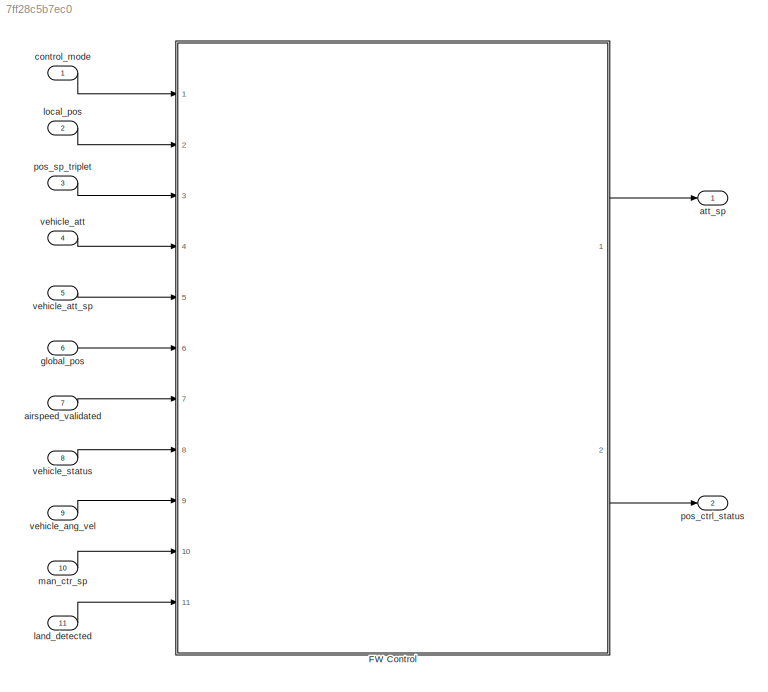
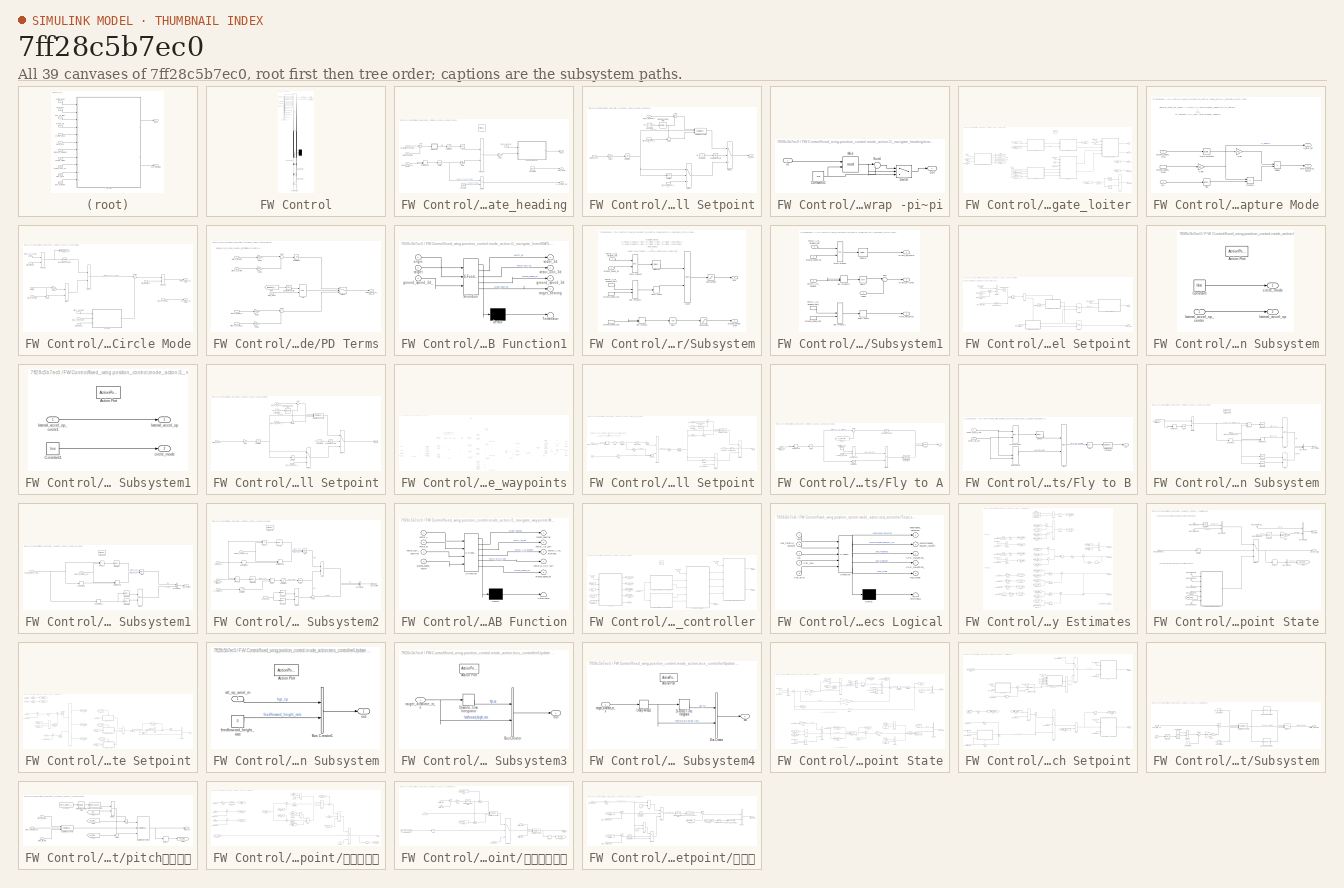
[diagram: thumbnail index - all 39 canvases of the model, root first then tree order]
MODEL slx_7ff28c5b7ec0
KIND model
CONFIG AbsTol = auto
CONFIG EnableMultiTasking = off
CONFIG FixedStep = 0.02
CONFIG MaxStep = auto
CONFIG MinStep = auto
CONFIG RelTol = 1e-3
CONFIG SampleTimeConstraint = Unconstrained
CONFIG SolverName = FixedStepAuto
CONFIG StartTime = 0.0
CONFIG StopTime = 5
BLOCK [SubSystem] FW Control
  ErrorFcn = Stateflow.Translate.translate
  PermitHierarchicalResolution = ExplicitOnly
  Ports = [11, 2]
  RequestExecContextInheritance = off
  SFBlockType = Chart
  TreatAsAtomicUnit = on
BLOCK [Demux] FW Control/ Demux 
  Ports = [1, 4]
BLOCK [S-Function] FW Control/ SFunction 
  EnableBusSupport = on
  FunctionName = sf_sfun
  Parameters = ALTHOLD_EPV_RESET_THRESH,DT_DEFAULT,FW_AIRSPD_MAX,FW_AIRSPD_MIN,FW_AIRSPD_TRIM,FW_ARSP_MODE,FW_CLMBOUT_DIFF,FW_GND_SPD_MIN,FW_LND_AIRSPD_SC,FW_LND_ANG,FW_LND_EARLYCFG,FW_LND_FLALT,FW_LND_FL_PMIN,FW_LND_HHDIST,FW_LND_HVIRT,FW_LND_THRTC_SC,FW_LND_TLALT,FW_MAN_R_MAX,FW_POSCTL_INV_ST,FW_PSP_OFF,FW_P_LIM_MAX,FW_P_LIM_MIN,FW_THR_CRUISE,FW_THR_LND_MAX,FW_THR_MAX,FW_THR_MIN,FW_TKO_PITCH_MIN,FW_T_ALT_TC,FW...<+197ch>
  PortCounts = [29 20]
  Ports = [29, 20]
  SFcnIsStateOwnerBlock = off
  SFunctionDeploymentMode = off
  Tag = Stateflow S-Function 3
BLOCK [Inport] FW Control/airspeed_validated
  Port = 7
BLOCK [Inport] FW Control/control_mode
BLOCK [SubSystem] FW Control/fixed_wing.position_control.mode_action.l1_navigate_heading
  Ports = [4, 3, 0, 1]
  PreDeleteFcn = Stateflow.SLINSF.SimulinkMan.removePreDeleteFcn
  RequestExecContextInheritance = off
  UndoDeleteFcn = Stateflow.SLINSF.SimulinkMan.restorePreDeleteFcn
BLOCK [Constant] FW Control/fixed_wing.position_control.mode_action.l1_navigate_heading/Constant
  AttributesFormatString = %<Value>
  Value = sqrt(2) * pi / FW_L1_PERIOD
BLOCK [Constant] FW Control/fixed_wing.position_control.mode_action.l1_navigate_heading/Constant1
  Value = false
BLOCK [Product] FW Control/fixed_wing.position_control.mode_action.l1_navigate_heading/Divide
  Inputs = */
  Ports = [2, 1]
BLOCK [DotProduct] FW Control/fixed_wing.position_control.mode_action.l1_navigate_heading/Dot Product1
  OutDataTypeStr = Inherit: Inherit via internal rule
BLOCK [Gain] FW Control/fixed_wing.position_control.mode_action.l1_navigate_heading/Gain
  AttributesFormatString = %<Gain>
  Gain = sqrt(2) * pi / FW_L1_PERIOD
BLOCK [Gain] FW Control/fixed_wing.position_control.mode_action.l1_navigate_heading/Gain1
  Gain = 2.0
BLOCK [Product] FW Control/fixed_wing.position_control.mode_action.l1_navigate_heading/Product
  Ports = [2, 1]
BLOCK [Saturate] FW Control/fixed_wing.position_control.mode_action.l1_navigate_heading/Saturation1
  AttributesFormatString = [%<LowerLimit>,%<UpperLimit>]
  LowerLimit = single(-pi/2)
  UpperLimit = single(pi/2)
BLOCK [Trigonometry] FW Control/fixed_wing.position_control.mode_action.l1_navigate_heading/Sin
  Ports = [1, 1]
BLOCK [Sqrt] FW Control/fixed_wing.position_control.mode_action.l1_navigate_heading/Sqrt1
BLOCK [Sum] FW Control/fixed_wing.position_control.mode_action.l1_navigate_heading/Sum
  Inputs = |+-
  Ports = [2, 1]
BLOCK [SubSystem] FW Control/fixed_wing.position_control.mode_action.l1_navigate_heading/Update Roll Setpoint
  Ports = [2, 1]
  RequestExecContextInheritance = off
BLOCK [Reference] FW Control/fixed_wing.position_control.mode_action.l1_navigate_heading/Update Roll Setpoint/Compare To Zero  REF=simulink/Logic and Bit
Operations/Compare
To Zero
  Ports = [1, 1]
  SourceBlock = simulink/Logic and Bit\nOperations/Compare\nTo Zero
  SourceProductBaseCode = SL
  SourceType = Compare To Zero
BLOCK [Constant] FW Control/fixed_wing.position_control.mode_action.l1_navigate_heading/Update Roll Setpoint/Constant2
  AttributesFormatString = %<Value>
  Value = FW_L1_R_SLEW_MAX
BLOCK [Constant] FW Control/fixed_wing.position_control.mode_action.l1_navigate_heading/Update Roll Setpoint/Constant3
  AttributesFormatString = %<Value>
  Value = FW_L1_R_SLEW_MAX
BLOCK [Gain] FW Control/fixed_wing.position_control.mode_action.l1_navigate_heading/Update Roll Setpoint/Gain2
  AttributesFormatString = %<Gain>
  Gain = 1.0 / GRAVITY
BLOCK [RelationalOperator] FW Control/fixed_wing.position_control.mode_action.l1_navigate_heading/Update Roll Setpoint/IsFinite1
  InputSameDT = off
  Operator = isFinite
  OutDataTypeStr = boolean
  Ports = [1, 1]
  RndMeth = Simplest
BLOCK [Saturate] FW Control/fixed_wing.position_control.mode_action.l1_navigate_heading/Update Roll Setpoint/Saturation
  AttributesFormatString = [%<LowerLimit>,%<UpperLimit>]
  LowerLimit = -FW_R_LIM
  UpperLimit = FW_R_LIM
BLOCK [Reference] FW Control/fixed_wing.position_control.mode_action.l1_navigate_heading/Update Roll Setpoint/Saturation Dynamic  REF=simulink/Discontinuities/Saturation
Dynamic
  Ports = [3, 1]
  SourceBlock = simulink/Discontinuities/Saturation\nDynamic
  SourceProductBaseCode = SL
  SourceType = Saturation Dynamic
BLOCK [Sum] FW Control/fixed_wing.position_control.mode_action.l1_navigate_heading/Update Roll Setpoint/Sum1
  Inputs = |++
  Ports = [2, 1]
BLOCK [Sum] FW Control/fixed_wing.position_control.mode_action.l1_navigate_heading/Update Roll Setpoint/Sum2
  Inputs = -+|
  Ports = [2, 1]
BLOCK [Switch] FW Control/fixed_wing.position_control.mode_action.l1_navigate_heading/Update Roll Setpoint/Switch1
  Criteria = u2 > Threshold
  InputSameDT = off
  SaturateOnIntegerOverflow = off
BLOCK [Switch] FW Control/fixed_wing.position_control.mode_action.l1_navigate_heading/Update Roll Setpoint/Switch2
  Criteria = u2 > Threshold
  InputSameDT = off
  SaturateOnIntegerOverflow = off
BLOCK [SampleTimeMath] FW Control/fixed_wing.position_control.mode_action.l1_navigate_heading/Update Roll Setpoint/Weighted Sample Time
  TsampMathOp = *
BLOCK [Inport] FW Control/fixed_wing.position_control.mode_action.l1_navigate_heading/Update Roll Setpoint/att_sp_roll_body1
  PortDimensions = 1
BLOCK [InportShadow] FW Control/fixed_wing.position_control.mode_action.l1_navigate_heading/Update Roll Setpoint/att_sp_roll_body1_1
  PortDimensions = 1
BLOCK [InportShadow] FW Control/fixed_wing.position_control.mode_action.l1_navigate_heading/Update Roll Setpoint/att_sp_roll_body1_2
  PortDimensions = 1
BLOCK [Inport] FW Control/fixed_wing.position_control.mode_action.l1_navigate_heading/Update Roll Setpoint/lateral_accel
  Port = 2
BLOCK [Outport] FW Control/fixed_wing.position_control.mode_action.l1_navigate_heading/Update Roll Setpoint/roll_new
BLOCK [Inport] FW Control/fixed_wing.position_control.mode_action.l1_navigate_heading/att_sp_roll_body
  OutDataTypeStr = single
  Port = 4
  PortDimensions = 1
  SignalType = real
  VarSizeSig = No
BLOCK [Outport] FW Control/fixed_wing.position_control.mode_action.l1_navigate_heading/circle_mode
  Port = 2
BLOCK [Inport] FW Control/fixed_wing.position_control.mode_action.l1_navigate_heading/current_heading
  OutDataTypeStr = single
  Port = 2
  PortDimensions = 1
  SignalType = real
  VarSizeSig = No
BLOCK [TriggerPort] FW Control/fixed_wing.position_control.mode_action.l1_navigate_heading/f
  CopyFcn = Stateflow.SLINSF.SimulinkMan.removeBlockPreDeleteFcn
  Ports = []
  PreDeleteFcn = Stateflow.SLINSF.SimulinkMan.unsafePredeleteFcn
  StatesWhenEnabling = held
  TriggerType = function-call
  VariantControl = (inherit)
BLOCK [Inport] FW Control/fixed_wing.position_control.mode_action.l1_navigate_heading/ground_speed_vector
  OutDataTypeStr = single
  Port = 3
  PortDimensions = [1 2]
  SignalType = real
  VarSizeSig = No
BLOCK [Outport] FW Control/fixed_wing.position_control.mode_action.l1_navigate_heading/l1_heading_dis
  Port = 3
BLOCK [Inport] FW Control/fixed_wing.position_control.mode_action.l1_navigate_heading/navigation_heading
  OutDataTypeStr = single
  PortDimensions = 1
  SignalType = real
  VarSizeSig = No
BLOCK [Outport] FW Control/fixed_wing.position_control.mode_action.l1_navigate_heading/roll_sp
BLOCK [SubSystem] FW Control/fixed_wing.position_control.mode_action.l1_navigate_heading/wrap -pi~pi
  Ports = [1, 1]
  RequestExecContextInheritance = off
BLOCK [Constant] FW Control/fixed_wing.position_control.mode_action.l1_navigate_heading/wrap -pi~pi/Constant1
  OutDataTypeStr = single
  Value = 2*pi
BLOCK [Math] FW Control/fixed_wing.position_control.mode_action.l1_navigate_heading/wrap -pi~pi/Mod
  Operator = mod
  Ports = [2, 1]
BLOCK [Sum] FW Control/fixed_wing.position_control.mode_action.l1_navigate_heading/wrap -pi~pi/Sum1
  Inputs = |+-
  Ports = [2, 1]
BLOCK [Switch] FW Control/fixed_wing.position_control.mode_action.l1_navigate_heading/wrap -pi~pi/Switch
  Criteria = u2 > Threshold
  InputSameDT = off
  SaturateOnIntegerOverflow = off
  Threshold = pi
BLOCK [Inport] FW Control/fixed_wing.position_control.mode_action.l1_navigate_heading/wrap -pi~pi/in
BLOCK [Outport] FW Control/fixed_wing.position_control.mode_action.l1_navigate_heading/wrap -pi~pi/out
BLOCK [SubSystem] FW Control/fixed_wing.position_control.mode_action.l1_navigate_loiter
  Ports = [7, 5, 0, 1]
  PreDeleteFcn = Stateflow.SLINSF.SimulinkMan.removePreDeleteFcn
  RequestExecContextInheritance = off
  UndoDeleteFcn = Stateflow.SLINSF.SimulinkMan.restorePreDeleteFcn
BLOCK [Trigonometry] FW Control/fixed_wing.position_control.mode_action.l1_navigate_loiter/Atan
  Operator = atan2
  Ports = [2, 1]
BLOCK [SubSystem] FW Control/fixed_wing.position_control.mode_action.l1_navigate_loiter/Capture Mode
  Ports = [2, 2]
  RequestExecContextInheritance = off
BLOCK [Product] FW Control/fixed_wing.position_control.mode_action.l1_navigate_loiter/Capture Mode/Divide1
  Inputs = */
  Ports = [2, 1]
BLOCK [Gain] FW Control/fixed_wing.position_control.mode_action.l1_navigate_loiter/Capture Mode/Gain
  AttributesFormatString = %<Gain>
  Gain = 4 * FW_L1_DAMPING^2
BLOCK [Gain] FW Control/fixed_wing.position_control.mode_action.l1_navigate_loiter/Capture Mode/Gain1
  AttributesFormatString = %<Gain>
  Gain = 1 / pi * FW_L1_DAMPING * FW_L1_PERIOD
BLOCK [Math] FW Control/fixed_wing.position_control.mode_action.l1_navigate_loiter/Capture Mode/Math Function2
  Operator = magnitude^2
  Ports = [1, 1]
BLOCK [Product] FW Control/fixed_wing.position_control.mode_action.l1_navigate_loiter/Capture Mode/Product1
  Ports = [2, 1]
BLOCK [Trigonometry] FW Control/fixed_wing.position_control.mode_action.l1_navigate_loiter/Capture Mode/Sin1
  Ports = [1, 1]
BLOCK [Inport] FW Control/fixed_wing.position_control.mode_action.l1_navigate_loiter/Capture Mode/eta
BLOCK [Inport] FW Control/fixed_wing.position_control.mode_action.l1_navigate_loiter/Capture Mode/ground_speed_mod
  Port = 2
BLOCK [InportShadow] FW Control/fixed_wing.position_control.mode_action.l1_navigate_loiter/Capture Mode/ground_speed_mod1
  Port = 2
BLOCK [Outport] FW Control/fixed_wing.position_control.mode_action.l1_navigate_loiter/Capture Mode/l1_loiter_dis
BLOCK [Outport] FW Control/fixed_wing.position_control.mode_action.l1_navigate_loiter/Capture Mode/lateral_accel_sp_center
  Port = 2
BLOCK [SubSystem] FW Control/fixed_wing.position_control.mode_action.l1_navigate_loiter/Circle Mode
  Ports = [6, 2]
  RequestExecContextInheritance = off
BLOCK [Product] FW Control/fixed_wing.position_control.mode_action.l1_navigate_loiter/Circle Mode/Divide2
  Inputs = */
  Ports = [2, 1]
BLOCK [Gain] FW Control/fixed_wing.position_control.mode_action.l1_navigate_loiter/Circle Mode/Gain4
  Gain = 0.5
BLOCK [Math] FW Control/fixed_wing.position_control.mode_action.l1_navigate_loiter/Circle Mode/Magnitude Squared
  Operator = magnitude^2
  Ports = [1, 1]
BLOCK [MinMax] FW Control/fixed_wing.position_control.mode_action.l1_navigate_loiter/Circle Mode/Max
  Function = max
  Inputs = 2
  Ports = [2, 1]
BLOCK [SubSystem] FW Control/fixed_wing.position_control.mode_action.l1_navigate_loiter/Circle Mode/PD Terms
  Ports = [3, 1]
  RequestExecContextInheritance = off
BLOCK [Logic] FW Control/fixed_wing.position_control.mode_action.l1_navigate_loiter/Circle Mode/PD Terms/AND
  AllPortsSameDT = off
  IconShape = distinctive
  OutDataTypeStr = boolean
  Ports = [2, 1]
BLOCK [Reference] FW Control/fixed_wing.position_control.mode_action.l1_navigate_loiter/Circle Mode/PD Terms/Compare To Zero  REF=simulink/Logic and Bit
Operations/Compare
To Zero
  Ports = [1, 1]
  SourceBlock = simulink/Logic and Bit\nOperations/Compare\nTo Zero
  SourceProductBaseCode = SL
  SourceType = Compare To Zero
BLOCK [From] FW Control/fixed_wing.position_control.mode_action.l1_navigate_loiter/Circle Mode/PD Terms/From
  GotoTag = tangent_vel
  TagVisibility = global
BLOCK [Gain] FW Control/fixed_wing.position_control.mode_action.l1_navigate_loiter/Circle Mode/PD Terms/Gain1
  AttributesFormatString = %<Gain>
  Gain = (2 * pi / FW_L1_PERIOD)^2
BLOCK [Gain] FW Control/fixed_wing.position_control.mode_action.l1_navigate_loiter/Circle Mode/PD Terms/Gain2
  AttributesFormatString = %<Gain>
  Gain = (2 * pi / FW_L1_PERIOD)^2
BLOCK [Gain] FW Control/fixed_wing.position_control.mode_action.l1_navigate_loiter/Circle Mode/PD Terms/Gain3
  AttributesFormatString = %<Gain>
  Gain = 2 * FW_L1_DAMPING * (2 * pi / FW_L1_PERIOD)
BLOCK [Gain] FW Control/fixed_wing.position_control.mode_action.l1_navigate_loiter/Circle Mode/PD Terms/Gain5
  AttributesFormatString = %<Gain>
  Gain = 2 * FW_L1_DAMPING * (2 * pi / FW_L1_PERIOD)
BLOCK [Saturate] FW Control/fixed_wing.position_control.mode_action.l1_navigate_loiter/Circle Mode/PD Terms/Saturation2
  AttributesFormatString = [%<LowerLimit>,%<UpperLimit>]
  LowerLimit = -inf
  UpperLimit = 0
BLOCK [Sum] FW Control/fixed_wing.position_control.mode_action.l1_navigate_loiter/Circle Mode/PD Terms/Sum1
  Inputs = |++
  Ports = [2, 1]
BLOCK [Sum] FW Control/fixed_wing.position_control.mode_action.l1_navigate_loiter/Circle Mode/PD Terms/Sum4
  Inputs = |++
  Ports = [2, 1]
BLOCK [Switch] FW Control/fixed_wing.position_control.mode_action.l1_navigate_loiter/Circle Mode/PD Terms/Switch2
  Criteria = u2 > Threshold
  InputSameDT = off
  SaturateOnIntegerOverflow = off
BLOCK [Inport] FW Control/fixed_wing.position_control.mode_action.l1_navigate_loiter/Circle Mode/PD Terms/circle_mode
  Port = 3
BLOCK [Outport] FW Control/fixed_wing.position_control.mode_action.l1_navigate_loiter/Circle Mode/PD Terms/lateral_accel_sp_circle_pd
BLOCK [Inport] FW Control/fixed_wing.position_control.mode_action.l1_navigate_loiter/Circle Mode/PD Terms/xtrack_err_circle
BLOCK [InportShadow] FW Control/fixed_wing.position_control.mode_action.l1_navigate_loiter/Circle Mode/PD Terms/xtrack_err_circle_1
BLOCK [Inport] FW Control/fixed_wing.position_control.mode_action.l1_navigate_loiter/Circle Mode/PD Terms/xtrack_vel_circle
  Port = 2
BLOCK [InportShadow] FW Control/fixed_wing.position_control.mode_action.l1_navigate_loiter/Circle Mode/PD Terms/xtrack_vel_circle_1
  Port = 2
BLOCK [Product] FW Control/fixed_wing.position_control.mode_action.l1_navigate_loiter/Circle Mode/Product2
  Ports = [2, 1]
BLOCK [Product] FW Control/fixed_wing.position_control.mode_action.l1_navigate_loiter/Circle Mode/Product3
  Ports = [2, 1]
BLOCK [Sum] FW Control/fixed_wing.position_control.mode_action.l1_navigate_loiter/Circle Mode/Sum2
  Inputs = ++|
  Ports = [2, 1]
BLOCK [Sum] FW Control/fixed_wing.position_control.mode_action.l1_navigate_loiter/Circle Mode/Sum3
  Inputs = |++
  Ports = [2, 1]
BLOCK [Inport] FW Control/fixed_wing.position_control.mode_action.l1_navigate_loiter/Circle Mode/circle_mode
  Port = 3
BLOCK [Outport] FW Control/fixed_wing.position_control.mode_action.l1_navigate_loiter/Circle Mode/lateral_accel_sp_circle
BLOCK [Inport] FW Control/fixed_wing.position_control.mode_action.l1_navigate_loiter/Circle Mode/loiter_direction
BLOCK [InportShadow] FW Control/fixed_wing.position_control.mode_action.l1_navigate_loiter/Circle Mode/loiter_direction1
BLOCK [Inport] FW Control/fixed_wing.position_control.mode_action.l1_navigate_loiter/Circle Mode/ltrack_vel_center
  Port = 6
BLOCK [Outport] FW Control/fixed_wing.position_control.mode_action.l1_navigate_loiter/Circle Mode/out_xtrack_err_circle
  Port = 2
BLOCK [Inport] FW Control/fixed_wing.position_control.mode_action.l1_navigate_loiter/Circle Mode/radius
  Port = 2
BLOCK [Inport] FW Control/fixed_wing.position_control.mode_action.l1_navigate_loiter/Circle Mode/xtrack_err_circle
  Port = 5
BLOCK [InportShadow] FW Control/fixed_wing.position_control.mode_action.l1_navigate_loiter/Circle Mode/xtrack_err_circle1
  Port = 5
BLOCK [InportShadow] FW Control/fixed_wing.position_control.mode_action.l1_navigate_loiter/Circle Mode/xtrack_err_circle2
  Port = 5
BLOCK [Inport] FW Control/fixed_wing.position_control.mode_action.l1_navigate_loiter/Circle Mode/xtrack_vel_center
  Port = 4
BLOCK [Goto] FW Control/fixed_wing.position_control.mode_action.l1_navigate_loiter/Circle Mode/切向速度
  GotoTag = tangent_vel
  TagVisibility = global
BLOCK [From] FW Control/fixed_wing.position_control.mode_action.l1_navigate_loiter/From
  GotoTag = vector_A_to_airplane_unit
BLOCK [From] FW Control/fixed_wing.position_control.mode_action.l1_navigate_loiter/From1
  GotoTag = ground_speed_3d
BLOCK [From] FW Control/fixed_wing.position_control.mode_action.l1_navigate_loiter/From2
  GotoTag = vector_A_to_airplane_unit
BLOCK [From] FW Control/fixed_wing.position_control.mode_action.l1_navigate_loiter/From3
  GotoTag = ground_speed_3d
BLOCK [From] FW Control/fixed_wing.position_control.mode_action.l1_navigate_loiter/From4
  GotoTag = vector_A_to_airplane
BLOCK [From] FW Control/fixed_wing.position_control.mode_action.l1_navigate_loiter/From5
  GotoTag = vector_A_to_airplane_unit
BLOCK [From] FW Control/fixed_wing.position_control.mode_action.l1_navigate_loiter/From6
  GotoTag = target_bearing
BLOCK [From] FW Control/fixed_wing.position_control.mode_action.l1_navigate_loiter/From7
  GotoTag = l1_loiter_dis
BLOCK [Goto] FW Control/fixed_wing.position_control.mode_action.l1_navigate_loiter/Goto
  GotoTag = vector_A_to_airplane_unit
BLOCK [Goto] FW Control/fixed_wing.position_control.mode_action.l1_navigate_loiter/Goto1
  GotoTag = ground_speed_3d
BLOCK [Goto] FW Control/fixed_wing.position_control.mode_action.l1_navigate_loiter/Goto2
  GotoTag = vector_A_to_airplane
BLOCK [Goto] FW Control/fixed_wing.position_control.mode_action.l1_navigate_loiter/Goto3
  GotoTag = target_bearing
BLOCK [Goto] FW Control/fixed_wing.position_control.mode_action.l1_navigate_loiter/Goto4
  GotoTag = l1_loiter_dis
BLOCK [SubSystem] FW Control/fixed_wing.position_control.mode_action.l1_navigate_loiter/MATLAB Function1
  ErrorFcn = Stateflow.Translate.translate
  PermitHierarchicalResolution = ExplicitOnly
  Ports = [3, 4]
  RequestExecContextInheritance = off
  SFBlockType = MATLAB Function
  TreatAsAtomicUnit = on
BLOCK [Demux] FW Control/fixed_wing.position_control.mode_action.l1_navigate_loiter/MATLAB Function1/ Demux 
  Outputs = 1
  Ports = [1, 1]
BLOCK [S-Function] FW Control/fixed_wing.position_control.mode_action.l1_navigate_loiter/MATLAB Function1/ SFunction 
  EnableBusSupport = on
  FunctionName = sf_sfun
  PortCounts = [3 5]
  Ports = [3, 5]
  SFcnIsStateOwnerBlock = off
  SFunctionDeploymentMode = off
  Tag = Stateflow S-Function 2
BLOCK [Terminator] FW Control/fixed_wing.position_control.mode_action.l1_navigate_loiter/MATLAB Function1/ Terminator 
BLOCK [Inport] FW Control/fixed_wing.position_control.mode_action.l1_navigate_loiter/MATLAB Function1/ground_speed_2d_
  Port = 3
BLOCK [Outport] FW Control/fixed_wing.position_control.mode_action.l1_navigate_loiter/MATLAB Function1/ground_speed_3d
  Port = 3
BLOCK [Inport] FW Control/fixed_wing.position_control.mode_action.l1_navigate_loiter/MATLAB Function1/origin
BLOCK [Inport] FW Control/fixed_wing.position_control.mode_action.l1_navigate_loiter/MATLAB Function1/target
  Port = 2
BLOCK [Outport] FW Control/fixed_wing.position_control.mode_action.l1_navigate_loiter/MATLAB Function1/target_bearing
  Port = 4
BLOCK [Outport] FW Control/fixed_wing.position_control.mode_action.l1_navigate_loiter/MATLAB Function1/vector_3d
BLOCK [Outport] FW Control/fixed_wing.position_control.mode_action.l1_navigate_loiter/MATLAB Function1/vector_unit_3d
  Port = 2
BLOCK [Selector] FW Control/fixed_wing.position_control.mode_action.l1_navigate_loiter/Selector
  IndexOptions = Index vector (dialog)
  Indices = [2]
  InputPortWidth = 3
  OutputSizes = 1
  Ports = [1, 1]
BLOCK [Selector] FW Control/fixed_wing.position_control.mode_action.l1_navigate_loiter/Selector1
  IndexOptions = Index vector (dialog)
  Indices = [1]
  InputPortWidth = 3
  OutputSizes = 1
  Ports = [1, 1]
BLOCK [SubSystem] FW Control/fixed_wing.position_control.mode_action.l1_navigate_loiter/Subsystem
  Ports = [2, 2]
  RequestExecContextInheritance = off
BLOCK [Trigonometry] FW Control/fixed_wing.position_control.mode_action.l1_navigate_loiter/Subsystem/Atan2
  Operator = atan2
  Ports = [2, 1]
BLOCK [Reference] FW Control/fixed_wing.position_control.mode_action.l1_navigate_loiter/Subsystem/Cross Product  REF=vrlib/Utilities/Cross Product
  Ports = [2, 1]
  SourceBlock = vrlib/Utilities/Cross Product
  SourceProductBaseCode = SL
  SourceType = Cross Product
BLOCK [DotProduct] FW Control/fixed_wing.position_control.mode_action.l1_navigate_loiter/Subsystem/Dot Product
  OutDataTypeStr = Inherit: Inherit via internal rule
BLOCK [DotProduct] FW Control/fixed_wing.position_control.mode_action.l1_navigate_loiter/Subsystem/Dot Product1
  OutDataTypeStr = Inherit: Inherit via internal rule
BLOCK [Saturate] FW Control/fixed_wing.position_control.mode_action.l1_navigate_loiter/Subsystem/Saturation
  AttributesFormatString = [%<LowerLimit>,%<UpperLimit>]
  LowerLimit = single(0.1)
  UpperLimit = single(inf)
BLOCK [Saturate] FW Control/fixed_wing.position_control.mode_action.l1_navigate_loiter/Subsystem/Saturation2
  AttributesFormatString = [%<LowerLimit>,%<UpperLimit>]
  LowerLimit = single(-pi/2)
  UpperLimit = single(pi/2)
BLOCK [Selector] FW Control/fixed_wing.position_control.mode_action.l1_navigate_loiter/Subsystem/Selector
  IndexOptions = Index vector (dialog)
  Indices = [3]
  InputPortWidth = 3
  OutputSizes = 1
  Ports = [1, 1]
BLOCK [Sqrt] FW Control/fixed_wing.position_control.mode_action.l1_navigate_loiter/Subsystem/Sqrt
BLOCK [UnaryMinus] FW Control/fixed_wing.position_control.mode_action.l1_navigate_loiter/Subsystem/Unary Minus
  NameLocation = right
BLOCK [Outport] FW Control/fixed_wing.position_control.mode_action.l1_navigate_loiter/Subsystem/eta
BLOCK [Inport] FW Control/fixed_wing.position_control.mode_action.l1_navigate_loiter/Subsystem/ground_speed_3d
  Port = 2
BLOCK [InportShadow] FW Control/fixed_wing.position_control.mode_action.l1_navigate_loiter/Subsystem/ground_speed_3d1
  Port = 2
BLOCK [InportShadow] FW Control/fixed_wing.position_control.mode_action.l1_navigate_loiter/Subsystem/ground_speed_3d2
  Port = 2
BLOCK [Outport] FW Control/fixed_wing.position_control.mode_action.l1_navigate_loiter/Subsystem/ground_speed_mod
  Port = 2
BLOCK [Inport] FW Control/fixed_wing.position_control.mode_action.l1_navigate_loiter/Subsystem/vector_A_to_airplane_unit
BLOCK [InportShadow] FW Control/fixed_wing.position_control.mode_action.l1_navigate_loiter/Subsystem/vector_A_to_airplane_unit1
BLOCK [SubSystem] FW Control/fixed_wing.position_control.mode_action.l1_navigate_loiter/Subsystem1
  Ports = [4, 3]
  RequestExecContextInheritance = off
BLOCK [Reference] FW Control/fixed_wing.position_control.mode_action.l1_navigate_loiter/Subsystem1/Cross Product  REF=vrlib/Utilities/Cross Product
  Ports = [2, 1]
  SourceBlock = vrlib/Utilities/Cross Product
  SourceProductBaseCode = SL
  SourceType = Cross Product
BLOCK [DotProduct] FW Control/fixed_wing.position_control.mode_action.l1_navigate_loiter/Subsystem1/Dot Product1
  OutDataTypeStr = Inherit: Inherit via internal rule
BLOCK [DotProduct] FW Control/fixed_wing.position_control.mode_action.l1_navigate_loiter/Subsystem1/Dot Product2
  OutDataTypeStr = Inherit: Inherit via internal rule
BLOCK [Selector] FW Control/fixed_wing.position_control.mode_action.l1_navigate_loiter/Subsystem1/Selector
  IndexOptions = Index vector (dialog)
  Indices = [3]
  InputPortWidth = 3
  OutputSizes = 1
  Ports = [1, 1]
BLOCK [Sqrt] FW Control/fixed_wing.position_control.mode_action.l1_navigate_loiter/Subsystem1/Sqrt1
BLOCK [Sum] FW Control/fixed_wing.position_control.mode_action.l1_navigate_loiter/Subsystem1/Sum
  Inputs = |+-
  Ports = [2, 1]
BLOCK [UnaryMinus] FW Control/fixed_wing.position_control.mode_action.l1_navigate_loiter/Subsystem1/Unary Minus
  NameLocation = right
BLOCK [Inport] FW Control/fixed_wing.position_control.mode_action.l1_navigate_loiter/Subsystem1/ground_speed_3d
  Port = 4
BLOCK [InportShadow] FW Control/fixed_wing.position_control.mode_action.l1_navigate_loiter/Subsystem1/ground_speed_3d2
  Port = 4
BLOCK [Outport] FW Control/fixed_wing.position_control.mode_action.l1_navigate_loiter/Subsystem1/ltrack_vel_center
  Port = 3
BLOCK [Inport] FW Control/fixed_wing.position_control.mode_action.l1_navigate_loiter/Subsystem1/radius
BLOCK [Inport] FW Control/fixed_wing.position_control.mode_action.l1_navigate_loiter/Subsystem1/vector_A_to_airplane
  Port = 2
BLOCK [Inport] FW Control/fixed_wing.position_control.mode_action.l1_navigate_loiter/Subsystem1/vector_A_to_airplane_unit
  Port = 3
BLOCK [InportShadow] FW Control/fixed_wing.position_control.mode_action.l1_navigate_loiter/Subsystem1/vector_A_to_airplane_unit2
  Port = 3
BLOCK [Outport] FW Control/fixed_wing.position_control.mode_action.l1_navigate_loiter/Subsystem1/xtrack_err_circle
  Port = 2
BLOCK [Outport] FW Control/fixed_wing.position_control.mode_action.l1_navigate_loiter/Subsystem1/xtrack_vel_center
BLOCK [SubSystem] FW Control/fixed_wing.position_control.mode_action.l1_navigate_loiter/Switch Lateral Accel Setpoint
  Ports = [5, 2]
  RequestExecContextInheritance = off
BLOCK [Logic] FW Control/fixed_wing.position_control.mode_action.l1_navigate_loiter/Switch Lateral Accel Setpoint/AND1
  AllPortsSameDT = off
  IconShape = distinctive
  OutDataTypeStr = boolean
  Ports = [2, 1]
BLOCK [Reference] FW Control/fixed_wing.position_control.mode_action.l1_navigate_loiter/Switch Lateral Accel Setpoint/Compare To Zero1  REF=simulink/Logic and Bit
Operations/Compare
To Zero
  Ports = [1, 1]
  SourceBlock = simulink/Logic and Bit\nOperations/Compare\nTo Zero
  SourceProductBaseCode = SL
  SourceType = Compare To Zero
BLOCK [Reference] FW Control/fixed_wing.position_control.mode_action.l1_navigate_loiter/Switch Lateral Accel Setpoint/Compare To Zero3  REF=simulink/Logic and Bit
Operations/Compare
To Zero
  Ports = [1, 1]
  SourceBlock = simulink/Logic and Bit\nOperations/Compare\nTo Zero
  SourceProductBaseCode = SL
  SourceType = Compare To Zero
BLOCK [SubSystem] FW Control/fixed_wing.position_control.mode_action.l1_navigate_loiter/Switch Lateral Accel Setpoint/If Action Subsystem
  Ports = [1, 2, 0, 0, 0, 0, 0, 1]
  RequestExecContextInheritance = off
  TreatAsAtomicUnit = on
BLOCK [ActionPort] FW Control/fixed_wing.position_control.mode_action.l1_navigate_loiter/Switch Lateral Accel Setpoint/If Action Subsystem/Action Port
  ActionPortLabel = if(u1)
BLOCK [Constant] FW Control/fixed_wing.position_control.mode_action.l1_navigate_loiter/Switch Lateral Accel Setpoint/If Action Subsystem/Constant
  Value = false
BLOCK [Outport] FW Control/fixed_wing.position_control.mode_action.l1_navigate_loiter/Switch Lateral Accel Setpoint/If Action Subsystem/circle_mode
BLOCK [Outport] FW Control/fixed_wing.position_control.mode_action.l1_navigate_loiter/Switch Lateral Accel Setpoint/If Action Subsystem/lateral_accel_sp
  Port = 2
BLOCK [Inport] FW Control/fixed_wing.position_control.mode_action.l1_navigate_loiter/Switch Lateral Accel Setpoint/If Action Subsystem/lateral_accel_sp_center
BLOCK [SubSystem] FW Control/fixed_wing.position_control.mode_action.l1_navigate_loiter/Switch Lateral Accel Setpoint/If Action Subsystem1
  Ports = [1, 2, 0, 0, 0, 0, 0, 1]
  RequestExecContextInheritance = off
  TreatAsAtomicUnit = on
BLOCK [ActionPort] FW Control/fixed_wing.position_control.mode_action.l1_navigate_loiter/Switch Lateral Accel Setpoint/If Action Subsystem1/Action Port
  ActionPortLabel = else
BLOCK [Constant] FW Control/fixed_wing.position_control.mode_action.l1_navigate_loiter/Switch Lateral Accel Setpoint/If Action Subsystem1/Constant1
  Value = true
BLOCK [Outport] FW Control/fixed_wing.position_control.mode_action.l1_navigate_loiter/Switch Lateral Accel Setpoint/If Action Subsystem1/circle_mode
  Port = 2
BLOCK [Outport] FW Control/fixed_wing.position_control.mode_action.l1_navigate_loiter/Switch Lateral Accel Setpoint/If Action Subsystem1/lateral_accel_sp
BLOCK [Inport] FW Control/fixed_wing.position_control.mode_action.l1_navigate_loiter/Switch Lateral Accel Setpoint/If Action Subsystem1/lateral_accel_sp_circle1
BLOCK [If] FW Control/fixed_wing.position_control.mode_action.l1_navigate_loiter/Switch Lateral Accel Setpoint/If1
  IfExpression = u1
  Ports = [1, 2]
BLOCK [Merge] FW Control/fixed_wing.position_control.mode_action.l1_navigate_loiter/Switch Lateral Accel Setpoint/Merge
  Ports = [2, 1]
BLOCK [Merge] FW Control/fixed_wing.position_control.mode_action.l1_navigate_loiter/Switch Lateral Accel Setpoint/Merge1
  Ports = [2, 1]
BLOCK [Product] FW Control/fixed_wing.position_control.mode_action.l1_navigate_loiter/Switch Lateral Accel Setpoint/Product
  Ports = [2, 1]
BLOCK [Sum] FW Control/fixed_wing.position_control.mode_action.l1_navigate_loiter/Switch Lateral Accel Setpoint/Sum5
  Inputs = |+-
  Ports = [2, 1]
BLOCK [SubSystem] FW Control/fixed_wing.position_control.mode_action.l1_navigate_loiter/Switch Lateral Accel Setpoint/Update Roll Setpoint
  Ports = [2, 1]
  RequestExecContextInheritance = off
BLOCK [Reference] FW Control/fixed_wing.position_control.mode_action.l1_navigate_loiter/Switch Lateral Accel Setpoint/Update Roll Setpoint/Compare To Zero  REF=simulink/Logic and Bit
Operations/Compare
To Zero
  Ports = [1, 1]
  SourceBlock = simulink/Logic and Bit\nOperations/Compare\nTo Zero
  SourceProductBaseCode = SL
  SourceType = Compare To Zero
BLOCK [Constant] FW Control/fixed_wing.position_control.mode_action.l1_navigate_loiter/Switch Lateral Accel Setpoint/Update Roll Setpoint/Constant1
  AttributesFormatString = %<Value>
  Value = FW_L1_R_SLEW_MAX
BLOCK [Constant] FW Control/fixed_wing.position_control.mode_action.l1_navigate_loiter/Switch Lateral Accel Setpoint/Update Roll Setpoint/Constant2
  AttributesFormatString = %<Value>
  Value = FW_L1_R_SLEW_MAX
BLOCK [Gain] FW Control/fixed_wing.position_control.mode_action.l1_navigate_loiter/Switch Lateral Accel Setpoint/Update Roll Setpoint/Gain
  AttributesFormatString = %<Gain>
  Gain = 1.0 / GRAVITY
BLOCK [RelationalOperator] FW Control/fixed_wing.position_control.mode_action.l1_navigate_loiter/Switch Lateral Accel Setpoint/Update Roll Setpoint/IsFinite1
  InputSameDT = off
  Operator = isFinite
  OutDataTypeStr = boolean
  Ports = [1, 1]
  RndMeth = Simplest
BLOCK [Saturate] FW Control/fixed_wing.position_control.mode_action.l1_navigate_loiter/Switch Lateral Accel Setpoint/Update Roll Setpoint/Saturation
  AttributesFormatString = [%<LowerLimit>,%<UpperLimit>]
  LowerLimit = -FW_R_LIM
  UpperLimit = FW_R_LIM
BLOCK [Reference] FW Control/fixed_wing.position_control.mode_action.l1_navigate_loiter/Switch Lateral Accel Setpoint/Update Roll Setpoint/Saturation Dynamic  REF=simulink/Discontinuities/Saturation
Dynamic
  Ports = [3, 1]
  SourceBlock = simulink/Discontinuities/Saturation\nDynamic
  SourceProductBaseCode = SL
  SourceType = Saturation Dynamic
BLOCK [Sum] FW Control/fixed_wing.position_control.mode_action.l1_navigate_loiter/Switch Lateral Accel Setpoint/Update Roll Setpoint/Sum
  Inputs = |++
  Ports = [2, 1]
BLOCK [Sum] FW Control/fixed_wing.position_control.mode_action.l1_navigate_loiter/Switch Lateral Accel Setpoint/Update Roll Setpoint/Sum1
  Inputs = -+|
  Ports = [2, 1]
BLOCK [Switch] FW Control/fixed_wing.position_control.mode_action.l1_navigate_loiter/Switch Lateral Accel Setpoint/Update Roll Setpoint/Switch1
  Criteria = u2 > Threshold
  InputSameDT = off
  SaturateOnIntegerOverflow = off
BLOCK [Switch] FW Control/fixed_wing.position_control.mode_action.l1_navigate_loiter/Switch Lateral Accel Setpoint/Update Roll Setpoint/Switch2
  Criteria = u2 > Threshold
  InputSameDT = off
  SaturateOnIntegerOverflow = off
BLOCK [SampleTimeMath] FW Control/fixed_wing.position_control.mode_action.l1_navigate_loiter/Switch Lateral Accel Setpoint/Update Roll Setpoint/Weighted Sample Time
  TsampMathOp = *
BLOCK [Inport] FW Control/fixed_wing.position_control.mode_action.l1_navigate_loiter/Switch Lateral Accel Setpoint/Update Roll Setpoint/att_sp_roll_body
  PortDimensions = 1
BLOCK [InportShadow] FW Control/fixed_wing.position_control.mode_action.l1_navigate_loiter/Switch Lateral Accel Setpoint/Update Roll Setpoint/att_sp_roll_body_1
  PortDimensions = 1
BLOCK [InportShadow] FW Control/fixed_wing.position_control.mode_action.l1_navigate_loiter/Switch Lateral Accel Setpoint/Update Roll Setpoint/att_sp_roll_body_2
  PortDimensions = 1
BLOCK [Inport] FW Control/fixed_wing.position_control.mode_action.l1_navigate_loiter/Switch Lateral Accel Setpoint/Update Roll Setpoint/lateral_accel
  Port = 2
BLOCK [Outport] FW Control/fixed_wing.position_control.mode_action.l1_navigate_loiter/Switch Lateral Accel Setpoint/Update Roll Setpoint/roll_sp
BLOCK [Inport] FW Control/fixed_wing.position_control.mode_action.l1_navigate_loiter/Switch Lateral Accel Setpoint/att_sp_roll_body
  Port = 2
  PortDimensions = 1
BLOCK [Outport] FW Control/fixed_wing.position_control.mode_action.l1_navigate_loiter/Switch Lateral Accel Setpoint/circle_mode
  Port = 2
BLOCK [Inport] FW Control/fixed_wing.position_control.mode_action.l1_navigate_loiter/Switch Lateral Accel Setpoint/lateral_accel_sp_center
  Port = 3
BLOCK [InportShadow] FW Control/fixed_wing.position_control.mode_action.l1_navigate_loiter/Switch Lateral Accel Setpoint/lateral_accel_sp_center1
  Port = 3
BLOCK [Inport] FW Control/fixed_wing.position_control.mode_action.l1_navigate_loiter/Switch Lateral Accel Setpoint/lateral_accel_sp_circle
  Port = 4
BLOCK [InportShadow] FW Control/fixed_wing.position_control.mode_action.l1_navigate_loiter/Switch Lateral Accel Setpoint/lateral_accel_sp_circle1
  Port = 4
BLOCK [Inport] FW Control/fixed_wing.position_control.mode_action.l1_navigate_loiter/Switch Lateral Accel Setpoint/loiter_direction
BLOCK [Outport] FW Control/fixed_wing.position_control.mode_action.l1_navigate_loiter/Switch Lateral Accel Setpoint/roll_sp
BLOCK [Inport] FW Control/fixed_wing.position_control.mode_action.l1_navigate_loiter/Switch Lateral Accel Setpoint/xtrack_err_circle4
  Port = 5
BLOCK [UnaryMinus] FW Control/fixed_wing.position_control.mode_action.l1_navigate_loiter/Unary Minus
BLOCK [Inport] FW Control/fixed_wing.position_control.mode_action.l1_navigate_loiter/att_sp_roll_body
  OutDataTypeStr = single
  Port = 7
  PortDimensions = 1
  SignalType = real
  VarSizeSig = No
BLOCK [Outport] FW Control/fixed_wing.position_control.mode_action.l1_navigate_loiter/circle_mode
  Port = 5
BLOCK [Inport] FW Control/fixed_wing.position_control.mode_action.l1_navigate_loiter/curr_circle_mode
  OutDataTypeStr = boolean
  Port = 6
  PortDimensions = 1
  VarSizeSig = No
BLOCK [Outport] FW Control/fixed_wing.position_control.mode_action.l1_navigate_loiter/distance
  Port = 4
BLOCK [TriggerPort] FW Control/fixed_wing.position_control.mode_action.l1_navigate_loiter/f
  CopyFcn = Stateflow.SLINSF.SimulinkMan.removeBlockPreDeleteFcn
  Ports = []
  PreDeleteFcn = Stateflow.SLINSF.SimulinkMan.unsafePredeleteFcn
  StatesWhenEnabling = held
  TriggerType = function-call
  VariantControl = (inherit)
BLOCK [Inport] FW Control/fixed_wing.position_control.mode_action.l1_navigate_loiter/ground_speed_vector
  OutDataTypeStr = single
  Port = 4
  PortDimensions = [1 2]
  SignalType = real
  VarSizeSig = No
BLOCK [Inport] FW Control/fixed_wing.position_control.mode_action.l1_navigate_loiter/loiter_direction
  OutDataTypeStr = int8
  Port = 3
  PortDimensions = 1
  SignalType = real
  VarSizeSig = No
BLOCK [InportShadow] FW Control/fixed_wing.position_control.mode_action.l1_navigate_loiter/loiter_direction1
  OutDataTypeStr = int8
  Port = 3
  PortDimensions = 1
  SignalType = real
  VarSizeSig = No
BLOCK [Outport] FW Control/fixed_wing.position_control.mode_action.l1_navigate_loiter/nav_bearing
  Port = 2
BLOCK [Inport] FW Control/fixed_wing.position_control.mode_action.l1_navigate_loiter/radius
  OutDataTypeStr = single
  Port = 5
  PortDimensions = 1
  SignalType = real
  VarSizeSig = No
BLOCK [InportShadow] FW Control/fixed_wing.position_control.mode_action.l1_navigate_loiter/radius1
  OutDataTypeStr = single
  Port = 5
  PortDimensions = 1
  SignalType = real
  VarSizeSig = No
BLOCK [Outport] FW Control/fixed_wing.position_control.mode_action.l1_navigate_loiter/roll_sp
BLOCK [Outport] FW Control/fixed_wing.position_control.mode_action.l1_navigate_loiter/target_bearing
  Port = 3
BLOCK [Inport] FW Control/fixed_wing.position_control.mode_action.l1_navigate_loiter/vector_A
  OutDataTypeStr = double
  PortDimensions = [1 2]
  SignalType = real
  VarSizeSig = No
BLOCK [Inport] FW Control/fixed_wing.position_control.mode_action.l1_navigate_loiter/vector_curr_position
  OutDataTypeStr = double
  Port = 2
  PortDimensions = [1 2]
  SignalType = real
  VarSizeSig = No
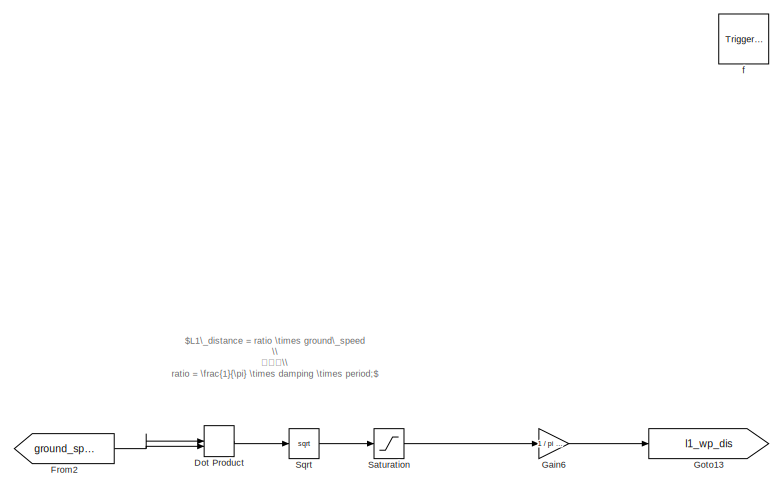
[diagram: FW Control/fixed_wing.position_control.mode_action.l1_navigate_waypoints - part 1/4, top left region]
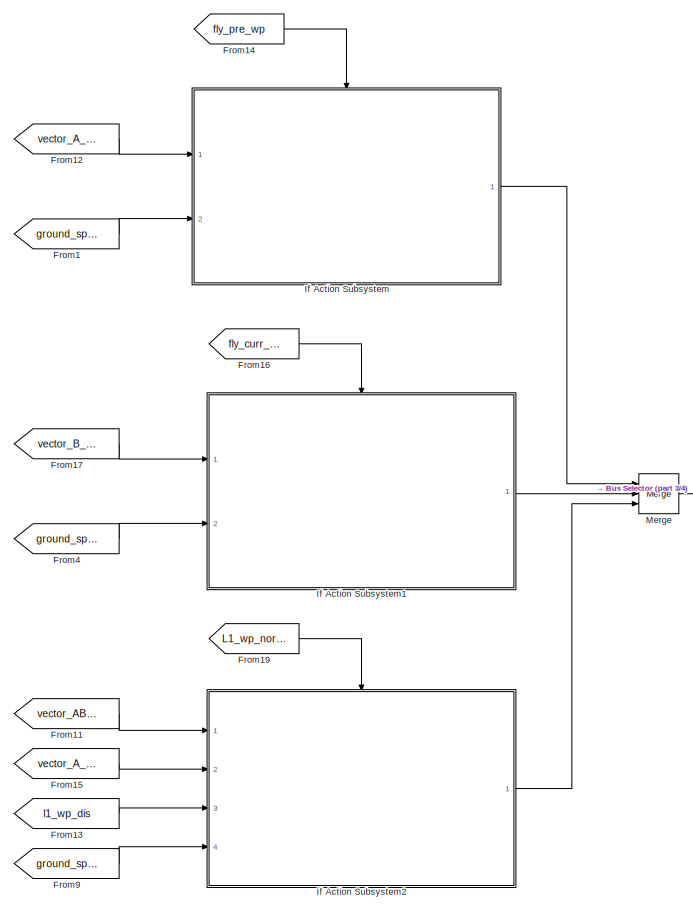
[diagram: FW Control/fixed_wing.position_control.mode_action.l1_navigate_waypoints - part 2/4, center side, full height]
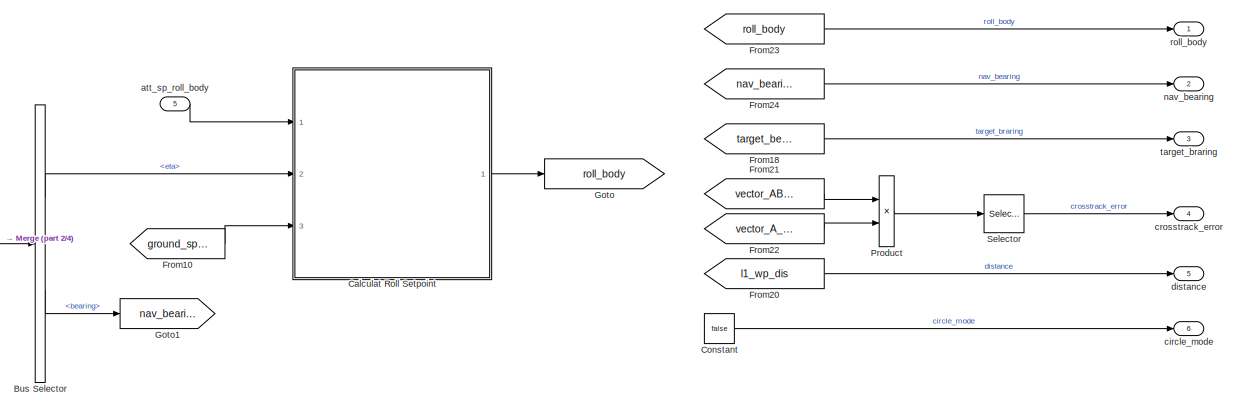
[diagram: FW Control/fixed_wing.position_control.mode_action.l1_navigate_waypoints - part 3/4, middle right region]
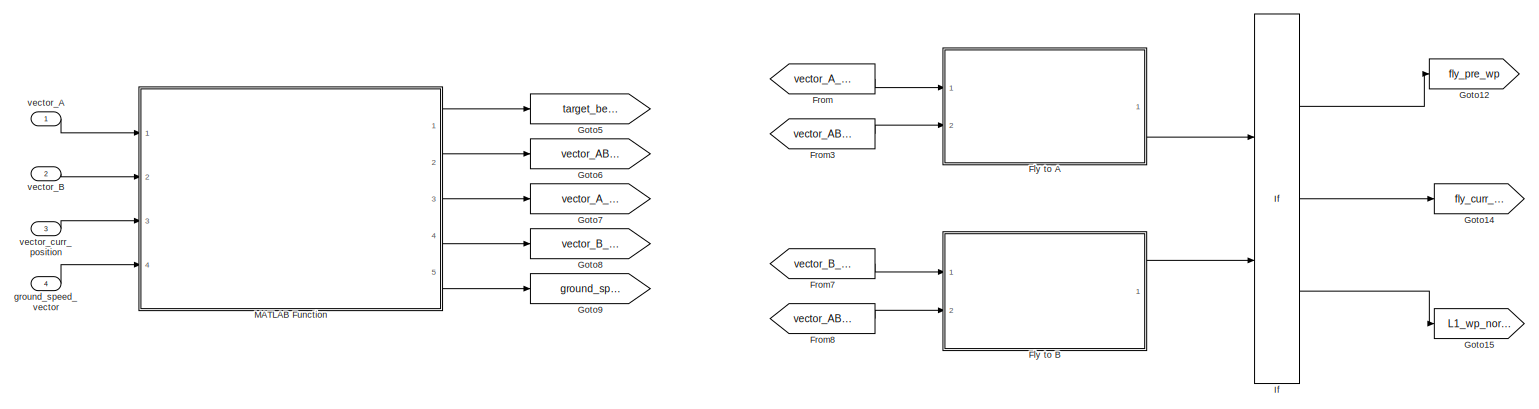
[diagram: FW Control/fixed_wing.position_control.mode_action.l1_navigate_waypoints - part 4/4, middle left region]
BLOCK [SubSystem] FW Control/fixed_wing.position_control.mode_action.l1_navigate_waypoints
  Ports = [5, 6, 0, 1]
  PreDeleteFcn = Stateflow.SLINSF.SimulinkMan.removePreDeleteFcn
  RequestExecContextInheritance = off
  UndoDeleteFcn = Stateflow.SLINSF.SimulinkMan.restorePreDeleteFcn
BLOCK [BusSelector] FW Control/fixed_wing.position_control.mode_action.l1_navigate_waypoints/Bus Selector
  OutputSignals = eta,bearing
  Ports = [1, 2]
BLOCK [SubSystem] FW Control/fixed_wing.position_control.mode_action.l1_navigate_waypoints/Calculat Roll Setpoint
  Ports = [3, 1]
  RequestExecContextInheritance = off
BLOCK [Reference] FW Control/fixed_wing.position_control.mode_action.l1_navigate_waypoints/Calculat Roll Setpoint/Compare To Zero  REF=simulink/Logic and Bit
Operations/Compare
To Zero
  Ports = [1, 1]
  SourceBlock = simulink/Logic and Bit\nOperations/Compare\nTo Zero
  SourceProductBaseCode = SL
  SourceType = Compare To Zero
BLOCK [Constant] FW Control/fixed_wing.position_control.mode_action.l1_navigate_waypoints/Calculat Roll Setpoint/Constant1
  AttributesFormatString = %<Value>
  Value = FW_L1_R_SLEW_MAX
BLOCK [Constant] FW Control/fixed_wing.position_control.mode_action.l1_navigate_waypoints/Calculat Roll Setpoint/Constant2
  AttributesFormatString = %<Value>
  Value = FW_L1_R_SLEW_MAX
BLOCK [Product] FW Control/fixed_wing.position_control.mode_action.l1_navigate_waypoints/Calculat Roll Setpoint/Divide1
  Inputs = */
  Ports = [2, 1]
BLOCK [DotProduct] FW Control/fixed_wing.position_control.mode_action.l1_navigate_waypoints/Calculat Roll Setpoint/Dot Product1
  OutDataTypeStr = Inherit: Inherit via internal rule
BLOCK [Gain] FW Control/fixed_wing.position_control.mode_action.l1_navigate_waypoints/Calculat Roll Setpoint/Gain
  AttributesFormatString = %<Gain>
  Gain = 1.0 / GRAVITY
BLOCK [Gain] FW Control/fixed_wing.position_control.mode_action.l1_navigate_waypoints/Calculat Roll Setpoint/Gain1
  AttributesFormatString = %<Gain>
  Gain = 4 * FW_L1_DAMPING^2
BLOCK [Gain] FW Control/fixed_wing.position_control.mode_action.l1_navigate_waypoints/Calculat Roll Setpoint/Gain2
  AttributesFormatString = %<Gain>
  Gain = 1 / pi * FW_L1_DAMPING * FW_L1_PERIOD
BLOCK [RelationalOperator] FW Control/fixed_wing.position_control.mode_action.l1_navigate_waypoints/Calculat Roll Setpoint/IsFinite1
  InputSameDT = off
  Operator = isFinite
  OutDataTypeStr = boolean
  Ports = [1, 1]
  RndMeth = Simplest
BLOCK [Math] FW Control/fixed_wing.position_control.mode_action.l1_navigate_waypoints/Calculat Roll Setpoint/Math Function
  Operator = magnitude^2
  Ports = [1, 1]
BLOCK [Product] FW Control/fixed_wing.position_control.mode_action.l1_navigate_waypoints/Calculat Roll Setpoint/Product1
  Ports = [2, 1]
BLOCK [Saturate] FW Control/fixed_wing.position_control.mode_action.l1_navigate_waypoints/Calculat Roll Setpoint/Saturation
  AttributesFormatString = [%<LowerLimit>,%<UpperLimit>]
  LowerLimit = -FW_R_LIM
  UpperLimit = FW_R_LIM
BLOCK [Reference] FW Control/fixed_wing.position_control.mode_action.l1_navigate_waypoints/Calculat Roll Setpoint/Saturation Dynamic  REF=simulink/Discontinuities/Saturation
Dynamic
  Ports = [3, 1]
  SourceBlock = simulink/Discontinuities/Saturation\nDynamic
  SourceProductBaseCode = SL
  SourceType = Saturation Dynamic
BLOCK [Saturate] FW Control/fixed_wing.position_control.mode_action.l1_navigate_waypoints/Calculat Roll Setpoint/Saturation1
  AttributesFormatString = [%<LowerLimit>,%<UpperLimit>]
  LowerLimit = single(0.1)
  UpperLimit = single(inf)
BLOCK [Trigonometry] FW Control/fixed_wing.position_control.mode_action.l1_navigate_waypoints/Calculat Roll Setpoint/Sin1
  Ports = [1, 1]
BLOCK [Sqrt] FW Control/fixed_wing.position_control.mode_action.l1_navigate_waypoints/Calculat Roll Setpoint/Sqrt1
BLOCK [Sum] FW Control/fixed_wing.position_control.mode_action.l1_navigate_waypoints/Calculat Roll Setpoint/Sum
  Inputs = |++
  Ports = [2, 1]
BLOCK [Sum] FW Control/fixed_wing.position_control.mode_action.l1_navigate_waypoints/Calculat Roll Setpoint/Sum1
  Inputs = -+|
  Ports = [2, 1]
BLOCK [Switch] FW Control/fixed_wing.position_control.mode_action.l1_navigate_waypoints/Calculat Roll Setpoint/Switch1
  Criteria = u2 > Threshold
  InputSameDT = off
  SaturateOnIntegerOverflow = off
BLOCK [Switch] FW Control/fixed_wing.position_control.mode_action.l1_navigate_waypoints/Calculat Roll Setpoint/Switch2
  Criteria = u2 > Threshold
  InputSameDT = off
  SaturateOnIntegerOverflow = off
BLOCK [SampleTimeMath] FW Control/fixed_wing.position_control.mode_action.l1_navigate_waypoints/Calculat Roll Setpoint/Weighted Sample Time
  TsampMathOp = *
BLOCK [Inport] FW Control/fixed_wing.position_control.mode_action.l1_navigate_waypoints/Calculat Roll Setpoint/att_sp_roll_body
  PortDimensions = 1
BLOCK [InportShadow] FW Control/fixed_wing.position_control.mode_action.l1_navigate_waypoints/Calculat Roll Setpoint/att_sp_roll_body1
  PortDimensions = 1
BLOCK [InportShadow] FW Control/fixed_wing.position_control.mode_action.l1_navigate_waypoints/Calculat Roll Setpoint/att_sp_roll_body3
  PortDimensions = 1
BLOCK [Inport] FW Control/fixed_wing.position_control.mode_action.l1_navigate_waypoints/Calculat Roll Setpoint/eta
  Port = 2
BLOCK [Inport] FW Control/fixed_wing.position_control.mode_action.l1_navigate_waypoints/Calculat Roll Setpoint/ground_speed_3d
  Port = 3
BLOCK [Outport] FW Control/fixed_wing.position_control.mode_action.l1_navigate_waypoints/Calculat Roll Setpoint/roll_sp
BLOCK [Constant] FW Control/fixed_wing.position_control.mode_action.l1_navigate_waypoints/Constant
  Value = false
BLOCK [DotProduct] FW Control/fixed_wing.position_control.mode_action.l1_navigate_waypoints/Dot Product
  OutDataTypeStr = Inherit: Inherit via internal rule
BLOCK [SubSystem] FW Control/fixed_wing.position_control.mode_action.l1_navigate_waypoints/Fly to A
  Ports = [2, 1]
  RequestExecContextInheritance = off
BLOCK [Logic] FW Control/fixed_wing.position_control.mode_action.l1_navigate_waypoints/Fly to A/AND
  AllPortsSameDT = off
  IconShape = distinctive
  OutDataTypeStr = boolean
  Ports = [2, 1]
BLOCK [Reference] FW Control/fixed_wing.position_control.mode_action.l1_navigate_waypoints/Fly to A/Compare To Constant  REF=simulink/Logic and Bit
Operations/Compare
To Constant
  AttributesFormatString = %<const>
  Ports = [1, 1]
  SourceBlock = simulink/Logic and Bit\nOperations/Compare\nTo Constant
  SourceProductBaseCode = SL
  SourceType = Compare To Constant
BLOCK [Reference] FW Control/fixed_wing.position_control.mode_action.l1_navigate_waypoints/Fly to A/Compare To Zero  REF=simulink/Logic and Bit
Operations/Compare
To Zero
  Ports = [1, 1]
  SourceBlock = simulink/Logic and Bit\nOperations/Compare\nTo Zero
  SourceProductBaseCode = SL
  SourceType = Compare To Zero
BLOCK [Product] FW Control/fixed_wing.position_control.mode_action.l1_navigate_waypoints/Fly to A/Divide
  Inputs = */
  Ports = [2, 1]
BLOCK [DotProduct] FW Control/fixed_wing.position_control.mode_action.l1_navigate_waypoints/Fly to A/Dot Product1
  OutDataTypeStr = Inherit: Inherit via internal rule
BLOCK [DotProduct] FW Control/fixed_wing.position_control.mode_action.l1_navigate_waypoints/Fly to A/Dot Product4
  OutDataTypeStr = Inherit: Inherit via internal rule
BLOCK [From] FW Control/fixed_wing.position_control.mode_action.l1_navigate_waypoints/Fly to A/From13
  GotoTag = l1_wp_dis
  TagVisibility = global
BLOCK [Saturate] FW Control/fixed_wing.position_control.mode_action.l1_navigate_waypoints/Fly to A/Saturation1
  AttributesFormatString = [%<LowerLimit>,%<UpperLimit>]
  LowerLimit = 1
  UpperLimit = inf
BLOCK [Sqrt] FW Control/fixed_wing.position_control.mode_action.l1_navigate_waypoints/Fly to A/Sqrt2
BLOCK [Sum] FW Control/fixed_wing.position_control.mode_action.l1_navigate_waypoints/Fly to A/Sum
  Inputs = |+-
  Ports = [2, 1]
BLOCK [Outport] FW Control/fixed_wing.position_control.mode_action.l1_navigate_waypoints/Fly to A/out
BLOCK [Inport] FW Control/fixed_wing.position_control.mode_action.l1_navigate_waypoints/Fly to A/vector_AB_unit
  Port = 2
BLOCK [Inport] FW Control/fixed_wing.position_control.mode_action.l1_navigate_waypoints/Fly to A/vector_A_to_airplane
BLOCK [InportShadow] FW Control/fixed_wing.position_control.mode_action.l1_navigate_waypoints/Fly to A/vector_A_to_airplane1
BLOCK [SubSystem] FW Control/fixed_wing.position_control.mode_action.l1_navigate_waypoints/Fly to B
  Ports = [2, 1]
  RequestExecContextInheritance = off
BLOCK [Abs] FW Control/fixed_wing.position_control.mode_action.l1_navigate_waypoints/Fly to B/Abs
  SaturateOnIntegerOverflow = off
BLOCK [Trigonometry] FW Control/fixed_wing.position_control.mode_action.l1_navigate_waypoints/Fly to B/Atan2
  Operator = atan2
  Ports = [2, 1]
BLOCK [Reference] FW Control/fixed_wing.position_control.mode_action.l1_navigate_waypoints/Fly to B/Compare To Constant1  REF=simulink/Logic and Bit
Operations/Compare
To Constant
  AttributesFormatString = %<const>
  Ports = [1, 1]
  SourceBlock = simulink/Logic and Bit\nOperations/Compare\nTo Constant
  SourceProductBaseCode = SL
  SourceType = Compare To Constant
BLOCK [Reference] FW Control/fixed_wing.position_control.mode_action.l1_navigate_waypoints/Fly to B/Cross Product  REF=vrlib/Utilities/Cross Product
  Ports = [2, 1]
  SourceBlock = vrlib/Utilities/Cross Product
  SourceProductBaseCode = SL
  SourceType = Cross Product
BLOCK [DotProduct] FW Control/fixed_wing.position_control.mode_action.l1_navigate_waypoints/Fly to B/Dot Product3
  OutDataTypeStr = Inherit: Inherit via internal rule
BLOCK [Selector] FW Control/fixed_wing.position_control.mode_action.l1_navigate_waypoints/Fly to B/Selector
  IndexOptions = Index vector (dialog)
  Indices = [3]
  InputPortWidth = 3
  OutputSizes = 1
  Ports = [1, 1]
BLOCK [Outport] FW Control/fixed_wing.position_control.mode_action.l1_navigate_waypoints/Fly to B/out
BLOCK [Inport] FW Control/fixed_wing.position_control.mode_action.l1_navigate_waypoints/Fly to B/vector_AB_unit
  Port = 2
BLOCK [Inport] FW Control/fixed_wing.position_control.mode_action.l1_navigate_waypoints/Fly to B/vector_B_to_P_unit
BLOCK [From] FW Control/fixed_wing.position_control.mode_action.l1_navigate_waypoints/From
  GotoTag = vector_A_to_airplane
BLOCK [From] FW Control/fixed_wing.position_control.mode_action.l1_navigate_waypoints/From1
  GotoTag = ground_speed_3d
BLOCK [From] FW Control/fixed_wing.position_control.mode_action.l1_navigate_waypoints/From10
  GotoTag = ground_speed_3d
BLOCK [From] FW Control/fixed_wing.position_control.mode_action.l1_navigate_waypoints/From11
  GotoTag = vector_AB_unit
BLOCK [From] FW Control/fixed_wing.position_control.mode_action.l1_navigate_waypoints/From12
  GotoTag = vector_A_to_airplane
BLOCK [From] FW Control/fixed_wing.position_control.mode_action.l1_navigate_waypoints/From13
  GotoTag = l1_wp_dis
  TagVisibility = global
BLOCK [From] FW Control/fixed_wing.position_control.mode_action.l1_navigate_waypoints/From14
  GotoTag = fly_pre_wp
BLOCK [From] FW Control/fixed_wing.position_control.mode_action.l1_navigate_waypoints/From15
  GotoTag = vector_A_to_airplane
BLOCK [From] FW Control/fixed_wing.position_control.mode_action.l1_navigate_waypoints/From16
  GotoTag = fly_curr_wp
BLOCK [From] FW Control/fixed_wing.position_control.mode_action.l1_navigate_waypoints/From17
  GotoTag = vector_B_to_P_unit
BLOCK [From] FW Control/fixed_wing.position_control.mode_action.l1_navigate_waypoints/From18
  GotoTag = target_bearing
BLOCK [From] FW Control/fixed_wing.position_control.mode_action.l1_navigate_waypoints/From19
  GotoTag = L1_wp_normal
BLOCK [From] FW Control/fixed_wing.position_control.mode_action.l1_navigate_waypoints/From2
  GotoTag = ground_speed_3d
BLOCK [From] FW Control/fixed_wing.position_control.mode_action.l1_navigate_waypoints/From20
  GotoTag = l1_wp_dis
  TagVisibility = global
BLOCK [From] FW Control/fixed_wing.position_control.mode_action.l1_navigate_waypoints/From21
  GotoTag = vector_AB_unit
BLOCK [From] FW Control/fixed_wing.position_control.mode_action.l1_navigate_waypoints/From22
  GotoTag = vector_A_to_airplane
BLOCK [From] FW Control/fixed_wing.position_control.mode_action.l1_navigate_waypoints/From23
  GotoTag = roll_body
BLOCK [From] FW Control/fixed_wing.position_control.mode_action.l1_navigate_waypoints/From24
  GotoTag = nav_bearing
BLOCK [From] FW Control/fixed_wing.position_control.mode_action.l1_navigate_waypoints/From3
  GotoTag = vector_AB_unit
BLOCK [From] FW Control/fixed_wing.position_control.mode_action.l1_navigate_waypoints/From4
  GotoTag = ground_speed_3d
BLOCK [From] FW Control/fixed_wing.position_control.mode_action.l1_navigate_waypoints/From7
  GotoTag = vector_B_to_P_unit
BLOCK [From] FW Control/fixed_wing.position_control.mode_action.l1_navigate_waypoints/From8
  GotoTag = vector_AB_unit
BLOCK [From] FW Control/fixed_wing.position_control.mode_action.l1_navigate_waypoints/From9
  GotoTag = ground_speed_3d
BLOCK [Gain] FW Control/fixed_wing.position_control.mode_action.l1_navigate_waypoints/Gain6
  AttributesFormatString = %<Gain>
  Gain = 1 / pi * FW_L1_DAMPING * FW_L1_PERIOD
BLOCK [Goto] FW Control/fixed_wing.position_control.mode_action.l1_navigate_waypoints/Goto
  GotoTag = roll_body
BLOCK [Goto] FW Control/fixed_wing.position_control.mode_action.l1_navigate_waypoints/Goto1
  GotoTag = nav_bearing
BLOCK [Goto] FW Control/fixed_wing.position_control.mode_action.l1_navigate_waypoints/Goto12
  GotoTag = fly_pre_wp
BLOCK [Goto] FW Control/fixed_wing.position_control.mode_action.l1_navigate_waypoints/Goto13
  GotoTag = l1_wp_dis
  TagVisibility = global
BLOCK [Goto] FW Control/fixed_wing.position_control.mode_action.l1_navigate_waypoints/Goto14
  GotoTag = fly_curr_wp
BLOCK [Goto] FW Control/fixed_wing.position_control.mode_action.l1_navigate_waypoints/Goto15
  GotoTag = L1_wp_normal
BLOCK [Goto] FW Control/fixed_wing.position_control.mode_action.l1_navigate_waypoints/Goto5
  GotoTag = target_bearing
BLOCK [Goto] FW Control/fixed_wing.position_control.mode_action.l1_navigate_waypoints/Goto6
  GotoTag = vector_AB_unit
BLOCK [Goto] FW Control/fixed_wing.position_control.mode_action.l1_navigate_waypoints/Goto7
  GotoTag = vector_A_to_airplane
BLOCK [Goto] FW Control/fixed_wing.position_control.mode_action.l1_navigate_waypoints/Goto8
  GotoTag = vector_B_to_P_unit
BLOCK [Goto] FW Control/fixed_wing.position_control.mode_action.l1_navigate_waypoints/Goto9
  GotoTag = ground_speed_3d
BLOCK [If] FW Control/fixed_wing.position_control.mode_action.l1_navigate_waypoints/If
  ElseIfExpressions = u2
  IfExpression = u1
  NumInputs = 2
  Ports = [2, 3]
BLOCK [SubSystem] FW Control/fixed_wing.position_control.mode_action.l1_navigate_waypoints/If Action Subsystem
  Ports = [2, 1, 0, 0, 0, 0, 0, 1]
  RequestExecContextInheritance = off
  TreatAsAtomicUnit = on
BLOCK [ActionPort] FW Control/fixed_wing.position_control.mode_action.l1_navigate_waypoints/If Action Subsystem/Action Port
  ActionPortLabel = if(u1)
BLOCK [Trigonometry] FW Control/fixed_wing.position_control.mode_action.l1_navigate_waypoints/If Action Subsystem/Atan
  Operator = atan2
  Ports = [2, 1]
BLOCK [Trigonometry] FW Control/fixed_wing.position_control.mode_action.l1_navigate_waypoints/If Action Subsystem/Atan1
  Operator = atan2
  Ports = [2, 1]
BLOCK [BusCreator] FW Control/fixed_wing.position_control.mode_action.l1_navigate_waypoints/If Action Subsystem/Bus Creator
  DisplayOption = bar
  InheritFromInputs = on
  Inputs = 2
  Ports = [2, 1]
BLOCK [Product] FW Control/fixed_wing.position_control.mode_action.l1_navigate_waypoints/If Action Subsystem/Divide
  Inputs = */
  Ports = [2, 1]
BLOCK [DotProduct] FW Control/fixed_wing.position_control.mode_action.l1_navigate_waypoints/If Action Subsystem/Dot Product
  OutDataTypeStr = Inherit: Inherit via internal rule
BLOCK [DotProduct] FW Control/fixed_wing.position_control.mode_action.l1_navigate_waypoints/If Action Subsystem/Dot Product1
  OutDataTypeStr = Inherit: Inherit via internal rule
BLOCK [Product] FW Control/fixed_wing.position_control.mode_action.l1_navigate_waypoints/If Action Subsystem/Product
  Ports = [2, 1]
BLOCK [Selector] FW Control/fixed_wing.position_control.mode_action.l1_navigate_waypoints/If Action Subsystem/Selector
  IndexOptions = Index vector (dialog)
  Indices = [3]
  InputPortWidth = 3
  OutputSizes = 1
  Ports = [1, 1]
BLOCK [Selector] FW Control/fixed_wing.position_control.mode_action.l1_navigate_waypoints/If Action Subsystem/Selector1
  IndexOptions = Index vector (dialog)
  Indices = [2]
  InputPortWidth = 3
  OutputSizes = 1
  Ports = [1, 1]
BLOCK [Selector] FW Control/fixed_wing.position_control.mode_action.l1_navigate_waypoints/If Action Subsystem/Selector2
  IndexOptions = Index vector (dialog)
  Indices = [1]
  InputPortWidth = 3
  OutputSizes = 1
  Ports = [1, 1]
BLOCK [Sqrt] FW Control/fixed_wing.position_control.mode_action.l1_navigate_waypoints/If Action Subsystem/Sqrt
BLOCK [UnaryMinus] FW Control/fixed_wing.position_control.mode_action.l1_navigate_waypoints/If Action Subsystem/Unary Minus
BLOCK [Outport] FW Control/fixed_wing.position_control.mode_action.l1_navigate_waypoints/If Action Subsystem/eta_bearing
BLOCK [Inport] FW Control/fixed_wing.position_control.mode_action.l1_navigate_waypoints/If Action Subsystem/ground_speed_3d
  Port = 2
BLOCK [Inport] FW Control/fixed_wing.position_control.mode_action.l1_navigate_waypoints/If Action Subsystem/vector_A_to_airplane
BLOCK [SubSystem] FW Control/fixed_wing.position_control.mode_action.l1_navigate_waypoints/If Action Subsystem1
  Ports = [2, 1, 0, 0, 0, 0, 0, 1]
  RequestExecContextInheritance = off
  TreatAsAtomicUnit = on
BLOCK [ActionPort] FW Control/fixed_wing.position_control.mode_action.l1_navigate_waypoints/If Action Subsystem1/Action Port
  ActionPortLabel = elseif(u2)
BLOCK [Trigonometry] FW Control/fixed_wing.position_control.mode_action.l1_navigate_waypoints/If Action Subsystem1/Atan
  Operator = atan2
  Ports = [2, 1]
BLOCK [Trigonometry] FW Control/fixed_wing.position_control.mode_action.l1_navigate_waypoints/If Action Subsystem1/Atan1
  Operator = atan2
  Ports = [2, 1]
BLOCK [BusCreator] FW Control/fixed_wing.position_control.mode_action.l1_navigate_waypoints/If Action Subsystem1/Bus Creator
  DisplayOption = bar
  InheritFromInputs = on
  Inputs = 2
  Ports = [2, 1]
BLOCK [DotProduct] FW Control/fixed_wing.position_control.mode_action.l1_navigate_waypoints/If Action Subsystem1/Dot Product1
  OutDataTypeStr = Inherit: Inherit via internal rule
BLOCK [Product] FW Control/fixed_wing.position_control.mode_action.l1_navigate_waypoints/If Action Subsystem1/Product
  Ports = [2, 1]
BLOCK [Selector] FW Control/fixed_wing.position_control.mode_action.l1_navigate_waypoints/If Action Subsystem1/Selector
  IndexOptions = Index vector (dialog)
  Indices = [3]
  InputPortWidth = 3
  OutputSizes = 1
  Ports = [1, 1]
BLOCK [Selector] FW Control/fixed_wing.position_control.mode_action.l1_navigate_waypoints/If Action Subsystem1/Selector1
  IndexOptions = Index vector (dialog)
  Indices = [2]
  InputPortWidth = 3
  OutputSizes = 1
  Ports = [1, 1]
BLOCK [Selector] FW Control/fixed_wing.position_control.mode_action.l1_navigate_waypoints/If Action Subsystem1/Selector2
  IndexOptions = Index vector (dialog)
  Indices = [1]
  InputPortWidth = 3
  OutputSizes = 1
  Ports = [1, 1]
BLOCK [UnaryMinus] FW Control/fixed_wing.position_control.mode_action.l1_navigate_waypoints/If Action Subsystem1/Unary Minus
BLOCK [UnaryMinus] FW Control/fixed_wing.position_control.mode_action.l1_navigate_waypoints/If Action Subsystem1/Unary Minus1
BLOCK [Outport] FW Control/fixed_wing.position_control.mode_action.l1_navigate_waypoints/If Action Subsystem1/eta_bearing
BLOCK [Inport] FW Control/fixed_wing.position_control.mode_action.l1_navigate_waypoints/If Action Subsystem1/ground_speed_3d
  Port = 2
BLOCK [Inport] FW Control/fixed_wing.position_control.mode_action.l1_navigate_waypoints/If Action Subsystem1/vector_B_to_P_unit
BLOCK [SubSystem] FW Control/fixed_wing.position_control.mode_action.l1_navigate_waypoints/If Action Subsystem2
  Ports = [4, 1, 0, 0, 0, 0, 0, 1]
  RequestExecContextInheritance = off
  TreatAsAtomicUnit = on
BLOCK [ActionPort] FW Control/fixed_wing.position_control.mode_action.l1_navigate_waypoints/If Action Subsystem2/Action Port
  ActionPortLabel = else
BLOCK [Sum] FW Control/fixed_wing.position_control.mode_action.l1_navigate_waypoints/If Action Subsystem2/Add
  IconShape = rectangular
  Ports = [2, 1]
BLOCK [Trigonometry] FW Control/fixed_wing.position_control.mode_action.l1_navigate_waypoints/If Action Subsystem2/Asin
  Operator = asin
  Ports = [1, 1]
BLOCK [Trigonometry] FW Control/fixed_wing.position_control.mode_action.l1_navigate_waypoints/If Action Subsystem2/Atan
  Operator = atan2
  Ports = [2, 1]
BLOCK [Trigonometry] FW Control/fixed_wing.position_control.mode_action.l1_navigate_waypoints/If Action Subsystem2/Atan1
  Operator = atan2
  Ports = [2, 1]
BLOCK [BusCreator] FW Control/fixed_wing.position_control.mode_action.l1_navigate_waypoints/If Action Subsystem2/Bus Creator
  DisplayOption = bar
  InheritFromInputs = on
  Inputs = 2
  Ports = [2, 1]
BLOCK [Product] FW Control/fixed_wing.position_control.mode_action.l1_navigate_waypoints/If Action Subsystem2/Divide
  Inputs = */
  Ports = [2, 1]
BLOCK [DotProduct] FW Control/fixed_wing.position_control.mode_action.l1_navigate_waypoints/If Action Subsystem2/Dot Product1
  OutDataTypeStr = Inherit: Inherit via internal rule
BLOCK [Inport] FW Control/fixed_wing.position_control.mode_action.l1_navigate_waypoints/If Action Subsystem2/L1_distance
  Port = 3
BLOCK [Product] FW Control/fixed_wing.position_control.mode_action.l1_navigate_waypoints/If Action Subsystem2/Product
  Ports = [2, 1]
BLOCK [Product] FW Control/fixed_wing.position_control.mode_action.l1_navigate_waypoints/If Action Subsystem2/Product1
  Ports = [2, 1]
BLOCK [Saturate] FW Control/fixed_wing.position_control.mode_action.l1_navigate_waypoints/If Action Subsystem2/Saturation
  AttributesFormatString = [%<LowerLimit>,%<UpperLimit>]
  LowerLimit = single(-inf)
  UpperLimit = single(0.1)
BLOCK [Saturate] FW Control/fixed_wing.position_control.mode_action.l1_navigate_waypoints/If Action Subsystem2/Saturation1
  AttributesFormatString = [%<LowerLimit>,%<UpperLimit>]
  LowerLimit = single(-pi/4)
  UpperLimit = single(pi/4)
BLOCK [Selector] FW Control/fixed_wing.position_control.mode_action.l1_navigate_waypoints/If Action Subsystem2/Selector
  IndexOptions = Index vector (dialog)
  Indices = [3]
  InputPortWidth = 3
  OutputSizes = 1
  Ports = [1, 1]
BLOCK [Selector] FW Control/fixed_wing.position_control.mode_action.l1_navigate_waypoints/If Action Subsystem2/Selector1
  IndexOptions = Index vector (dialog)
  Indices = [2]
  InputPortWidth = 3
  OutputSizes = 1
  Ports = [1, 1]
BLOCK [Selector] FW Control/fixed_wing.position_control.mode_action.l1_navigate_waypoints/If Action Subsystem2/Selector2
  IndexOptions = Index vector (dialog)
  Indices = [1]
  InputPortWidth = 3
  OutputSizes = 1
  Ports = [1, 1]
BLOCK [Selector] FW Control/fixed_wing.position_control.mode_action.l1_navigate_waypoints/If Action Subsystem2/Selector3
  IndexOptions = Index vector (dialog)
  Indices = [3]
  InputPortWidth = 3
  OutputSizes = 1
  Ports = [1, 1]
BLOCK [Sum] FW Control/fixed_wing.position_control.mode_action.l1_navigate_waypoints/If Action Subsystem2/Sum
  Inputs = ++|
  Ports = [2, 1]
BLOCK [UnaryMinus] FW Control/fixed_wing.position_control.mode_action.l1_navigate_waypoints/If Action Subsystem2/Unary Minus
BLOCK [Outport] FW Control/fixed_wing.position_control.mode_action.l1_navigate_waypoints/If Action Subsystem2/eta_bearing
BLOCK [Inport] FW Control/fixed_wing.position_control.mode_action.l1_navigate_waypoints/If Action Subsystem2/ground_speed_3d
  Port = 4
BLOCK [Inport] FW Control/fixed_wing.position_control.mode_action.l1_navigate_waypoints/If Action Subsystem2/vector_AB
BLOCK [InportShadow] FW Control/fixed_wing.position_control.mode_action.l1_navigate_waypoints/If Action Subsystem2/vector_AB1
BLOCK [Inport] FW Control/fixed_wing.position_control.mode_action.l1_navigate_waypoints/If Action Subsystem2/vector_A_to_airplane
  Port = 2
BLOCK [SubSystem] FW Control/fixed_wing.position_control.mode_action.l1_navigate_waypoints/MATLAB Function
  ErrorFcn = Stateflow.Translate.translate
  PermitHierarchicalResolution = ExplicitOnly
  Ports = [4, 5]
  RequestExecContextInheritance = off
  SFBlockType = MATLAB Function
  TreatAsAtomicUnit = on
BLOCK [Demux] FW Control/fixed_wing.position_control.mode_action.l1_navigate_waypoints/MATLAB Function/ Demux 
  Outputs = 1
  Ports = [1, 1]
BLOCK [S-Function] FW Control/fixed_wing.position_control.mode_action.l1_navigate_waypoints/MATLAB Function/ SFunction 
  EnableBusSupport = on
  FunctionName = sf_sfun
  PortCounts = [4 6]
  Ports = [4, 6]
  SFcnIsStateOwnerBlock = off
  SFunctionDeploymentMode = off
  Tag = Stateflow S-Function 5
BLOCK [Terminator] FW Control/fixed_wing.position_control.mode_action.l1_navigate_waypoints/MATLAB Function/ Terminator 
BLOCK [Outport] FW Control/fixed_wing.position_control.mode_action.l1_navigate_waypoints/MATLAB Function/ground_speed_3d
  Port = 5
BLOCK [Inport] FW Control/fixed_wing.position_control.mode_action.l1_navigate_waypoints/MATLAB Function/ground_speed_vector
  Port = 4
BLOCK [Outport] FW Control/fixed_wing.position_control.mode_action.l1_navigate_waypoints/MATLAB Function/target_bearing
BLOCK [Inport] FW Control/fixed_wing.position_control.mode_action.l1_navigate_waypoints/MATLAB Function/vector_A
BLOCK [Outport] FW Control/fixed_wing.position_control.mode_action.l1_navigate_waypoints/MATLAB Function/vector_AB_unit
  Port = 2
BLOCK [Outport] FW Control/fixed_wing.position_control.mode_action.l1_navigate_waypoints/MATLAB Function/vector_A_to_airplane
  Port = 3
BLOCK [Inport] FW Control/fixed_wing.position_control.mode_action.l1_navigate_waypoints/MATLAB Function/vector_B
  Port = 2
BLOCK [Outport] FW Control/fixed_wing.position_control.mode_action.l1_navigate_waypoints/MATLAB Function/vector_B_to_P_unit
  Port = 4
BLOCK [Inport] FW Control/fixed_wing.position_control.mode_action.l1_navigate_waypoints/MATLAB Function/vector_curr_position
  Port = 3
BLOCK [Merge] FW Control/fixed_wing.position_control.mode_action.l1_navigate_waypoints/Merge
  Inputs = 3
  Ports = [3, 1]
BLOCK [Product] FW Control/fixed_wing.position_control.mode_action.l1_navigate_waypoints/Product
  Ports = [2, 1]
BLOCK [Saturate] FW Control/fixed_wing.position_control.mode_action.l1_navigate_waypoints/Saturation
  AttributesFormatString = [%<LowerLimit>,%<UpperLimit>]
  LowerLimit = single(0.1)
  UpperLimit = single(inf)
BLOCK [Selector] FW Control/fixed_wing.position_control.mode_action.l1_navigate_waypoints/Selector
  IndexOptions = Index vector (dialog)
  Indices = [3]
  InputPortWidth = 3
  OutputSizes = 1
  Ports = [1, 1]
BLOCK [Sqrt] FW Control/fixed_wing.position_control.mode_action.l1_navigate_waypoints/Sqrt
BLOCK [Inport] FW Control/fixed_wing.position_control.mode_action.l1_navigate_waypoints/att_sp_roll_body
  OutDataTypeStr = single
  Port = 5
  PortDimensions = 1
  SignalType = real
  VarSizeSig = No
BLOCK [Outport] FW Control/fixed_wing.position_control.mode_action.l1_navigate_waypoints/circle_mode
  Port = 6
BLOCK [Outport] FW Control/fixed_wing.position_control.mode_action.l1_navigate_waypoints/crosstrack_error
  Port = 4
BLOCK [Outport] FW Control/fixed_wing.position_control.mode_action.l1_navigate_waypoints/distance
  Port = 5
BLOCK [TriggerPort] FW Control/fixed_wing.position_control.mode_action.l1_navigate_waypoints/f
  CopyFcn = Stateflow.SLINSF.SimulinkMan.removeBlockPreDeleteFcn
  Ports = []
  PreDeleteFcn = Stateflow.SLINSF.SimulinkMan.unsafePredeleteFcn
  StatesWhenEnabling = held
  TriggerType = function-call
  VariantControl = (inherit)
BLOCK [Inport] FW Control/fixed_wing.position_control.mode_action.l1_navigate_waypoints/ground_speed_vector
  OutDataTypeStr = single
  Port = 4
  PortDimensions = [1 2]
  SignalType = real
  VarSizeSig = No
BLOCK [Outport] FW Control/fixed_wing.position_control.mode_action.l1_navigate_waypoints/nav_bearing
  Port = 2
BLOCK [Outport] FW Control/fixed_wing.position_control.mode_action.l1_navigate_waypoints/roll_body
BLOCK [Outport] FW Control/fixed_wing.position_control.mode_action.l1_navigate_waypoints/target_braring
  Port = 3
BLOCK [Inport] FW Control/fixed_wing.position_control.mode_action.l1_navigate_waypoints/vector_A
  OutDataTypeStr = double
  PortDimensions = [1 2]
  SignalType = real
  VarSizeSig = No
BLOCK [Inport] FW Control/fixed_wing.position_control.mode_action.l1_navigate_waypoints/vector_B
  OutDataTypeStr = double
  Port = 2
  PortDimensions = [1 2]
  SignalType = real
  VarSizeSig = No
BLOCK [Inport] FW Control/fixed_wing.position_control.mode_action.l1_navigate_waypoints/vector_curr_position
  OutDataTypeStr = double
  Port = 3
  PortDimensions = [1 2]
  SignalType = real
  VarSizeSig = No
BLOCK [SubSystem] FW Control/fixed_wing.position_control.mode_action.tecs_controller
  Ports = [1, 4, 0, 1]
  PreDeleteFcn = Stateflow.SLINSF.SimulinkMan.removePreDeleteFcn
  RequestExecContextInheritance = off
  UndoDeleteFcn = Stateflow.SLINSF.SimulinkMan.restorePreDeleteFcn
BLOCK [From] FW Control/fixed_wing.position_control.mode_action.tecs_controller/From
  GotoTag = tas
  TagVisibility = global
BLOCK [From] FW Control/fixed_wing.position_control.mode_action.tecs_controller/From2
  GotoTag = STE_rate
  TagVisibility = global
BLOCK [From] FW Control/fixed_wing.position_control.mode_action.tecs_controller/From3
  GotoTag = last_thr_sp
  TagVisibility = global
BLOCK [From] FW Control/fixed_wing.position_control.mode_action.tecs_controller/From4
  GotoTag = STE_error
  TagVisibility = global
BLOCK [Goto] FW Control/fixed_wing.position_control.mode_action.tecs_controller/Goto1
  GotoTag = un_des_rec
  TagVisibility = global
BLOCK [Goto] FW Control/fixed_wing.position_control.mode_action.tecs_controller/Goto2
  GotoTag = SPE_weighting
  TagVisibility = global
BLOCK [Goto] FW Control/fixed_wing.position_control.mode_action.tecs_controller/Goto6
  GotoTag = SKE_weighting
  TagVisibility = global
BLOCK [Goto] FW Control/fixed_wing.position_control.mode_action.tecs_controller/Goto7
  GotoTag = un_spd_det
  TagVisibility = global
BLOCK [SubSystem] FW Control/fixed_wing.position_control.mode_action.tecs_controller/Tecs Logical
  ErrorFcn = Stateflow.Translate.translate
  PermitHierarchicalResolution = ExplicitOnly
  Ports = [5, 5]
  RequestExecContextInheritance = off
  SFBlockType = Chart
  TreatAsAtomicUnit = on
BLOCK [Demux] FW Control/fixed_wing.position_control.mode_action.tecs_controller/Tecs Logical/ Demux 
  Outputs = 1
  Ports = [1, 1]
BLOCK [S-Function] FW Control/fixed_wing.position_control.mode_action.tecs_controller/Tecs Logical/ SFunction 
  EnableBusSupport = off
  FunctionName = sf_sfun
  PortCounts = [5 6]
  Ports = [5, 6]
  SFcnIsStateOwnerBlock = off
  SFunctionDeploymentMode = off
  Tag = Stateflow S-Function 4
BLOCK [Terminator] FW Control/fixed_wing.position_control.mode_action.tecs_controller/Tecs Logical/ Terminator 
BLOCK [Outport] FW Control/fixed_wing.position_control.mode_action.tecs_controller/Tecs Logical/SKE_weighting_
  Port = 4
BLOCK [Outport] FW Control/fixed_wing.position_control.mode_action.tecs_controller/Tecs Logical/SPE_weighting_
  Port = 3
BLOCK [Inport] FW Control/fixed_wing.position_control.mode_action.tecs_controller/Tecs Logical/STE_error
  Port = 5
BLOCK [Inport] FW Control/fixed_wing.position_control.mode_action.tecs_controller/Tecs Logical/STE_rate
  Port = 4
BLOCK [Inport] FW Control/fixed_wing.position_control.mode_action.tecs_controller/Tecs Logical/last_throttle_setpoint
  Port = 2
BLOCK [Inport] FW Control/fixed_wing.position_control.mode_action.tecs_controller/Tecs Logical/tas
  Port = 3
BLOCK [Inport] FW Control/fixed_wing.position_control.mode_action.tecs_controller/Tecs Logical/tecs
BLOCK [Outport] FW Control/fixed_wing.position_control.mode_action.tecs_controller/Tecs Logical/tecs_mode
  Port = 5
BLOCK [Outport] FW Control/fixed_wing.position_control.mode_action.tecs_controller/Tecs Logical/uncommanded_descent_recovery
  Port = 2
BLOCK [Outport] FW Control/fixed_wing.position_control.mode_action.tecs_controller/Tecs Logical/underspeed_detected
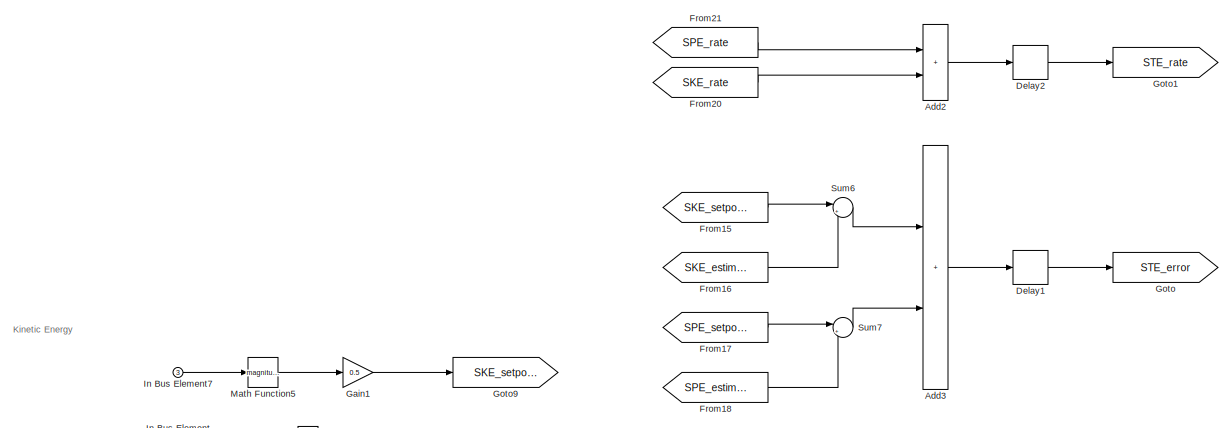
[diagram: FW Control/fixed_wing.position_control.mode_action.tecs_controller/Update Energy Estimates - part 1/3, top center region]
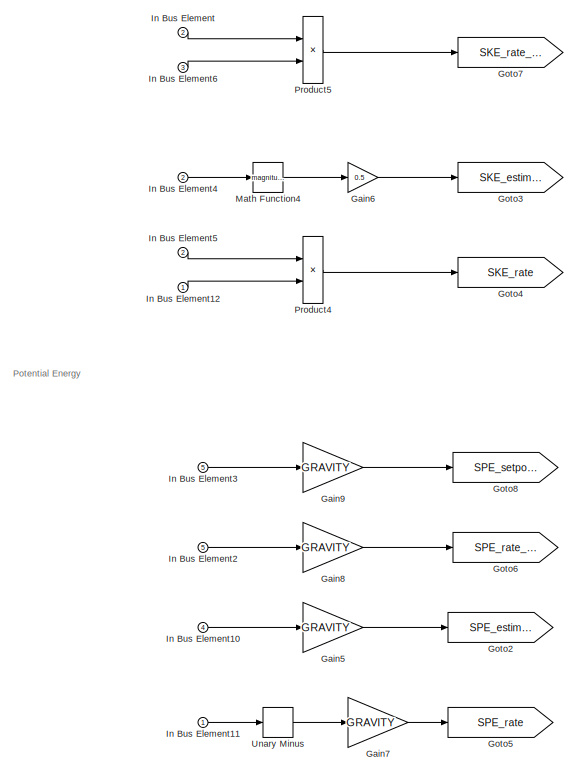
[diagram: FW Control/fixed_wing.position_control.mode_action.tecs_controller/Update Energy Estimates - part 2/3, middle left region]
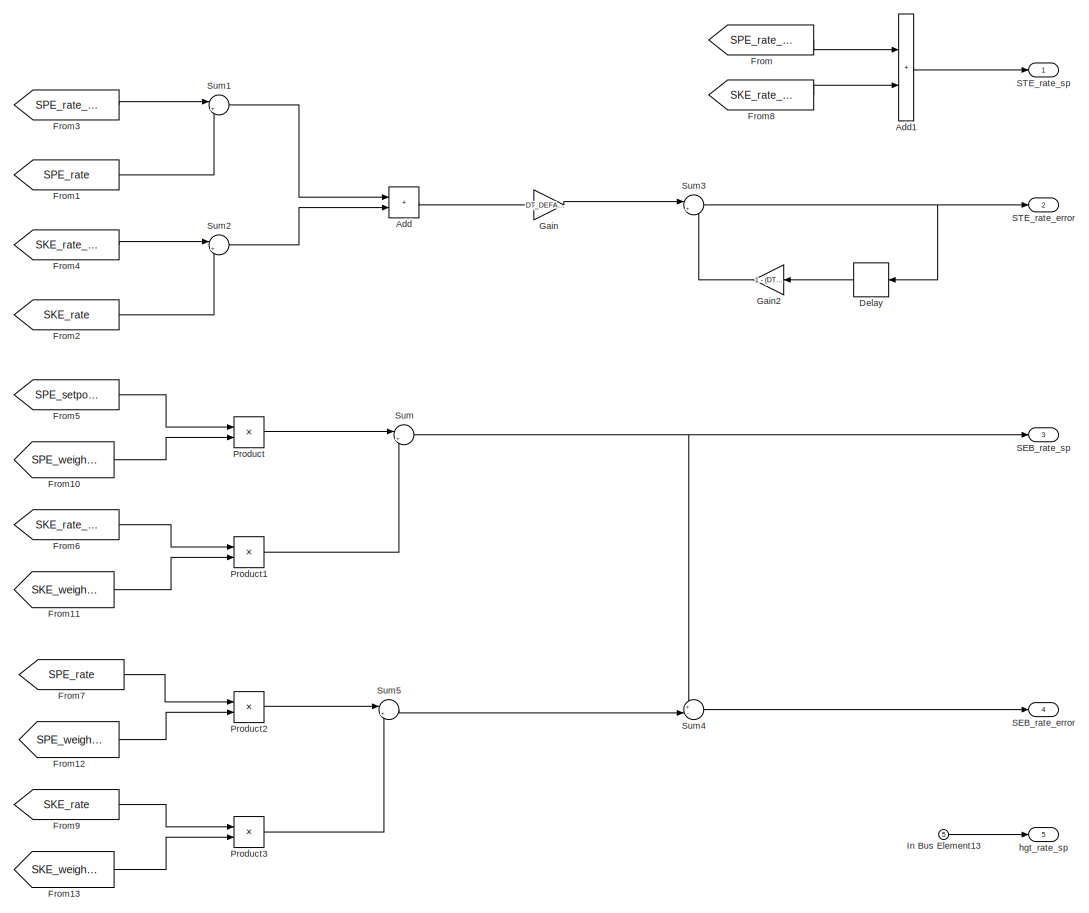
[diagram: FW Control/fixed_wing.position_control.mode_action.tecs_controller/Update Energy Estimates - part 3/3, middle right region]
BLOCK [SubSystem] FW Control/fixed_wing.position_control.mode_action.tecs_controller/Update Energy Estimates
  Ports = [5, 5]
  RequestExecContextInheritance = off
BLOCK [Sum] FW Control/fixed_wing.position_control.mode_action.tecs_controller/Update Energy Estimates/Add
  IconShape = rectangular
  Ports = [2, 1]
BLOCK [Sum] FW Control/fixed_wing.position_control.mode_action.tecs_controller/Update Energy Estimates/Add1
  IconShape = rectangular
  Ports = [2, 1]
BLOCK [Sum] FW Control/fixed_wing.position_control.mode_action.tecs_controller/Update Energy Estimates/Add2
  IconShape = rectangular
  Ports = [2, 1]
BLOCK [Sum] FW Control/fixed_wing.position_control.mode_action.tecs_controller/Update Energy Estimates/Add3
  IconShape = rectangular
  Ports = [2, 1]
BLOCK [Delay] FW Control/fixed_wing.position_control.mode_action.tecs_controller/Update Energy Estimates/Delay
  DelayLength = 1
  InputPortMap = u0
  NameLocation = top
  Ports = [1, 1]
BLOCK [Delay] FW Control/fixed_wing.position_control.mode_action.tecs_controller/Update Energy Estimates/Delay1
  DelayLength = 1
  InputPortMap = u0
  Ports = [1, 1]
BLOCK [Delay] FW Control/fixed_wing.position_control.mode_action.tecs_controller/Update Energy Estimates/Delay2
  DelayLength = 1
  InputPortMap = u0
  Ports = [1, 1]
BLOCK [From] FW Control/fixed_wing.position_control.mode_action.tecs_controller/Update Energy Estimates/From
  GotoTag = SPE_rate_setpoint
BLOCK [From] FW Control/fixed_wing.position_control.mode_action.tecs_controller/Update Energy Estimates/From1
  GotoTag = SPE_rate
BLOCK [From] FW Control/fixed_wing.position_control.mode_action.tecs_controller/Update Energy Estimates/From10
  GotoTag = SPE_weighting
  TagVisibility = global
BLOCK [From] FW Control/fixed_wing.position_control.mode_action.tecs_controller/Update Energy Estimates/From11
  GotoTag = SKE_weighting
  TagVisibility = global
BLOCK [From] FW Control/fixed_wing.position_control.mode_action.tecs_controller/Update Energy Estimates/From12
  GotoTag = SPE_weighting
  TagVisibility = global
BLOCK [From] FW Control/fixed_wing.position_control.mode_action.tecs_controller/Update Energy Estimates/From13
  GotoTag = SKE_weighting
  TagVisibility = global
BLOCK [From] FW Control/fixed_wing.position_control.mode_action.tecs_controller/Update Energy Estimates/From15
  GotoTag = SKE_setpoint
BLOCK [From] FW Control/fixed_wing.position_control.mode_action.tecs_controller/Update Energy Estimates/From16
  GotoTag = SKE_estimate
BLOCK [From] FW Control/fixed_wing.position_control.mode_action.tecs_controller/Update Energy Estimates/From17
  GotoTag = SPE_setpoint
BLOCK [From] FW Control/fixed_wing.position_control.mode_action.tecs_controller/Update Energy Estimates/From18
  GotoTag = SPE_estimate
BLOCK [From] FW Control/fixed_wing.position_control.mode_action.tecs_controller/Update Energy Estimates/From2
  GotoTag = SKE_rate
BLOCK [From] FW Control/fixed_wing.position_control.mode_action.tecs_controller/Update Energy Estimates/From20
  GotoTag = SKE_rate
BLOCK [From] FW Control/fixed_wing.position_control.mode_action.tecs_controller/Update Energy Estimates/From21
  GotoTag = SPE_rate
BLOCK [From] FW Control/fixed_wing.position_control.mode_action.tecs_controller/Update Energy Estimates/From3
  GotoTag = SPE_rate_setpoint
BLOCK [From] FW Control/fixed_wing.position_control.mode_action.tecs_controller/Update Energy Estimates/From4
  GotoTag = SKE_rate_setpoint
BLOCK [From] FW Control/fixed_wing.position_control.mode_action.tecs_controller/Update Energy Estimates/From5
  GotoTag = SPE_setpoint
BLOCK [From] FW Control/fixed_wing.position_control.mode_action.tecs_controller/Update Energy Estimates/From6
  GotoTag = SKE_rate_setpoint
BLOCK [From] FW Control/fixed_wing.position_control.mode_action.tecs_controller/Update Energy Estimates/From7
  GotoTag = SPE_rate
BLOCK [From] FW Control/fixed_wing.position_control.mode_action.tecs_controller/Update Energy Estimates/From8
  GotoTag = SKE_rate_setpoint
BLOCK [From] FW Control/fixed_wing.position_control.mode_action.tecs_controller/Update Energy Estimates/From9
  GotoTag = SKE_rate
BLOCK [Gain] FW Control/fixed_wing.position_control.mode_action.tecs_controller/Update Energy Estimates/Gain
  AttributesFormatString = %<Gain>
  Gain = DT_DEFAULT / (DT_DEFAULT + FW_T_STE_R_TC)
BLOCK [Gain] FW Control/fixed_wing.position_control.mode_action.tecs_controller/Update Energy Estimates/Gain1
  Gain = 0.5
  OutDataTypeStr = single
BLOCK [Gain] FW Control/fixed_wing.position_control.mode_action.tecs_controller/Update Energy Estimates/Gain2
  AttributesFormatString = %<Gain>
  Gain = 1 - (DT_DEFAULT / (DT_DEFAULT + FW_T_STE_R_TC))
BLOCK [Gain] FW Control/fixed_wing.position_control.mode_action.tecs_controller/Update Energy Estimates/Gain5
  Gain = GRAVITY
BLOCK [Gain] FW Control/fixed_wing.position_control.mode_action.tecs_controller/Update Energy Estimates/Gain6
  Gain = 0.5
  OutDataTypeStr = single
BLOCK [Gain] FW Control/fixed_wing.position_control.mode_action.tecs_controller/Update Energy Estimates/Gain7
  Gain = GRAVITY
BLOCK [Gain] FW Control/fixed_wing.position_control.mode_action.tecs_controller/Update Energy Estimates/Gain8
  Gain = GRAVITY
BLOCK [Gain] FW Control/fixed_wing.position_control.mode_action.tecs_controller/Update Energy Estimates/Gain9
  Gain = GRAVITY
BLOCK [Goto] FW Control/fixed_wing.position_control.mode_action.tecs_controller/Update Energy Estimates/Goto
  GotoTag = STE_error
  TagVisibility = global
BLOCK [Goto] FW Control/fixed_wing.position_control.mode_action.tecs_controller/Update Energy Estimates/Goto1
  GotoTag = STE_rate
  TagVisibility = global
BLOCK [Goto] FW Control/fixed_wing.position_control.mode_action.tecs_controller/Update Energy Estimates/Goto2
  GotoTag = SPE_estimate
BLOCK [Goto] FW Control/fixed_wing.position_control.mode_action.tecs_controller/Update Energy Estimates/Goto3
  GotoTag = SKE_estimate
BLOCK [Goto] FW Control/fixed_wing.position_control.mode_action.tecs_controller/Update Energy Estimates/Goto4
  GotoTag = SKE_rate
BLOCK [Goto] FW Control/fixed_wing.position_control.mode_action.tecs_controller/Update Energy Estimates/Goto5
  GotoTag = SPE_rate
BLOCK [Goto] FW Control/fixed_wing.position_control.mode_action.tecs_controller/Update Energy Estimates/Goto6
  GotoTag = SPE_rate_setpoint
BLOCK [Goto] FW Control/fixed_wing.position_control.mode_action.tecs_controller/Update Energy Estimates/Goto7
  GotoTag = SKE_rate_setpoint
BLOCK [Goto] FW Control/fixed_wing.position_control.mode_action.tecs_controller/Update Energy Estimates/Goto8
  GotoTag = SPE_setpoint
BLOCK [Goto] FW Control/fixed_wing.position_control.mode_action.tecs_controller/Update Energy Estimates/Goto9
  GotoTag = SKE_setpoint
BLOCK [Inport] FW Control/fixed_wing.position_control.mode_action.tecs_controller/Update Energy Estimates/In Bus Element
  Port = 2
BLOCK [Inport] FW Control/fixed_wing.position_control.mode_action.tecs_controller/Update Energy Estimates/In Bus Element10
  Port = 4
BLOCK [Inport] FW Control/fixed_wing.position_control.mode_action.tecs_controller/Update Energy Estimates/In Bus Element11
BLOCK [Inport] FW Control/fixed_wing.position_control.mode_action.tecs_controller/Update Energy Estimates/In Bus Element12
BLOCK [Inport] FW Control/fixed_wing.position_control.mode_action.tecs_controller/Update Energy Estimates/In Bus Element13
  Port = 5
BLOCK [Inport] FW Control/fixed_wing.position_control.mode_action.tecs_controller/Update Energy Estimates/In Bus Element2
  Port = 5
BLOCK [Inport] FW Control/fixed_wing.position_control.mode_action.tecs_controller/Update Energy Estimates/In Bus Element3
  Port = 5
BLOCK [Inport] FW Control/fixed_wing.position_control.mode_action.tecs_controller/Update Energy Estimates/In Bus Element4
  Port = 2
BLOCK [Inport] FW Control/fixed_wing.position_control.mode_action.tecs_controller/Update Energy Estimates/In Bus Element5
  Port = 2
BLOCK [Inport] FW Control/fixed_wing.position_control.mode_action.tecs_controller/Update Energy Estimates/In Bus Element6
  Port = 3
BLOCK [Inport] FW Control/fixed_wing.position_control.mode_action.tecs_controller/Update Energy Estimates/In Bus Element7
  Port = 3
BLOCK [Math] FW Control/fixed_wing.position_control.mode_action.tecs_controller/Update Energy Estimates/Math Function4
  Operator = magnitude^2
  Ports = [1, 1]
BLOCK [Math] FW Control/fixed_wing.position_control.mode_action.tecs_controller/Update Energy Estimates/Math Function5
  Operator = magnitude^2
  Ports = [1, 1]
BLOCK [Product] FW Control/fixed_wing.position_control.mode_action.tecs_controller/Update Energy Estimates/Product
  Ports = [2, 1]
BLOCK [Product] FW Control/fixed_wing.position_control.mode_action.tecs_controller/Update Energy Estimates/Product1
  Ports = [2, 1]
BLOCK [Product] FW Control/fixed_wing.position_control.mode_action.tecs_controller/Update Energy Estimates/Product2
  Ports = [2, 1]
BLOCK [Product] FW Control/fixed_wing.position_control.mode_action.tecs_controller/Update Energy Estimates/Product3
  Ports = [2, 1]
BLOCK [Product] FW Control/fixed_wing.position_control.mode_action.tecs_controller/Update Energy Estimates/Product4
  Ports = [2, 1]
BLOCK [Product] FW Control/fixed_wing.position_control.mode_action.tecs_controller/Update Energy Estimates/Product5
  Ports = [2, 1]
BLOCK [Outport] FW Control/fixed_wing.position_control.mode_action.tecs_controller/Update Energy Estimates/SEB_rate_error
  Port = 4
BLOCK [Outport] FW Control/fixed_wing.position_control.mode_action.tecs_controller/Update Energy Estimates/SEB_rate_sp
  Port = 3
BLOCK [Outport] FW Control/fixed_wing.position_control.mode_action.tecs_controller/Update Energy Estimates/STE_rate_error
  Port = 2
BLOCK [Outport] FW Control/fixed_wing.position_control.mode_action.tecs_controller/Update Energy Estimates/STE_rate_sp
BLOCK [Sum] FW Control/fixed_wing.position_control.mode_action.tecs_controller/Update Energy Estimates/Sum
  Inputs = |++
  Ports = [2, 1]
BLOCK [Sum] FW Control/fixed_wing.position_control.mode_action.tecs_controller/Update Energy Estimates/Sum1
  Inputs = |+-
  Ports = [2, 1]
BLOCK [Sum] FW Control/fixed_wing.position_control.mode_action.tecs_controller/Update Energy Estimates/Sum2
  Inputs = |+-
  Ports = [2, 1]
BLOCK [Sum] FW Control/fixed_wing.position_control.mode_action.tecs_controller/Update Energy Estimates/Sum3
  Inputs = |++
  Ports = [2, 1]
BLOCK [Sum] FW Control/fixed_wing.position_control.mode_action.tecs_controller/Update Energy Estimates/Sum4
  Inputs = +-|
  Ports = [2, 1]
BLOCK [Sum] FW Control/fixed_wing.position_control.mode_action.tecs_controller/Update Energy Estimates/Sum5
  Inputs = |+-
  Ports = [2, 1]
BLOCK [Sum] FW Control/fixed_wing.position_control.mode_action.tecs_controller/Update Energy Estimates/Sum6
  Inputs = |+-
  Ports = [2, 1]
BLOCK [Sum] FW Control/fixed_wing.position_control.mode_action.tecs_controller/Update Energy Estimates/Sum7
  Inputs = |+-
  Ports = [2, 1]
BLOCK [UnaryMinus] FW Control/fixed_wing.position_control.mode_action.tecs_controller/Update Energy Estimates/Unary Minus
BLOCK [Outport] FW Control/fixed_wing.position_control.mode_action.tecs_controller/Update Energy Estimates/hgt_rate_sp
  Port = 5
BLOCK [SubSystem] FW Control/fixed_wing.position_control.mode_action.tecs_controller/Update Height State and Height Setpoint State
  Ports = [1, 2]
  RequestExecContextInheritance = off
BLOCK [BusCreator] FW Control/fixed_wing.position_control.mode_action.tecs_controller/Update Height State and Height Setpoint State/Bus Creator
  DisplayOption = bar
  InheritFromInputs = on
  Inputs = 2
  Ports = [2, 1]
BLOCK [BusCreator] FW Control/fixed_wing.position_control.mode_action.tecs_controller/Update Height State and Height Setpoint State/Bus Creator1
  DisplayOption = bar
  InheritFromInputs = on
  Inputs = 2
  Ports = [2, 1]
BLOCK [BusSelector] FW Control/fixed_wing.position_control.mode_action.tecs_controller/Update Height State and Height Setpoint State/Bus Selector
  OutputSignals = hgt_sp
  Ports = [1, 1]
BLOCK [Delay] FW Control/fixed_wing.position_control.mode_action.tecs_controller/Update Height State and Height Setpoint State/Delay2
  DelayLength = 1
  InputPortMap = u0
  Ports = [1, 1]
BLOCK [From] FW Control/fixed_wing.position_control.mode_action.tecs_controller/Update Height State and Height Setpoint State/From1
  GotoTag = last_hgt_setpoint
BLOCK [Gain] FW Control/fixed_wing.position_control.mode_action.tecs_controller/Update Height State and Height Setpoint State/Gain
  Gain = GRAVITY
BLOCK [Goto] FW Control/fixed_wing.position_control.mode_action.tecs_controller/Update Height State and Height Setpoint State/Goto2
  GotoTag = last_hgt_setpoint
BLOCK [Inport] FW Control/fixed_wing.position_control.mode_action.tecs_controller/Update Height State and Height Setpoint State/In Bus Element1
BLOCK [Inport] FW Control/fixed_wing.position_control.mode_action.tecs_controller/Update Height State and Height Setpoint State/In Bus Element10
BLOCK [Inport] FW Control/fixed_wing.position_control.mode_action.tecs_controller/Update Height State and Height Setpoint State/In Bus Element11
BLOCK [Inport] FW Control/fixed_wing.position_control.mode_action.tecs_controller/Update Height State and Height Setpoint State/In Bus Element2
BLOCK [Inport] FW Control/fixed_wing.position_control.mode_action.tecs_controller/Update Height State and Height Setpoint State/In Bus Element3
BLOCK [Inport] FW Control/fixed_wing.position_control.mode_action.tecs_controller/Update Height State and Height Setpoint State/In Bus Element4
BLOCK [Inport] FW Control/fixed_wing.position_control.mode_action.tecs_controller/Update Height State and Height Setpoint State/In Bus Element5
BLOCK [Inport] FW Control/fixed_wing.position_control.mode_action.tecs_controller/Update Height State and Height Setpoint State/In Bus Element6
BLOCK [Inport] FW Control/fixed_wing.position_control.mode_action.tecs_controller/Update Height State and Height Setpoint State/In Bus Element7
BLOCK [Inport] FW Control/fixed_wing.position_control.mode_action.tecs_controller/Update Height State and Height Setpoint State/In Bus Element9
BLOCK [RelationalOperator] FW Control/fixed_wing.position_control.mode_action.tecs_controller/Update Height State and Height Setpoint State/IsFinite
  InputSameDT = off
  Operator = isFinite
  OutDataTypeStr = boolean
  Ports = [1, 1]
  RndMeth = Simplest
BLOCK [Saturate] FW Control/fixed_wing.position_control.mode_action.tecs_controller/Update Height State and Height Setpoint State/Saturation
  AttributesFormatString = [%<LowerLimit>,%<UpperLimit>]
  LowerLimit = -FW_T_SINK_MAX
  UpperLimit = FW_T_CLMB_MAX
BLOCK [Selector] FW Control/fixed_wing.position_control.mode_action.tecs_controller/Update Height State and Height Setpoint State/Selector
  IndexOptions = Index vector (dialog)
  Indices = [3]
  InputPortWidth = 3
  OutputSizes = 1
  Ports = [1, 1]
BLOCK [Switch] FW Control/fixed_wing.position_control.mode_action.tecs_controller/Update Height State and Height Setpoint State/Switch1
  Criteria = u2 > Threshold
  InputSameDT = off
  SaturateOnIntegerOverflow = off
BLOCK [SubSystem] FW Control/fixed_wing.position_control.mode_action.tecs_controller/Update Height State and Height Setpoint State/Update Height Rate Setpoint
  Ports = [6, 1]
  RequestExecContextInheritance = off
BLOCK [Abs] FW Control/fixed_wing.position_control.mode_action.tecs_controller/Update Height State and Height Setpoint State/Update Height Rate Setpoint/Abs1
  SaturateOnIntegerOverflow = off
BLOCK [BusCreator] FW Control/fixed_wing.position_control.mode_action.tecs_controller/Update Height State and Height Setpoint State/Update Height Rate Setpoint/Bus Creator
  DisplayOption = bar
  InheritFromInputs = on
  Inputs = 2
  Ports = [2, 1]
BLOCK [BusSelector] FW Control/fixed_wing.position_control.mode_action.tecs_controller/Update Height State and Height Setpoint State/Update Height Rate Setpoint/Bus Selector2
  OutputSignals = feedforward_height_rate,hgt_sp
  Ports = [1, 2]
BLOCK [Reference] FW Control/fixed_wing.position_control.mode_action.tecs_controller/Update Height State and Height Setpoint State/Update Height Rate Setpoint/Compare To Constant  REF=simulink/Logic and Bit
Operations/Compare
To Constant
  Ports = [1, 1]
  SourceBlock = simulink/Logic and Bit\nOperations/Compare\nTo Constant
  SourceProductBaseCode = SL
  SourceType = Compare To Constant
BLOCK [Reference] FW Control/fixed_wing.position_control.mode_action.tecs_controller/Update Height State and Height Setpoint State/Update Height Rate Setpoint/Compare To Constant1  REF=simulink/Logic and Bit
Operations/Compare
To Constant
  Ports = [1, 1]
  SourceBlock = simulink/Logic and Bit\nOperations/Compare\nTo Constant
  SourceProductBaseCode = SL
  SourceType = Compare To Constant
BLOCK [From] FW Control/fixed_wing.position_control.mode_action.tecs_controller/Update Height State and Height Setpoint State/Update Height Rate Setpoint/From
  GotoTag = use_hgt_sp
BLOCK [From] FW Control/fixed_wing.position_control.mode_action.tecs_controller/Update Height State and Height Setpoint State/Update Height Rate Setpoint/From1
  GotoTag = keep_climb
BLOCK [From] FW Control/fixed_wing.position_control.mode_action.tecs_controller/Update Height State and Height Setpoint State/Update Height Rate Setpoint/From2
  GotoTag = keep_sink
BLOCK [From] FW Control/fixed_wing.position_control.mode_action.tecs_controller/Update Height State and Height Setpoint State/Update Height Rate Setpoint/From3
  GotoTag = target_climbrate_m_s
BLOCK [From] FW Control/fixed_wing.position_control.mode_action.tecs_controller/Update Height State and Height Setpoint State/Update Height Rate Setpoint/From4
  GotoTag = target_sinkrate_m_s
BLOCK [From] FW Control/fixed_wing.position_control.mode_action.tecs_controller/Update Height State and Height Setpoint State/Update Height Rate Setpoint/From5
  GotoTag = target_climbrate_m_s
BLOCK [From] FW Control/fixed_wing.position_control.mode_action.tecs_controller/Update Height State and Height Setpoint State/Update Height Rate Setpoint/From6
  GotoTag = target_sinkrate_m_s
BLOCK [Gain] FW Control/fixed_wing.position_control.mode_action.tecs_controller/Update Height State and Height Setpoint State/Update Height Rate Setpoint/Gain1
  Gain = FW_T_HRATE_FF
BLOCK [Goto] FW Control/fixed_wing.position_control.mode_action.tecs_controller/Update Height State and Height Setpoint State/Update Height Rate Setpoint/Goto
  GotoTag = use_hgt_sp
BLOCK [Goto] FW Control/fixed_wing.position_control.mode_action.tecs_controller/Update Height State and Height Setpoint State/Update Height Rate Setpoint/Goto1
  GotoTag = keep_climb
BLOCK [Goto] FW Control/fixed_wing.position_control.mode_action.tecs_controller/Update Height State and Height Setpoint State/Update Height Rate Setpoint/Goto2
  GotoTag = keep_sink
BLOCK [Goto] FW Control/fixed_wing.position_control.mode_action.tecs_controller/Update Height State and Height Setpoint State/Update Height Rate Setpoint/Goto3
  GotoTag = target_climbrate_m_s
BLOCK [Goto] FW Control/fixed_wing.position_control.mode_action.tecs_controller/Update Height State and Height Setpoint State/Update Height Rate Setpoint/Goto4
  GotoTag = target_sinkrate_m_s
BLOCK [SubSystem] FW Control/fixed_wing.position_control.mode_action.tecs_controller/Update Height State and Height Setpoint State/Update Height Rate Setpoint/If Action Subsystem
  Ports = [1, 1, 0, 0, 0, 0, 0, 1]
  RequestExecContextInheritance = off
  TreatAsAtomicUnit = on
BLOCK [ActionPort] FW Control/fixed_wing.position_control.mode_action.tecs_controller/Update Height State and Height Setpoint State/Update Height Rate Setpoint/If Action Subsystem/Action Port
  ActionPortLabel = if(u1)
BLOCK [BusCreator] FW Control/fixed_wing.position_control.mode_action.tecs_controller/Update Height State and Height Setpoint State/Update Height Rate Setpoint/If Action Subsystem/Bus Creator1
  DisplayOption = bar
  InheritFromInputs = on
  Inputs = 2
  Ports = [2, 1]
BLOCK [Inport] FW Control/fixed_wing.position_control.mode_action.tecs_controller/Update Height State and Height Setpoint State/Update Height Rate Setpoint/If Action Subsystem/alt_sp_amsl_m
BLOCK [Constant] FW Control/fixed_wing.position_control.mode_action.tecs_controller/Update Height State and Height Setpoint State/Update Height Rate Setpoint/If Action Subsystem/feedforward_height_rate
  OutDataTypeStr = single
  Value = 0
BLOCK [Outport] FW Control/fixed_wing.position_control.mode_action.tecs_controller/Update Height State and Height Setpoint State/Update Height Rate Setpoint/If Action Subsystem/out
BLOCK [SubSystem] FW Control/fixed_wing.position_control.mode_action.tecs_controller/Update Height State and Height Setpoint State/Update Height Rate Setpoint/If Action Subsystem3
  Ports = [1, 1, 0, 0, 0, 0, 0, 1]
  RequestExecContextInheritance = off
  TreatAsAtomicUnit = on
BLOCK [ActionPort] FW Control/fixed_wing.position_control.mode_action.tecs_controller/Update Height State and Height Setpoint State/Update Height Rate Setpoint/If Action Subsystem3/Action Port
  ActionPortLabel = elseif(u2)
BLOCK [BusCreator] FW Control/fixed_wing.position_control.mode_action.tecs_controller/Update Height State and Height Setpoint State/Update Height Rate Setpoint/If Action Subsystem3/Bus Creator
  DisplayOption = bar
  InheritFromInputs = on
  Inputs = 2
  Ports = [2, 1]
BLOCK [DiscreteIntegrator] FW Control/fixed_wing.position_control.mode_action.tecs_controller/Update Height State and Height Setpoint State/Update Height Rate Setpoint/If Action Subsystem3/Discrete-Time Integrator
  ICPrevOutput = DiscIntNeverNeededParam
  ICPrevScaledInput = DiscIntNeverNeededParam
  InitialConditionSetting = Auto
  Ports = [1, 1]
  SampleTime = -1
BLOCK [Outport] FW Control/fixed_wing.position_control.mode_action.tecs_controller/Update Height State and Height Setpoint State/Update Height Rate Setpoint/If Action Subsystem3/out
BLOCK [Inport] FW Control/fixed_wing.position_control.mode_action.tecs_controller/Update Height State and Height Setpoint State/Update Height Rate Setpoint/If Action Subsystem3/target_climbrate_m_s
BLOCK [SubSystem] FW Control/fixed_wing.position_control.mode_action.tecs_controller/Update Height State and Height Setpoint State/Update Height Rate Setpoint/If Action Subsystem4
  Ports = [1, 1, 0, 0, 0, 0, 0, 1]
  RequestExecContextInheritance = off
  TreatAsAtomicUnit = on
BLOCK [ActionPort] FW Control/fixed_wing.position_control.mode_action.tecs_controller/Update Height State and Height Setpoint State/Update Height Rate Setpoint/If Action Subsystem4/Action Port
  ActionPortLabel = else
BLOCK [BusCreator] FW Control/fixed_wing.position_control.mode_action.tecs_controller/Update Height State and Height Setpoint State/Update Height Rate Setpoint/If Action Subsystem4/Bus Creator
  DisplayOption = bar
  InheritFromInputs = on
  Inputs = 2
  Ports = [2, 1]
BLOCK [DiscreteIntegrator] FW Control/fixed_wing.position_control.mode_action.tecs_controller/Update Height State and Height Setpoint State/Update Height Rate Setpoint/If Action Subsystem4/Discrete-Time Integrator
  ICPrevOutput = DiscIntNeverNeededParam
  ICPrevScaledInput = DiscIntNeverNeededParam
  InitialConditionSetting = Auto
  Ports = [1, 1]
  SampleTime = -1
BLOCK [UnaryMinus] FW Control/fixed_wing.position_control.mode_action.tecs_controller/Update Height State and Height Setpoint State/Update Height Rate Setpoint/If Action Subsystem4/Unary Minus1
BLOCK [Outport] FW Control/fixed_wing.position_control.mode_action.tecs_controller/Update Height State and Height Setpoint State/Update Height Rate Setpoint/If Action Subsystem4/out
BLOCK [Inport] FW Control/fixed_wing.position_control.mode_action.tecs_controller/Update Height State and Height Setpoint State/Update Height Rate Setpoint/If Action Subsystem4/target_sinkrate_m_s
BLOCK [If] FW Control/fixed_wing.position_control.mode_action.tecs_controller/Update Height State and Height Setpoint State/Update Height Rate Setpoint/If1
  ElseIfExpressions = u2
  IfExpression = u1
  NumInputs = 2
  Ports = [2, 3]
BLOCK [MinMax] FW Control/fixed_wing.position_control.mode_action.tecs_controller/Update Height State and Height Setpoint State/Update Height Rate Setpoint/Max1
  Function = max
  Inputs = 2
  Ports = [2, 1]
BLOCK [Merge] FW Control/fixed_wing.position_control.mode_action.tecs_controller/Update Height State and Height Setpoint State/Update Height Rate Setpoint/Merge
  Inputs = 3
  Ports = [3, 1]
BLOCK [Product] FW Control/fixed_wing.position_control.mode_action.tecs_controller/Update Height State and Height Setpoint State/Update Height Rate Setpoint/Product
  Ports = [2, 1]
BLOCK [Saturate] FW Control/fixed_wing.position_control.mode_action.tecs_controller/Update Height State and Height Setpoint State/Update Height Rate Setpoint/Saturation
  AttributesFormatString = [%<LowerLimit>,%<UpperLimit>]
  LowerLimit = -FW_T_SINK_MAX
  UpperLimit = FW_T_CLMB_MAX
BLOCK [Saturate] FW Control/fixed_wing.position_control.mode_action.tecs_controller/Update Height State and Height Setpoint State/Update Height Rate Setpoint/Saturation1
  AttributesFormatString = [%<LowerLimit>,%<UpperLimit>]
  LowerLimit = -inf
  UpperLimit = FW_T_CLMB_MAX
BLOCK [Saturate] FW Control/fixed_wing.position_control.mode_action.tecs_controller/Update Height State and Height Setpoint State/Update Height Rate Setpoint/Saturation2
  AttributesFormatString = [%<LowerLimit>,%<UpperLimit>]
  LowerLimit = -inf
  UpperLimit = FW_T_SINK_MAX
BLOCK [Sum] FW Control/fixed_wing.position_control.mode_action.tecs_controller/Update Height State and Height Setpoint State/Update Height Rate Setpoint/Sum2
  Inputs = |+-
  Ports = [2, 1]
BLOCK [Sum] FW Control/fixed_wing.position_control.mode_action.tecs_controller/Update Height State and Height Setpoint State/Update Height Rate Setpoint/Sum3
  Inputs = |+-
  Ports = [2, 1]
BLOCK [Sum] FW Control/fixed_wing.position_control.mode_action.tecs_controller/Update Height State and Height Setpoint State/Update Height Rate Setpoint/Sum4
  Inputs = ++|
  Ports = [2, 1]
BLOCK [Sum] FW Control/fixed_wing.position_control.mode_action.tecs_controller/Update Height State and Height Setpoint State/Update Height Rate Setpoint/Sum5
  Inputs = |+-
  Ports = [2, 1]
BLOCK [Sum] FW Control/fixed_wing.position_control.mode_action.tecs_controller/Update Height State and Height Setpoint State/Update Height Rate Setpoint/Sum6
  Inputs = |+-
  Ports = [2, 1]
BLOCK [SampleTimeMath] FW Control/fixed_wing.position_control.mode_action.tecs_controller/Update Height State and Height Setpoint State/Update Height Rate Setpoint/Weighted Sample Time
  TsampMathOp = *
BLOCK [Inport] FW Control/fixed_wing.position_control.mode_action.tecs_controller/Update Height State and Height Setpoint State/Update Height Rate Setpoint/baro_altitude
  Port = 4
BLOCK [Inport] FW Control/fixed_wing.position_control.mode_action.tecs_controller/Update Height State and Height Setpoint State/Update Height Rate Setpoint/height_error_gain
  Port = 6
BLOCK [Outport] FW Control/fixed_wing.position_control.mode_action.tecs_controller/Update Height State and Height Setpoint State/Update Height Rate Setpoint/hgt
BLOCK [Inport] FW Control/fixed_wing.position_control.mode_action.tecs_controller/Update Height State and Height Setpoint State/Update Height Rate Setpoint/hgt_setpoint
BLOCK [InportShadow] FW Control/fixed_wing.position_control.mode_action.tecs_controller/Update Height State and Height Setpoint State/Update Height Rate Setpoint/hgt_setpoint2
BLOCK [InportShadow] FW Control/fixed_wing.position_control.mode_action.tecs_controller/Update Height State and Height Setpoint State/Update Height Rate Setpoint/hgt_setpoint3
BLOCK [Inport] FW Control/fixed_wing.position_control.mode_action.tecs_controller/Update Height State and Height Setpoint State/Update Height Rate Setpoint/last_hgt_setpoint
  Port = 5
BLOCK [InportShadow] FW Control/fixed_wing.position_control.mode_action.tecs_controller/Update Height State and Height Setpoint State/Update Height Rate Setpoint/last_hgt_setpoint2
  Port = 5
BLOCK [Inport] FW Control/fixed_wing.position_control.mode_action.tecs_controller/Update Height State and Height Setpoint State/Update Height Rate Setpoint/target_climbrate
  Port = 2
BLOCK [Inport] FW Control/fixed_wing.position_control.mode_action.tecs_controller/Update Height State and Height Setpoint State/Update Height Rate Setpoint/target_sinkrate
  Port = 3
BLOCK [Outport] FW Control/fixed_wing.position_control.mode_action.tecs_controller/Update Height State and Height Setpoint State/hgt_sp_state
  Port = 2
BLOCK [Outport] FW Control/fixed_wing.position_control.mode_action.tecs_controller/Update Height State and Height Setpoint State/hgt_state
BLOCK [SubSystem] FW Control/fixed_wing.position_control.mode_action.tecs_controller/Update Speed State and Speed Setpoint State
  Ports = [1, 2]
  RequestExecContextInheritance = off
BLOCK [BusCreator] FW Control/fixed_wing.position_control.mode_action.tecs_controller/Update Speed State and Speed Setpoint State/Bus Creator
  DisplayOption = bar
  InheritFromInputs = on
  Inputs = 2
  Ports = [2, 1]
BLOCK [BusCreator] FW Control/fixed_wing.position_control.mode_action.tecs_controller/Update Speed State and Speed Setpoint State/Bus Creator2
  DisplayOption = bar
  InheritFromInputs = on
  Inputs = 2
  Ports = [2, 1]
BLOCK [Reference] FW Control/fixed_wing.position_control.mode_action.tecs_controller/Update Speed State and Speed Setpoint State/Compare To Constant1  REF=simulink/Logic and Bit
Operations/Compare
To Constant
  Ports = [1, 1]
  SourceBlock = simulink/Logic and Bit\nOperations/Compare\nTo Constant
  SourceProductBaseCode = SL
  SourceType = Compare To Constant
BLOCK [Constant] FW Control/fixed_wing.position_control.mode_action.tecs_controller/Update Speed State and Speed Setpoint State/Constant1
  OutDataTypeStr = single
  Value = 0
BLOCK [Constant] FW Control/fixed_wing.position_control.mode_action.tecs_controller/Update Speed State and Speed Setpoint State/Constant2
  AttributesFormatString = %<Value>
  Value = (FW_T_CLMB_MAX * GRAVITY) / 2
BLOCK [Constant] FW Control/fixed_wing.position_control.mode_action.tecs_controller/Update Speed State and Speed Setpoint State/Constant3
  OutDataTypeStr = single
  Value = 0
BLOCK [Constant] FW Control/fixed_wing.position_control.mode_action.tecs_controller/Update Speed State and Speed Setpoint State/Constant4
  AttributesFormatString = %<Value>
  Value = (FW_T_SINK_MIN * GRAVITY) / 2
BLOCK [Delay] FW Control/fixed_wing.position_control.mode_action.tecs_controller/Update Speed State and Speed Setpoint State/Delay
  DelayLength = 1
  InputPortMap = u0
  NameLocation = top
  Ports = [1, 1]
BLOCK [DiscreteIntegrator] FW Control/fixed_wing.position_control.mode_action.tecs_controller/Update Speed State and Speed Setpoint State/Discrete-Time Integrator
  ICPrevOutput = DiscIntNeverNeededParam
  ICPrevScaledInput = DiscIntNeverNeededParam
  InitialConditionSetting = Auto
  Ports = [1, 1]
  SampleTime = -1
BLOCK [DiscreteIntegrator] FW Control/fixed_wing.position_control.mode_action.tecs_controller/Update Speed State and Speed Setpoint State/Discrete-Time Integrator1
  ICPrevOutput = DiscIntNeverNeededParam
  ICPrevScaledInput = DiscIntNeverNeededParam
  InitialConditionSetting = Auto
  Ports = [1, 1]
  SampleTime = -1
BLOCK [Product] FW Control/fixed_wing.position_control.mode_action.tecs_controller/Update Speed State and Speed Setpoint State/Divide2
  Inputs = */
  Ports = [2, 1]
BLOCK [Product] FW Control/fixed_wing.position_control.mode_action.tecs_controller/Update Speed State and Speed Setpoint State/Divide3
  Inputs = */
  Ports = [2, 1]
BLOCK [From] FW Control/fixed_wing.position_control.mode_action.tecs_controller/Update Speed State and Speed Setpoint State/From1
  GotoTag = un_spd_det
  TagVisibility = global
BLOCK [From] FW Control/fixed_wing.position_control.mode_action.tecs_controller/Update Speed State and Speed Setpoint State/From10
  GotoTag = tas
  TagVisibility = global
BLOCK [From] FW Control/fixed_wing.position_control.mode_action.tecs_controller/Update Speed State and Speed Setpoint State/From11
  GotoTag = tas
  TagVisibility = global
BLOCK [From] FW Control/fixed_wing.position_control.mode_action.tecs_controller/Update Speed State and Speed Setpoint State/From14
  GotoTag = tas
  TagVisibility = global
BLOCK [From] FW Control/fixed_wing.position_control.mode_action.tecs_controller/Update Speed State and Speed Setpoint State/From2
  GotoTag = last_tas_state
BLOCK [From] FW Control/fixed_wing.position_control.mode_action.tecs_controller/Update Speed State and Speed Setpoint State/From3
  GotoTag = un_des_rec
  TagVisibility = global
BLOCK [From] FW Control/fixed_wing.position_control.mode_action.tecs_controller/Update Speed State and Speed Setpoint State/From5
  GotoTag = tas_rate
BLOCK [From] FW Control/fixed_wing.position_control.mode_action.tecs_controller/Update Speed State and Speed Setpoint State/From9
  GotoTag = tas_sp
BLOCK [Gain] FW Control/fixed_wing.position_control.mode_action.tecs_controller/Update Speed State and Speed Setpoint State/Gain
  Gain = FW_T_SPD_OMEGA * 1.4142
BLOCK [Gain] FW Control/fixed_wing.position_control.mode_action.tecs_controller/Update Speed State and Speed Setpoint State/Gain1
  Gain = FW_T_SPD_OMEGA^2
  OutDataTypeStr = single
BLOCK [Gain] FW Control/fixed_wing.position_control.mode_action.tecs_controller/Update Speed State and Speed Setpoint State/Gain13
  Gain = FW_AIRSPD_MIN
BLOCK [Gain] FW Control/fixed_wing.position_control.mode_action.tecs_controller/Update Speed State and Speed Setpoint State/Gain2
  Gain = FW_AIRSPD_MAX
BLOCK [Gain] FW Control/fixed_wing.position_control.mode_action.tecs_controller/Update Speed State and Speed Setpoint State/Gain3
  Gain = FW_AIRSPD_MIN
BLOCK [Gain] FW Control/fixed_wing.position_control.mode_action.tecs_controller/Update Speed State and Speed Setpoint State/Gain4
  Gain = FW_T_TAS_TC
BLOCK [Goto] FW Control/fixed_wing.position_control.mode_action.tecs_controller/Update Speed State and Speed Setpoint State/Goto
  GotoTag = last_tas_state
BLOCK [Goto] FW Control/fixed_wing.position_control.mode_action.tecs_controller/Update Speed State and Speed Setpoint State/Goto2
  GotoTag = tas_sp
BLOCK [Goto] FW Control/fixed_wing.position_control.mode_action.tecs_controller/Update Speed State and Speed Setpoint State/Goto5
  GotoTag = tas_rate
BLOCK [Goto] FW Control/fixed_wing.position_control.mode_action.tecs_controller/Update Speed State and Speed Setpoint State/Goto6
  GotoTag = tas
  TagVisibility = global
BLOCK [Inport] FW Control/fixed_wing.position_control.mode_action.tecs_controller/Update Speed State and Speed Setpoint State/In Bus Element1
BLOCK [Inport] FW Control/fixed_wing.position_control.mode_action.tecs_controller/Update Speed State and Speed Setpoint State/In Bus Element11
BLOCK [Inport] FW Control/fixed_wing.position_control.mode_action.tecs_controller/Update Speed State and Speed Setpoint State/In Bus Element13
BLOCK [Inport] FW Control/fixed_wing.position_control.mode_action.tecs_controller/Update Speed State and Speed Setpoint State/In Bus Element2
BLOCK [Inport] FW Control/fixed_wing.position_control.mode_action.tecs_controller/Update Speed State and Speed Setpoint State/In Bus Element3
BLOCK [Inport] FW Control/fixed_wing.position_control.mode_action.tecs_controller/Update Speed State and Speed Setpoint State/In Bus Element4
BLOCK [Inport] FW Control/fixed_wing.position_control.mode_action.tecs_controller/Update Speed State and Speed Setpoint State/In Bus Element5
BLOCK [Inport] FW Control/fixed_wing.position_control.mode_action.tecs_controller/Update Speed State and Speed Setpoint State/In Bus Element6
BLOCK [Inport] FW Control/fixed_wing.position_control.mode_action.tecs_controller/Update Speed State and Speed Setpoint State/In Bus Element7
BLOCK [Inport] FW Control/fixed_wing.position_control.mode_action.tecs_controller/Update Speed State and Speed Setpoint State/In Bus Element8
BLOCK [Inport] FW Control/fixed_wing.position_control.mode_action.tecs_controller/Update Speed State and Speed Setpoint State/In Bus Element9
BLOCK [MinMax] FW Control/fixed_wing.position_control.mode_action.tecs_controller/Update Speed State and Speed Setpoint State/Max
  Function = max
  Inputs = 2
  Ports = [2, 1]
BLOCK [Logic] FW Control/fixed_wing.position_control.mode_action.tecs_controller/Update Speed State and Speed Setpoint State/OR
  AllPortsSameDT = off
  IconShape = distinctive
  Operator = OR
  OutDataTypeStr = boolean
  Ports = [2, 1]
BLOCK [Product] FW Control/fixed_wing.position_control.mode_action.tecs_controller/Update Speed State and Speed Setpoint State/Product1
  Ports = [2, 1]
BLOCK [Product] FW Control/fixed_wing.position_control.mode_action.tecs_controller/Update Speed State and Speed Setpoint State/Product2
  Ports = [2, 1]
BLOCK [Product] FW Control/fixed_wing.position_control.mode_action.tecs_controller/Update Speed State and Speed Setpoint State/Product3
  Ports = [2, 1]
BLOCK [Reference] FW Control/fixed_wing.position_control.mode_action.tecs_controller/Update Speed State and Speed Setpoint State/Saturation Dynamic  REF=simulink/Discontinuities/Saturation
Dynamic
  Ports = [3, 1]
  SourceBlock = simulink/Discontinuities/Saturation\nDynamic
  SourceProductBaseCode = SL
  SourceType = Saturation Dynamic
BLOCK [Reference] FW Control/fixed_wing.position_control.mode_action.tecs_controller/Update Speed State and Speed Setpoint State/Saturation Dynamic1  REF=simulink/Discontinuities/Saturation
Dynamic
  Ports = [3, 1]
  SourceBlock = simulink/Discontinuities/Saturation\nDynamic
  SourceProductBaseCode = SL
  SourceType = Saturation Dynamic
BLOCK [Saturate] FW Control/fixed_wing.position_control.mode_action.tecs_controller/Update Speed State and Speed Setpoint State/Saturation1
  AttributesFormatString = [%<LowerLimit>,%<UpperLimit>]
  LowerLimit = 3
  UpperLimit = inf
BLOCK [Selector] FW Control/fixed_wing.position_control.mode_action.tecs_controller/Update Speed State and Speed Setpoint State/Selector
  IndexOptions = Index vector (dialog)
  Indices = [1]
  InputPortWidth = 3
  OutputSizes = 1
  Ports = [1, 1]
BLOCK [Sum] FW Control/fixed_wing.position_control.mode_action.tecs_controller/Update Speed State and Speed Setpoint State/Sum
  Inputs = |+-
  Ports = [2, 1]
BLOCK [Sum] FW Control/fixed_wing.position_control.mode_action.tecs_controller/Update Speed State and Speed Setpoint State/Sum1
  Inputs = +++
  Ports = [3, 1]
BLOCK [Sum] FW Control/fixed_wing.position_control.mode_action.tecs_controller/Update Speed State and Speed Setpoint State/Sum2
  Inputs = |+-
  Ports = [2, 1]
BLOCK [Switch] FW Control/fixed_wing.position_control.mode_action.tecs_controller/Update Speed State and Speed Setpoint State/Switch1
  Criteria = u2 > Threshold
  InputSameDT = off
  SaturateOnIntegerOverflow = off
BLOCK [Switch] FW Control/fixed_wing.position_control.mode_action.tecs_controller/Update Speed State and Speed Setpoint State/Switch2
  Criteria = u2 > Threshold
  InputSameDT = off
  SaturateOnIntegerOverflow = off
BLOCK [Switch] FW Control/fixed_wing.position_control.mode_action.tecs_controller/Update Speed State and Speed Setpoint State/Switch3
  Criteria = u2 > Threshold
  InputSameDT = off
  SaturateOnIntegerOverflow = off
BLOCK [Switch] FW Control/fixed_wing.position_control.mode_action.tecs_controller/Update Speed State and Speed Setpoint State/Switch5
  Criteria = u2 > Threshold
  InputSameDT = off
  SaturateOnIntegerOverflow = off
BLOCK [Outport] FW Control/fixed_wing.position_control.mode_action.tecs_controller/Update Speed State and Speed Setpoint State/tas_sp_state
  Port = 2
BLOCK [Outport] FW Control/fixed_wing.position_control.mode_action.tecs_controller/Update Speed State and Speed Setpoint State/tas_state
BLOCK [SubSystem] FW Control/fixed_wing.position_control.mode_action.tecs_controller/Update Throttle Setpoint and Pitch Setpoint
  Ports = [5, 2]
  RequestExecContextInheritance = off
BLOCK [Sum] FW Control/fixed_wing.position_control.mode_action.tecs_controller/Update Throttle Setpoint and Pitch Setpoint/Add
  IconShape = rectangular
  Ports = [2, 1]
BLOCK [Delay] FW Control/fixed_wing.position_control.mode_action.tecs_controller/Update Throttle Setpoint and Pitch Setpoint/Delay
  DelayLength = 1
  InputPortMap = u0
  Ports = [1, 1]
BLOCK [Product] FW Control/fixed_wing.position_control.mode_action.tecs_controller/Update Throttle Setpoint and Pitch Setpoint/Divide
  Inputs = */
  Ports = [2, 1]
BLOCK [From] FW Control/fixed_wing.position_control.mode_action.tecs_controller/Update Throttle Setpoint and Pitch Setpoint/From
  GotoTag = climb_angle_to_SEB_rate
BLOCK [From] FW Control/fixed_wing.position_control.mode_action.tecs_controller/Update Throttle Setpoint and Pitch Setpoint/From1
  GotoTag = climb_angle_to_SEB_rate
BLOCK [From] FW Control/fixed_wing.position_control.mode_action.tecs_controller/Update Throttle Setpoint and Pitch Setpoint/From15
  GotoTag = tas
  TagVisibility = global
BLOCK [From] FW Control/fixed_wing.position_control.mode_action.tecs_controller/Update Throttle Setpoint and Pitch Setpoint/From5
  GotoTag = un_spd_det
  TagVisibility = global
BLOCK [Gain] FW Control/fixed_wing.position_control.mode_action.tecs_controller/Update Throttle Setpoint and Pitch Setpoint/Gain
  AttributesFormatString = %<Gain>
  Gain = FW_T_SEB_R_FF
BLOCK [Gain] FW Control/fixed_wing.position_control.mode_action.tecs_controller/Update Throttle Setpoint and Pitch Setpoint/Gain1
  AttributesFormatString = %<Gain>
  Gain = FW_T_PTCH_DAMP
BLOCK [Gain] FW Control/fixed_wing.position_control.mode_action.tecs_controller/Update Throttle Setpoint and Pitch Setpoint/Gain2
  AttributesFormatString = %<Gain>
  Gain = GRAVITY
BLOCK [Goto] FW Control/fixed_wing.position_control.mode_action.tecs_controller/Update Throttle Setpoint and Pitch Setpoint/Goto
  GotoTag = climb_angle_to_SEB_rate
BLOCK [Goto] FW Control/fixed_wing.position_control.mode_action.tecs_controller/Update Throttle Setpoint and Pitch Setpoint/Goto1
  GotoTag = last_pitch_sp_unc
  TagVisibility = global
BLOCK [Inport] FW Control/fixed_wing.position_control.mode_action.tecs_controller/Update Throttle Setpoint and Pitch Setpoint/In Bus Element
BLOCK [Inport] FW Control/fixed_wing.position_control.mode_action.tecs_controller/Update Throttle Setpoint and Pitch Setpoint/In Bus Element1
BLOCK [Inport] FW Control/fixed_wing.position_control.mode_action.tecs_controller/Update Throttle Setpoint and Pitch Setpoint/In Bus Element10
BLOCK [Inport] FW Control/fixed_wing.position_control.mode_action.tecs_controller/Update Throttle Setpoint and Pitch Setpoint/In Bus Element11
BLOCK [Inport] FW Control/fixed_wing.position_control.mode_action.tecs_controller/Update Throttle Setpoint and Pitch Setpoint/In Bus Element12
BLOCK [Inport] FW Control/fixed_wing.position_control.mode_action.tecs_controller/Update Throttle Setpoint and Pitch Setpoint/In Bus Element13
BLOCK [Inport] FW Control/fixed_wing.position_control.mode_action.tecs_controller/Update Throttle Setpoint and Pitch Setpoint/In Bus Element14
BLOCK [Inport] FW Control/fixed_wing.position_control.mode_action.tecs_controller/Update Throttle Setpoint and Pitch Setpoint/In Bus Element2
BLOCK [Inport] FW Control/fixed_wing.position_control.mode_action.tecs_controller/Update Throttle Setpoint and Pitch Setpoint/In Bus Element3
BLOCK [Inport] FW Control/fixed_wing.position_control.mode_action.tecs_controller/Update Throttle Setpoint and Pitch Setpoint/In Bus Element4
BLOCK [Inport] FW Control/fixed_wing.position_control.mode_action.tecs_controller/Update Throttle Setpoint and Pitch Setpoint/In Bus Element5
BLOCK [Inport] FW Control/fixed_wing.position_control.mode_action.tecs_controller/Update Throttle Setpoint and Pitch Setpoint/In Bus Element6
BLOCK [Inport] FW Control/fixed_wing.position_control.mode_action.tecs_controller/Update Throttle Setpoint and Pitch Setpoint/In Bus Element7
BLOCK [Inport] FW Control/fixed_wing.position_control.mode_action.tecs_controller/Update Throttle Setpoint and Pitch Setpoint/In Bus Element8
BLOCK [Inport] FW Control/fixed_wing.position_control.mode_action.tecs_controller/Update Throttle Setpoint and Pitch Setpoint/In Bus Element9
BLOCK [Product] FW Control/fixed_wing.position_control.mode_action.tecs_controller/Update Throttle Setpoint and Pitch Setpoint/Product
  Ports = [2, 1]
BLOCK [Inport] FW Control/fixed_wing.position_control.mode_action.tecs_controller/Update Throttle Setpoint and Pitch Setpoint/SEB_rate_error
  Port = 5
BLOCK [Inport] FW Control/fixed_wing.position_control.mode_action.tecs_controller/Update Throttle Setpoint and Pitch Setpoint/SEB_rate_sp
  Port = 4
BLOCK [Inport] FW Control/fixed_wing.position_control.mode_action.tecs_controller/Update Throttle Setpoint and Pitch Setpoint/STE_rate_error
  Port = 2
BLOCK [InportShadow] FW Control/fixed_wing.position_control.mode_action.tecs_controller/Update Throttle Setpoint and Pitch Setpoint/STE_rate_error1
  Port = 2
BLOCK [Inport] FW Control/fixed_wing.position_control.mode_action.tecs_controller/Update Throttle Setpoint and Pitch Setpoint/STE_rate_sp
  Port = 3
BLOCK [Reference] FW Control/fixed_wing.position_control.mode_action.tecs_controller/Update Throttle Setpoint and Pitch Setpoint/Saturation Dynamic1  REF=simulink/Discontinuities/Saturation
Dynamic
  Ports = [3, 1]
  SourceBlock = simulink/Discontinuities/Saturation\nDynamic
  SourceProductBaseCode = SL
  SourceType = Saturation Dynamic
BLOCK [SubSystem] FW Control/fixed_wing.position_control.mode_action.tecs_controller/Update Throttle Setpoint and Pitch Setpoint/Subsystem
  Ports = [2, 1]
  RequestExecContextInheritance = off
BLOCK [Lookup_n-D] FW Control/fixed_wing.position_control.mode_action.tecs_controller/Update Throttle Setpoint and Pitch Setpoint/Subsystem/1-D Lookup Table
  BreakpointsForDimension1 = [0,FW_T_CLMB_MAX*GRAVITY]
  InputPortMap = u0
  InternalRulePriority = Speed
  NumberOfTableDimensions = 1
  Ports = [1, 1]
  RndMeth = Simplest
  Table = [FW_THR_CRUISE,FW_THR_MAX]
BLOCK [Lookup_n-D] FW Control/fixed_wing.position_control.mode_action.tecs_controller/Update Throttle Setpoint and Pitch Setpoint/Subsystem/1-D Lookup Table1
  BreakpointsForDimension1 = [-FW_T_SINK_MIN*GRAVITY,0]
  InputPortMap = u0
  InternalRulePriority = Speed
  NumberOfTableDimensions = 1
  Ports = [1, 1]
  RndMeth = Simplest
  Table = [-FW_THR_MIN,FW_THR_CRUISE]
BLOCK [Constant] FW Control/fixed_wing.position_control.mode_action.tecs_controller/Update Throttle Setpoint and Pitch Setpoint/Subsystem/Constant1
  OutDataTypeStr = single
BLOCK [Constant] FW Control/fixed_wing.position_control.mode_action.tecs_controller/Update Throttle Setpoint and Pitch Setpoint/Subsystem/Constant2
  AttributesFormatString = %<Value>
  Value = FW_T_CLMB_MAX * GRAVITY
BLOCK [Constant] FW Control/fixed_wing.position_control.mode_action.tecs_controller/Update Throttle Setpoint and Pitch Setpoint/Subsystem/Constant3
  AttributesFormatString = %<Value>
  Value = -FW_T_SINK_MIN * GRAVITY
BLOCK [Constant] FW Control/fixed_wing.position_control.mode_action.tecs_controller/Update Throttle Setpoint and Pitch Setpoint/Subsystem/Constant5
  OutDataTypeStr = single
BLOCK [Trigonometry] FW Control/fixed_wing.position_control.mode_action.tecs_controller/Update Throttle Setpoint and Pitch Setpoint/Subsystem/Cos1
  Operator = cos
  Ports = [1, 1]
BLOCK [Product] FW Control/fixed_wing.position_control.mode_action.tecs_controller/Update Throttle Setpoint and Pitch Setpoint/Subsystem/Divide2
  Inputs = */
  Ports = [2, 1]
BLOCK [Gain] FW Control/fixed_wing.position_control.mode_action.tecs_controller/Update Throttle Setpoint and Pitch Setpoint/Subsystem/Gain2
  Gain = FW_T_RLL2THR
BLOCK [Inport] FW Control/fixed_wing.position_control.mode_action.tecs_controller/Update Throttle Setpoint and Pitch Setpoint/Subsystem/STE_rate_sp
BLOCK [Reference] FW Control/fixed_wing.position_control.mode_action.tecs_controller/Update Throttle Setpoint and Pitch Setpoint/Subsystem/Saturation Dynamic  REF=simulink/Discontinuities/Saturation
Dynamic
  Ports = [3, 1]
  SourceBlock = simulink/Discontinuities/Saturation\nDynamic
  SourceProductBaseCode = SL
  SourceType = Saturation Dynamic
BLOCK [Selector] FW Control/fixed_wing.position_control.mode_action.tecs_controller/Update Throttle Setpoint and Pitch Setpoint/Subsystem/Selector
  IndexOptions = Index vector (dialog)
  Indices = [1]
  InputPortWidth = 3
  OutputSizes = 1
  Ports = [1, 1]
BLOCK [Sum] FW Control/fixed_wing.position_control.mode_action.tecs_controller/Update Throttle Setpoint and Pitch Setpoint/Subsystem/Sum
  Inputs = |++
  Ports = [2, 1]
BLOCK [Sum] FW Control/fixed_wing.position_control.mode_action.tecs_controller/Update Throttle Setpoint and Pitch Setpoint/Subsystem/Sum4
  Inputs = |+-
  Ports = [2, 1]
BLOCK [Switch] FW Control/fixed_wing.position_control.mode_action.tecs_controller/Update Throttle Setpoint and Pitch Setpoint/Subsystem/Switch1
  Criteria = u2 > Threshold
  InputSameDT = off
  SaturateOnIntegerOverflow = off
BLOCK [Inport] FW Control/fixed_wing.position_control.mode_action.tecs_controller/Update Throttle Setpoint and Pitch Setpoint/Subsystem/euler
  Port = 2
BLOCK [Outport] FW Control/fixed_wing.position_control.mode_action.tecs_controller/Update Throttle Setpoint and Pitch Setpoint/Subsystem/throttle_predicted
BLOCK [Sum] FW Control/fixed_wing.position_control.mode_action.tecs_controller/Update Throttle Setpoint and Pitch Setpoint/Sum
  Inputs = |++
  Ports = [2, 1]
BLOCK [Sum] FW Control/fixed_wing.position_control.mode_action.tecs_controller/Update Throttle Setpoint and Pitch Setpoint/Sum2
  Inputs = |++
  Ports = [2, 1]
BLOCK [Sum] FW Control/fixed_wing.position_control.mode_action.tecs_controller/Update Throttle Setpoint and Pitch Setpoint/Sum3
  Inputs = +++
  Ports = [3, 1]
BLOCK [Switch] FW Control/fixed_wing.position_control.mode_action.tecs_controller/Update Throttle Setpoint and Pitch Setpoint/Switch
  Criteria = u2 > Threshold
  InputSameDT = off
  SaturateOnIntegerOverflow = off
BLOCK [Switch] FW Control/fixed_wing.position_control.mode_action.tecs_controller/Update Throttle Setpoint and Pitch Setpoint/Switch1
  Criteria = u2 > Threshold
  InputSameDT = off
  SaturateOnIntegerOverflow = off
BLOCK [Outport] FW Control/fixed_wing.position_control.mode_action.tecs_controller/Update Throttle Setpoint and Pitch Setpoint/pitch_sp
  Port = 2
BLOCK [SubSystem] FW Control/fixed_wing.position_control.mode_action.tecs_controller/Update Throttle Setpoint and Pitch Setpoint/pitch限幅处理
  Ports = [3, 1]
  RequestExecContextInheritance = off
BLOCK [Constant] FW Control/fixed_wing.position_control.mode_action.tecs_controller/Update Throttle Setpoint and Pitch Setpoint/pitch限幅处理/Constant
  Value = FW_T_VERT_ACC
BLOCK [DataTypeConversion] FW Control/fixed_wing.position_control.mode_action.tecs_controller/Update Throttle Setpoint and Pitch Setpoint/pitch限幅处理/Data Type Conversion
  OutDataTypeStr = single
  RndMeth = Floor
  SaturateOnIntegerOverflow = off
BLOCK [Delay] FW Control/fixed_wing.position_control.mode_action.tecs_controller/Update Throttle Setpoint and Pitch Setpoint/pitch限幅处理/Delay1
  DelayLength = 1
  InputPortMap = u0
  Ports = [1, 1]
BLOCK [Product] FW Control/fixed_wing.position_control.mode_action.tecs_controller/Update Throttle Setpoint and Pitch Setpoint/pitch限幅处理/Divide1
  Inputs = */
  Ports = [2, 1]
BLOCK [From] FW Control/fixed_wing.position_control.mode_action.tecs_controller/Update Throttle Setpoint and Pitch Setpoint/pitch限幅处理/From
  GotoTag = last_pitch_sp
  TagVisibility = global
BLOCK [From] FW Control/fixed_wing.position_control.mode_action.tecs_controller/Update Throttle Setpoint and Pitch Setpoint/pitch限幅处理/From1
  GotoTag = tas
  TagVisibility = global
BLOCK [From] FW Control/fixed_wing.position_control.mode_action.tecs_controller/Update Throttle Setpoint and Pitch Setpoint/pitch限幅处理/From2
  GotoTag = last_pitch_sp
  TagVisibility = global
BLOCK [Goto] FW Control/fixed_wing.position_control.mode_action.tecs_controller/Update Throttle Setpoint and Pitch Setpoint/pitch限幅处理/Goto2
  GotoTag = last_pitch_sp
  TagVisibility = global
BLOCK [Reference] FW Control/fixed_wing.position_control.mode_action.tecs_controller/Update Throttle Setpoint and Pitch Setpoint/pitch限幅处理/Saturation Dynamic  REF=simulink/Discontinuities/Saturation
Dynamic
  Ports = [3, 1]
  SourceBlock = simulink/Discontinuities/Saturation\nDynamic
  SourceProductBaseCode = SL
  SourceType = Saturation Dynamic
BLOCK [Reference] FW Control/fixed_wing.position_control.mode_action.tecs_controller/Update Throttle Setpoint and Pitch Setpoint/pitch限幅处理/Saturation Dynamic1  REF=simulink/Discontinuities/Saturation
Dynamic
  Ports = [3, 1]
  SourceBlock = simulink/Discontinuities/Saturation\nDynamic
  SourceProductBaseCode = SL
  SourceType = Saturation Dynamic
BLOCK [Sum] FW Control/fixed_wing.position_control.mode_action.tecs_controller/Update Throttle Setpoint and Pitch Setpoint/pitch限幅处理/Sum
  Inputs = ++|
  Ports = [2, 1]
BLOCK [Sum] FW Control/fixed_wing.position_control.mode_action.tecs_controller/Update Throttle Setpoint and Pitch Setpoint/pitch限幅处理/Sum1
  Inputs = -+|
  Ports = [2, 1]
BLOCK [SampleTimeMath] FW Control/fixed_wing.position_control.mode_action.tecs_controller/Update Throttle Setpoint and Pitch Setpoint/pitch限幅处理/Weighted Sample Time
  TsampMathOp = *
BLOCK [Inport] FW Control/fixed_wing.position_control.mode_action.tecs_controller/Update Throttle Setpoint and Pitch Setpoint/pitch限幅处理/pitch_lim_max
BLOCK [Inport] FW Control/fixed_wing.position_control.mode_action.tecs_controller/Update Throttle Setpoint and Pitch Setpoint/pitch限幅处理/pitch_lim_min
  Port = 3
BLOCK [Inport] FW Control/fixed_wing.position_control.mode_action.tecs_controller/Update Throttle Setpoint and Pitch Setpoint/pitch限幅处理/pitch_setpoint_unc
  Port = 2
BLOCK [Outport] FW Control/fixed_wing.position_control.mode_action.tecs_controller/Update Throttle Setpoint and Pitch Setpoint/pitch限幅处理/pitch_sp
BLOCK [Outport] FW Control/fixed_wing.position_control.mode_action.tecs_controller/Update Throttle Setpoint and Pitch Setpoint/throttle_sp
BLOCK [SubSystem] FW Control/fixed_wing.position_control.mode_action.tecs_controller/Update Throttle Setpoint and Pitch Setpoint/油门积分项
  Ports = [5, 1]
  RequestExecContextInheritance = off
BLOCK [Reference] FW Control/fixed_wing.position_control.mode_action.tecs_controller/Update Throttle Setpoint and Pitch Setpoint/油门积分项/Compare To Constant  REF=simulink/Logic and Bit
Operations/Compare
To Constant
  Ports = [1, 1]
  SourceBlock = simulink/Logic and Bit\nOperations/Compare\nTo Constant
  SourceProductBaseCode = SL
  SourceType = Compare To Constant
BLOCK [Reference] FW Control/fixed_wing.position_control.mode_action.tecs_controller/Update Throttle Setpoint and Pitch Setpoint/油门积分项/Compare To Constant1  REF=simulink/Logic and Bit
Operations/Compare
To Constant
  Ports = [1, 1]
  SourceBlock = simulink/Logic and Bit\nOperations/Compare\nTo Constant
  SourceProductBaseCode = SL
  SourceType = Compare To Constant
BLOCK [Constant] FW Control/fixed_wing.position_control.mode_action.tecs_controller/Update Throttle Setpoint and Pitch Setpoint/油门积分项/Constant
  OutDataTypeStr = single
  Value = FW_T_I_GAIN_THR
BLOCK [Constant] FW Control/fixed_wing.position_control.mode_action.tecs_controller/Update Throttle Setpoint and Pitch Setpoint/油门积分项/Constant1
  OutDataTypeStr = single
  Value = 0
BLOCK [Constant] FW Control/fixed_wing.position_control.mode_action.tecs_controller/Update Throttle Setpoint and Pitch Setpoint/油门积分项/Constant2
  OutDataTypeStr = single
  Value = 0
BLOCK [Constant] FW Control/fixed_wing.position_control.mode_action.tecs_controller/Update Throttle Setpoint and Pitch Setpoint/油门积分项/Constant3
  OutDataTypeStr = single
  Value = 0
BLOCK [Delay] FW Control/fixed_wing.position_control.mode_action.tecs_controller/Update Throttle Setpoint and Pitch Setpoint/油门积分项/Delay
  DelayLength = 1
  InputPortMap = u0
  Ports = [1, 1]
BLOCK [From] FW Control/fixed_wing.position_control.mode_action.tecs_controller/Update Throttle Setpoint and Pitch Setpoint/油门积分项/From
  GotoTag = last_integ
BLOCK [From] FW Control/fixed_wing.position_control.mode_action.tecs_controller/Update Throttle Setpoint and Pitch Setpoint/油门积分项/From2
  GotoTag = throttle_integ_input
BLOCK [From] FW Control/fixed_wing.position_control.mode_action.tecs_controller/Update Throttle Setpoint and Pitch Setpoint/油门积分项/From3
  GotoTag = last_integ
BLOCK [From] FW Control/fixed_wing.position_control.mode_action.tecs_controller/Update Throttle Setpoint and Pitch Setpoint/油门积分项/From4
  GotoTag = throttle_integ_input
BLOCK [From] FW Control/fixed_wing.position_control.mode_action.tecs_controller/Update Throttle Setpoint and Pitch Setpoint/油门积分项/From5
  GotoTag = throttle_integ_input
BLOCK [From] FW Control/fixed_wing.position_control.mode_action.tecs_controller/Update Throttle Setpoint and Pitch Setpoint/油门积分项/From6
  GotoTag = integ_state_max
BLOCK [From] FW Control/fixed_wing.position_control.mode_action.tecs_controller/Update Throttle Setpoint and Pitch Setpoint/油门积分项/From7
  GotoTag = integ_state_min
BLOCK [From] FW Control/fixed_wing.position_control.mode_action.tecs_controller/Update Throttle Setpoint and Pitch Setpoint/油门积分项/From8
  GotoTag = integ_state_max
BLOCK [Gain] FW Control/fixed_wing.position_control.mode_action.tecs_controller/Update Throttle Setpoint and Pitch Setpoint/油门积分项/Gain4
  AttributesFormatString = %<Gain>
  Gain = FW_T_I_GAIN_THR / ((FW_T_CLMB_MAX - FW_T_SINK_MIN) * GRAVITY)
  OutDataTypeStr = single
BLOCK [Goto] FW Control/fixed_wing.position_control.mode_action.tecs_controller/Update Throttle Setpoint and Pitch Setpoint/油门积分项/Goto
  GotoTag = last_integ
BLOCK [Goto] FW Control/fixed_wing.position_control.mode_action.tecs_controller/Update Throttle Setpoint and Pitch Setpoint/油门积分项/Goto1
  GotoTag = throttle_integ_input
BLOCK [Goto] FW Control/fixed_wing.position_control.mode_action.tecs_controller/Update Throttle Setpoint and Pitch Setpoint/油门积分项/Goto2
  GotoTag = integ_state_max
BLOCK [Goto] FW Control/fixed_wing.position_control.mode_action.tecs_controller/Update Throttle Setpoint and Pitch Setpoint/油门积分项/Goto3
  GotoTag = integ_state_min
BLOCK [MinMax] FW Control/fixed_wing.position_control.mode_action.tecs_controller/Update Throttle Setpoint and Pitch Setpoint/油门积分项/Min
  Inputs = 2
  Ports = [2, 1]
BLOCK [MinMax] FW Control/fixed_wing.position_control.mode_action.tecs_controller/Update Throttle Setpoint and Pitch Setpoint/油门积分项/Min1
  Function = max
  Inputs = 2
  Ports = [2, 1]
BLOCK [Inport] FW Control/fixed_wing.position_control.mode_action.tecs_controller/Update Throttle Setpoint and Pitch Setpoint/油门积分项/STE_rate_error
BLOCK [Sum] FW Control/fixed_wing.position_control.mode_action.tecs_controller/Update Throttle Setpoint and Pitch Setpoint/油门积分项/Sum1
  Inputs = |+-
  Ports = [2, 1]
BLOCK [Sum] FW Control/fixed_wing.position_control.mode_action.tecs_controller/Update Throttle Setpoint and Pitch Setpoint/油门积分项/Sum2
  Inputs = |+-
  Ports = [2, 1]
BLOCK [Sum] FW Control/fixed_wing.position_control.mode_action.tecs_controller/Update Throttle Setpoint and Pitch Setpoint/油门积分项/Sum4
  Inputs = ++|
  Ports = [2, 1]
BLOCK [Sum] FW Control/fixed_wing.position_control.mode_action.tecs_controller/Update Throttle Setpoint and Pitch Setpoint/油门积分项/Sum5
  Inputs = |+-
  Ports = [2, 1]
BLOCK [Sum] FW Control/fixed_wing.position_control.mode_action.tecs_controller/Update Throttle Setpoint and Pitch Setpoint/油门积分项/Sum7
  Inputs = -+|
  Ports = [2, 1]
BLOCK [Switch] FW Control/fixed_wing.position_control.mode_action.tecs_controller/Update Throttle Setpoint and Pitch Setpoint/油门积分项/Switch
  Criteria = u2 > Threshold
  InputSameDT = off
  SaturateOnIntegerOverflow = off
BLOCK [Switch] FW Control/fixed_wing.position_control.mode_action.tecs_controller/Update Throttle Setpoint and Pitch Setpoint/油门积分项/Switch1
  Criteria = u2 > Threshold
  InputSameDT = off
  SaturateOnIntegerOverflow = off
BLOCK [Switch] FW Control/fixed_wing.position_control.mode_action.tecs_controller/Update Throttle Setpoint and Pitch Setpoint/油门积分项/Switch2
  Criteria = u2 > Threshold
  InputSameDT = off
  SaturateOnIntegerOverflow = off
BLOCK [Switch] FW Control/fixed_wing.position_control.mode_action.tecs_controller/Update Throttle Setpoint and Pitch Setpoint/油门积分项/Switch3
  Criteria = u2 > Threshold
  InputSameDT = off
  SaturateOnIntegerOverflow = off
BLOCK [SampleTimeMath] FW Control/fixed_wing.position_control.mode_action.tecs_controller/Update Throttle Setpoint and Pitch Setpoint/油门积分项/Weighted Sample Time
  TsampMathOp = *
BLOCK [Inport] FW Control/fixed_wing.position_control.mode_action.tecs_controller/Update Throttle Setpoint and Pitch Setpoint/油门积分项/climbout_mode_active
  Port = 4
BLOCK [Outport] FW Control/fixed_wing.position_control.mode_action.tecs_controller/Update Throttle Setpoint and Pitch Setpoint/油门积分项/integ
BLOCK [Inport] FW Control/fixed_wing.position_control.mode_action.tecs_controller/Update Throttle Setpoint and Pitch Setpoint/油门积分项/pitch_limit_max
  Port = 2
BLOCK [Inport] FW Control/fixed_wing.position_control.mode_action.tecs_controller/Update Throttle Setpoint and Pitch Setpoint/油门积分项/pitch_limit_min
  Port = 3
BLOCK [Inport] FW Control/fixed_wing.position_control.mode_action.tecs_controller/Update Throttle Setpoint and Pitch Setpoint/油门积分项/throttle_setpoint
  Port = 5
BLOCK [InportShadow] FW Control/fixed_wing.position_control.mode_action.tecs_controller/Update Throttle Setpoint and Pitch Setpoint/油门积分项/throttle_setpoint2
  Port = 5
BLOCK [SubSystem] FW Control/fixed_wing.position_control.mode_action.tecs_controller/Update Throttle Setpoint and Pitch Setpoint/油门限幅处理
  Ports = [3, 1]
  RequestExecContextInheritance = off
BLOCK [Abs] FW Control/fixed_wing.position_control.mode_action.tecs_controller/Update Throttle Setpoint and Pitch Setpoint/油门限幅处理/Abs
  SaturateOnIntegerOverflow = off
BLOCK [Constant] FW Control/fixed_wing.position_control.mode_action.tecs_controller/Update Throttle Setpoint and Pitch Setpoint/油门限幅处理/Constant1
  OutDataTypeStr = single
  Value = FW_THR_SLEW_MAX
BLOCK [Delay] FW Control/fixed_wing.position_control.mode_action.tecs_controller/Update Throttle Setpoint and Pitch Setpoint/油门限幅处理/Delay2
  DelayLength = 1
  InputPortMap = u0
  Ports = [1, 1]
BLOCK [From] FW Control/fixed_wing.position_control.mode_action.tecs_controller/Update Throttle Setpoint and Pitch Setpoint/油门限幅处理/From
  GotoTag = last_thr_sp
  TagVisibility = global
BLOCK [From] FW Control/fixed_wing.position_control.mode_action.tecs_controller/Update Throttle Setpoint and Pitch Setpoint/油门限幅处理/From1
  GotoTag = last_thr_sp
  TagVisibility = global
BLOCK [Gain] FW Control/fixed_wing.position_control.mode_action.tecs_controller/Update Throttle Setpoint and Pitch Setpoint/油门限幅处理/Gain
  AttributesFormatString = %<Gain>
  Gain = FW_THR_SLEW_MAX
BLOCK [Goto] FW Control/fixed_wing.position_control.mode_action.tecs_controller/Update Throttle Setpoint and Pitch Setpoint/油门限幅处理/Goto1
  GotoTag = last_thr_sp
  TagVisibility = global
BLOCK [Reference] FW Control/fixed_wing.position_control.mode_action.tecs_controller/Update Throttle Setpoint and Pitch Setpoint/油门限幅处理/Saturation Dynamic  REF=simulink/Discontinuities/Saturation
Dynamic
  Ports = [3, 1]
  SourceBlock = simulink/Discontinuities/Saturation\nDynamic
  SourceProductBaseCode = SL
  SourceType = Saturation Dynamic
BLOCK [Reference] FW Control/fixed_wing.position_control.mode_action.tecs_controller/Update Throttle Setpoint and Pitch Setpoint/油门限幅处理/Saturation Dynamic2  REF=simulink/Discontinuities/Saturation
Dynamic
  Ports = [3, 1]
  SourceBlock = simulink/Discontinuities/Saturation\nDynamic
  SourceProductBaseCode = SL
  SourceType = Saturation Dynamic
BLOCK [Sum] FW Control/fixed_wing.position_control.mode_action.tecs_controller/Update Throttle Setpoint and Pitch Setpoint/油门限幅处理/Sum
  Inputs = |+-
  Ports = [2, 1]
BLOCK [Sum] FW Control/fixed_wing.position_control.mode_action.tecs_controller/Update Throttle Setpoint and Pitch Setpoint/油门限幅处理/Sum1
  Inputs = ++|
  Ports = [2, 1]
BLOCK [Sum] FW Control/fixed_wing.position_control.mode_action.tecs_controller/Update Throttle Setpoint and Pitch Setpoint/油门限幅处理/Sum5
  Inputs = -+|
  Ports = [2, 1]
BLOCK [Switch] FW Control/fixed_wing.position_control.mode_action.tecs_controller/Update Throttle Setpoint and Pitch Setpoint/油门限幅处理/Switch
  Criteria = u2 > Threshold
  InputSameDT = off
  SaturateOnIntegerOverflow = off
  Threshold = single(0.01)
BLOCK [SampleTimeMath] FW Control/fixed_wing.position_control.mode_action.tecs_controller/Update Throttle Setpoint and Pitch Setpoint/油门限幅处理/Weighted Sample Time
  TsampMathOp = *
BLOCK [Inport] FW Control/fixed_wing.position_control.mode_action.tecs_controller/Update Throttle Setpoint and Pitch Setpoint/油门限幅处理/throttle_max
BLOCK [InportShadow] FW Control/fixed_wing.position_control.mode_action.tecs_controller/Update Throttle Setpoint and Pitch Setpoint/油门限幅处理/throttle_max1
BLOCK [Inport] FW Control/fixed_wing.position_control.mode_action.tecs_controller/Update Throttle Setpoint and Pitch Setpoint/油门限幅处理/throttle_min
  Port = 3
BLOCK [InportShadow] FW Control/fixed_wing.position_control.mode_action.tecs_controller/Update Throttle Setpoint and Pitch Setpoint/油门限幅处理/throttle_min1
  Port = 3
BLOCK [Outport] FW Control/fixed_wing.position_control.mode_action.tecs_controller/Update Throttle Setpoint and Pitch Setpoint/油门限幅处理/throttle_sp
BLOCK [Inport] FW Control/fixed_wing.position_control.mode_action.tecs_controller/Update Throttle Setpoint and Pitch Setpoint/油门限幅处理/unc_thr_sp
  Port = 2
BLOCK [InportShadow] FW Control/fixed_wing.position_control.mode_action.tecs_controller/Update Throttle Setpoint and Pitch Setpoint/油门限幅处理/unc_thr_sp1
  Port = 2
BLOCK [SubSystem] FW Control/fixed_wing.position_control.mode_action.tecs_controller/Update Throttle Setpoint and Pitch Setpoint/积分项
  Ports = [3, 1]
  RequestExecContextInheritance = off
BLOCK [Constant] FW Control/fixed_wing.position_control.mode_action.tecs_controller/Update Throttle Setpoint and Pitch Setpoint/积分项/ 1
  OutDataTypeStr = single
  Value = 0
BLOCK [Constant] FW Control/fixed_wing.position_control.mode_action.tecs_controller/Update Throttle Setpoint and Pitch Setpoint/积分项/ 2
  OutDataTypeStr = single
  Value = 0
BLOCK [Reference] FW Control/fixed_wing.position_control.mode_action.tecs_controller/Update Throttle Setpoint and Pitch Setpoint/积分项/Compare To Constant  REF=simulink/Logic and Bit
Operations/Compare
To Constant
  Ports = [1, 1]
  SourceBlock = simulink/Logic and Bit\nOperations/Compare\nTo Constant
  SourceProductBaseCode = SL
  SourceType = Compare To Constant
BLOCK [Reference] FW Control/fixed_wing.position_control.mode_action.tecs_controller/Update Throttle Setpoint and Pitch Setpoint/积分项/Compare To Constant1  REF=simulink/Logic and Bit
Operations/Compare
To Constant
  Ports = [1, 1]
  SourceBlock = simulink/Logic and Bit\nOperations/Compare\nTo Constant
  SourceProductBaseCode = SL
  SourceType = Compare To Constant
BLOCK [Reference] FW Control/fixed_wing.position_control.mode_action.tecs_controller/Update Throttle Setpoint and Pitch Setpoint/积分项/Compare To Zero  REF=simulink/Logic and Bit
Operations/Compare
To Zero
  Ports = [1, 1]
  SourceBlock = simulink/Logic and Bit\nOperations/Compare\nTo Zero
  SourceProductBaseCode = SL
  SourceType = Compare To Zero
BLOCK [Constant] FW Control/fixed_wing.position_control.mode_action.tecs_controller/Update Throttle Setpoint and Pitch Setpoint/积分项/Constant
  Value = FW_T_I_GAIN_PIT
BLOCK [DataTypeConversion] FW Control/fixed_wing.position_control.mode_action.tecs_controller/Update Throttle Setpoint and Pitch Setpoint/积分项/Data Type Conversion
  OutDataTypeStr = int8
  RndMeth = Floor
  SaturateOnIntegerOverflow = off
BLOCK [DataTypeConversion] FW Control/fixed_wing.position_control.mode_action.tecs_controller/Update Throttle Setpoint and Pitch Setpoint/积分项/Data Type Conversion1
  OutDataTypeStr = single
  RndMeth = Floor
  SaturateOnIntegerOverflow = off
BLOCK [From] FW Control/fixed_wing.position_control.mode_action.tecs_controller/Update Throttle Setpoint and Pitch Setpoint/积分项/From1
  GotoTag = last_pitch_sp_unc
  TagVisibility = global
BLOCK [From] FW Control/fixed_wing.position_control.mode_action.tecs_controller/Update Throttle Setpoint and Pitch Setpoint/积分项/From2
  GotoTag = last_pitch_sp_unc
  TagVisibility = global
BLOCK [From] FW Control/fixed_wing.position_control.mode_action.tecs_controller/Update Throttle Setpoint and Pitch Setpoint/积分项/From3
  GotoTag = last_pitch_sp_unc
  TagVisibility = global
BLOCK [Gain] FW Control/fixed_wing.position_control.mode_action.tecs_controller/Update Throttle Setpoint and Pitch Setpoint/积分项/Gain1
  AttributesFormatString = %<Gain>
  Gain = FW_T_I_GAIN_PIT
BLOCK [MinMax] FW Control/fixed_wing.position_control.mode_action.tecs_controller/Update Throttle Setpoint and Pitch Setpoint/积分项/Max
  Function = max
  Inputs = 2
  Ports = [2, 1]
BLOCK [MinMax] FW Control/fixed_wing.position_control.mode_action.tecs_controller/Update Throttle Setpoint and Pitch Setpoint/积分项/Min
  Inputs = 2
  Ports = [2, 1]
BLOCK [Product] FW Control/fixed_wing.position_control.mode_action.tecs_controller/Update Throttle Setpoint and Pitch Setpoint/积分项/Product
  Ports = [2, 1]
BLOCK [Inport] FW Control/fixed_wing.position_control.mode_action.tecs_controller/Update Throttle Setpoint and Pitch Setpoint/积分项/SEB_rate_error
  Port = 3
BLOCK [Sum] FW Control/fixed_wing.position_control.mode_action.tecs_controller/Update Throttle Setpoint and Pitch Setpoint/积分项/Sum3
  Inputs = |+-
  Ports = [2, 1]
BLOCK [Sum] FW Control/fixed_wing.position_control.mode_action.tecs_controller/Update Throttle Setpoint and Pitch Setpoint/积分项/Sum4
  Inputs = |+-
  Ports = [2, 1]
BLOCK [Sum] FW Control/fixed_wing.position_control.mode_action.tecs_controller/Update Throttle Setpoint and Pitch Setpoint/积分项/Sum5
  Inputs = |++
  Ports = [2, 1]
BLOCK [Switch] FW Control/fixed_wing.position_control.mode_action.tecs_controller/Update Throttle Setpoint and Pitch Setpoint/积分项/Switch1
  Criteria = u2 > Threshold
  InputSameDT = off
  SaturateOnIntegerOverflow = off
BLOCK [Switch] FW Control/fixed_wing.position_control.mode_action.tecs_controller/Update Throttle Setpoint and Pitch Setpoint/积分项/Switch2
  Criteria = u2 > Threshold
  InputSameDT = off
  SaturateOnIntegerOverflow = off
BLOCK [SampleTimeMath] FW Control/fixed_wing.position_control.mode_action.tecs_controller/Update Throttle Setpoint and Pitch Setpoint/积分项/Weighted Sample Time
  TsampMathOp = *
BLOCK [Outport] FW Control/fixed_wing.position_control.mode_action.tecs_controller/Update Throttle Setpoint and Pitch Setpoint/积分项/pitch_integ
BLOCK [Inport] FW Control/fixed_wing.position_control.mode_action.tecs_controller/Update Throttle Setpoint and Pitch Setpoint/积分项/pitch_setpoint_max
BLOCK [Inport] FW Control/fixed_wing.position_control.mode_action.tecs_controller/Update Throttle Setpoint and Pitch Setpoint/积分项/pitch_setpoint_min
  Port = 2
BLOCK [Gain] FW Control/fixed_wing.position_control.mode_action.tecs_controller/Update Throttle Setpoint and Pitch Setpoint/阻尼项
  AttributesFormatString = %<Gain>
  Gain = FW_T_THR_DAMP / ((FW_T_CLMB_MAX - FW_T_SINK_MIN) * GRAVITY)
  OutDataTypeStr = single
BLOCK [TriggerPort] FW Control/fixed_wing.position_control.mode_action.tecs_controller/f
  CopyFcn = Stateflow.SLINSF.SimulinkMan.removeBlockPreDeleteFcn
  Ports = []
  PreDeleteFcn = Stateflow.SLINSF.SimulinkMan.unsafePredeleteFcn
  StatesWhenEnabling = held
  TriggerType = function-call
  VariantControl = (inherit)
BLOCK [Outport] FW Control/fixed_wing.position_control.mode_action.tecs_controller/hgt_rate_sp
  Port = 3
BLOCK [Outport] FW Control/fixed_wing.position_control.mode_action.tecs_controller/pitch_sp
  Port = 2
BLOCK [Inport] FW Control/fixed_wing.position_control.mode_action.tecs_controller/tecs_input
  OutDataTypeStr = Bus: px4_tecs_input
  PortDimensions = 1
  SignalType = real
  VarSizeSig = No
BLOCK [InportShadow] FW Control/fixed_wing.position_control.mode_action.tecs_controller/tecs_input2
  OutDataTypeStr = Bus: px4_tecs_input
  PortDimensions = 1
  SignalType = real
  VarSizeSig = No
BLOCK [InportShadow] FW Control/fixed_wing.position_control.mode_action.tecs_controller/tecs_input3
  OutDataTypeStr = Bus: px4_tecs_input
  PortDimensions = 1
  SignalType = real
  VarSizeSig = No
BLOCK [InportShadow] FW Control/fixed_wing.position_control.mode_action.tecs_controller/tecs_input4
  OutDataTypeStr = Bus: px4_tecs_input
  PortDimensions = 1
  SignalType = real
  VarSizeSig = No
BLOCK [Outport] FW Control/fixed_wing.position_control.mode_action.tecs_controller/tecs_mode
  Port = 4
BLOCK [Outport] FW Control/fixed_wing.position_control.mode_action.tecs_controller/throttle_sp
BLOCK [Inport] FW Control/global_pos
  Port = 6
BLOCK [Inport] FW Control/land_detected
  Port = 11
BLOCK [Inport] FW Control/local_pos
  Port = 2
BLOCK [Inport] FW Control/man_ctr_sp
  Port = 10
BLOCK [Outport] FW Control/out_att_sp
BLOCK [Outport] FW Control/pos_ctrl_status
  Port = 2
BLOCK [Inport] FW Control/pos_sp_triplet
  Port = 3
BLOCK [Inport] FW Control/vehicle_ang_vel
  Port = 9
BLOCK [Inport] FW Control/vehicle_att
  Port = 4
BLOCK [Inport] FW Control/vehicle_att_sp
  Port = 5
BLOCK [Inport] FW Control/vehicle_status
  Port = 8
BLOCK [Inport] airspeed_validated
  OutDataTypeStr = Bus: px4_airspeed_validated
  Port = 7
BLOCK [Outport] att_sp
BLOCK [Inport] control_mode
  OutDataTypeStr = Bus: px4_vehicle_control_mode
BLOCK [Inport] global_pos
  OutDataTypeStr = Bus: px4_vehicle_global_position
  Port = 6
BLOCK [Inport] land_detected
  OutDataTypeStr = Bus: px4_vehicle_land_detected
  Port = 11
BLOCK [Inport] local_pos
  OutDataTypeStr = Bus: px4_vehicle_local_position
  Port = 2
BLOCK [Inport] man_ctr_sp
  OutDataTypeStr = Bus: px4_manual_control_setpoint
  Port = 10
BLOCK [Outport] pos_ctrl_status
  Port = 2
BLOCK [Inport] pos_sp_triplet
  OutDataTypeStr = Bus: px4_position_setpoint_triplet
  Port = 3
BLOCK [Inport] vehicle_ang_vel
  OutDataTypeStr = Bus: px4_vehicle_angular_velocity
  Port = 9
BLOCK [Inport] vehicle_att
  OutDataTypeStr = Bus: px4_vehicle_attitude
  Port = 4
BLOCK [Inport] vehicle_att_sp
  OutDataTypeStr = Bus: px4_vehicle_attitude_setpoint
  Port = 5
BLOCK [Inport] vehicle_status
  OutDataTypeStr = Bus: px4_vehicle_status
  Port = 8
ANNOTATION FW Control/fixed_wing.position_control.mode_action.l1_navigate_loiter/Capture Mode: $lateral\_accel\_sp\_center = \frac{K\_L1 \times ground\_speed^{2}}{L1\_distance \times sin(\eta);} \\ 其中：\\ L1\_distance = L1\_ratio \times ground\_speed;$
ANNOTATION FW Control/fixed_wing.position_control.mode_action.l1_navigate_loiter/Circle Mode/PD Terms: $lateral\_accel\_sp\_circle\_pd = (xtrack\_err\_circle \times K\_crosstrack + xtrack\_vel\_circle \times K\_velocity);$
ANNOTATION FW Control/fixed_wing.position_control.mode_action.l1_navigate_loiter/Subsystem: $\begin{cases} a \times b &= \left | a \right | {\left | b \right | \sin\theta \\ a \cdot b &= \left | a \right | {\left | b \right | \cos\theta \end{cases} \\ \quad \tan{\theta} = \frac{a \times b}{a \cdot b}$
ANNOTATION FW Control/fixed_wing.position_control.mode_action.l1_navigate_loiter/Switch Lateral Accel Setpoint: Switch between circle (loiter) and capture (towards waypoint center) mode when the commands switch over. Only fly towards waypoint if outside the circle.
ANNOTATION FW Control/fixed_wing.position_control.mode_action.l1_navigate_waypoints: $L1\_distance = ratio \times ground\_speed \\ 其中：\\ ratio = \frac{1}{\pi} \times damping \times period;$
ANNOTATION FW Control/fixed_wing.position_control.mode_action.l1_navigate_waypoints/Calculat Roll Setpoint: $lateral\_accel\_sp\_center = \frac{K\_L1 \times ground\_speed^{2}}{L1\_distance \times sin(\eta);} \\ 其中：\\ L1\_distance = L1\_ratio \times ground\_speed;$
ANNOTATION FW Control/fixed_wing.position_control.mode_action.tecs_controller/Update Energy Estimates: Kinetic Energy
ANNOTATION FW Control/fixed_wing.position_control.mode_action.tecs_controller/Update Energy Estimates: Potential Energy
ANNOTATION FW Control/fixed_wing.position_control.mode_action.tecs_controller/Update Height State and Height Setpoint State: calculate heigh rate setpoint based on altitude demand
ANNOTATION FW Control/fixed_wing.position_control.mode_action.tecs_controller/Update Height State and Height Setpoint State: use the provided height rate setpoint instead of the height setpoint
ANNOTATION FW Control/fixed_wing.position_control.mode_action.tecs_controller/Update Speed State and Speed Setpoint State: 二阶互补滤波平滑tas_rate_state & tas_state
ANNOTATION FW Control/fixed_wing.position_control.mode_action.tecs_controller/Update Speed State and Speed Setpoint State: 计算 tas_sp & tas _rate_sp
ANNOTATION FW Control/fixed_wing.position_control.mode_action.tecs_controller/Update Throttle Setpoint and Pitch Setpoint: 前馈项
ANNOTATION FW Control/fixed_wing.position_control.mode_action.tecs_controller/Update Throttle Setpoint and Pitch Setpoint: 阻尼项
LINE FW Control:1 -> att_sp:1
LINE FW Control:2 -> pos_ctrl_status:1
LINE airspeed_validated:1 -> FW Control:7
LINE control_mode:1 -> FW Control:1
LINE global_pos:1 -> FW Control:6
LINE land_detected:1 -> FW Control:11
LINE local_pos:1 -> FW Control:2
LINE man_ctr_sp:1 -> FW Control:10
LINE pos_sp_triplet:1 -> FW Control:3
LINE vehicle_ang_vel:1 -> FW Control:9
LINE vehicle_att:1 -> FW Control:4
LINE vehicle_att_sp:1 -> FW Control:5
LINE vehicle_status:1 -> FW Control:8
CHART FW Control/fixed_wing.position_control.mode_action.l1_navigate_loiter/MATLAB Function1 states=1 transitions=1
  STATE_LABEL 'eML_blk_kernel()'
  STATE_LABEL 'SCRIPT:\n% * Convert a 2D vector from WGS84 to planar coordinates.\n% *\n% This converts from latitude and longitude to planar\n% coordinates with (0,0) being at the position of ref and\n% returns a vector in meters towards wp.\n%\n% @param ref The reference position in WGS84 coordinates\n% @param wp The point to convert to into the local coordinates, in WGS84 coordinates\n% @return The vector in meters po...<+877ch>'
CHART FW Control states=91 transitions=100
  STATE_LABEL 'rotary_wing\nen,du:\nsprintf("current sample time is %f", getSimulationTime);\n'
  STATE_LABEL 'fixed_wing\nen,du:\n% 定义中间变量\nfixed_wing.define_variables;\n% 轮询相关数据\n[airspeed_valid_, eas2tas_] = fixed_wing.airspeed_poll;\n[man_ctr_sp_alt_, man_ctr_sp_aspd_] = fixed_wing.manual_control_setpoint_poll;\n[yaw_, pitch_, roll_] = fixed_wing.vehicle_attitude_poll;\n[last_manual_] = fixed_wing.vehicle_control_mode_poll;\n[nav_speed_2d_, ground_speed_2d_] = fixed_wing.vehicle_update_nav_speed;\n% 默认不直接控制方向舵，不...<+140ch>'
  STATE_LABEL 'define_variables'
  STATE_LABEL 'SCRIPT:\nfunction define_variables()\n\nout_att_sp   = vehicle_att_sp;\n\nlanded_      = land_detected.landed;\n\n% 当前纬度、经度、高度\ncurrent_lat_ = global_pos.lat;\ncurrent_lon_ = global_pos.lon;\ncurrent_alt_ = -local_pos.z + local_pos.ref_alt;\n\n% 当前航点、上个航点、下个航点\ncurr_wp_     = [pos_sp_triplet.current.lat, pos_sp_triplet.current.lon];\nprev_wp_     = [pos_sp_triplet.previous.lat, pos_sp_triplet.previous.lon];\ncur...<+176ch>'
  STATE_LABEL '[valid, eas_to_tas] = airspeed_poll'
  STATE_LABEL 'SCRIPT:\nfunction [valid, eas_to_tas] = airspeed_poll()\n\n% this is the default value, taken in case of invalid airspeed\npersistent airspeed_valid_time;\n\nvalid = false;\neas_to_tas = single(1.0);\n\nif (FW_ARSP_MODE == single(0)) && ...\n        (isfinite(airspeed_validated.calibrated_airspeed_m_s) && ...\n        (isfinite(airspeed_validated.true_airspeed_m_s)) && ...\n        (airspeed_validated.calibra...<+397ch>'
  STATE_LABEL '[man_sp_x, man_sp_z] = manual_control_setpoint_poll'
  STATE_LABEL 'SCRIPT:\nfunction [man_sp_x, man_sp_z] = manual_control_setpoint_poll()\n\nman_sp_x = man_ctr_sp.x;\nman_sp_z = constrain(man_ctr_sp.z, 0.0, 1.0);\n\n% FW_POSCTL_INV_ST, default 0\n% @value 0 Normal stick configuration (airspeed on throttle stick, altitude on pitch stick)\n% @value 1 Alternative stick configuration (altitude on throttle stick, airspeed on pitch stick)\n% value 0 油门控空速，俯仰控高度，默认方式\n% value 1 ...<+193ch>'
  STATE_LABEL 'onGround_or_inTakeoffSituation\n'
  STATE_LABEL 'state = is_takeoff_situation'
  STATE_LABEL 'SCRIPT:\n% check if we are in a takeoff situation\nfunction state = is_takeoff_situation\n\nif (vehicle_status.is_vtol)\n    state = false;\nelseif ((uint64(getSimulationTime) * 1000 - time_went_in_air_ < 10000) && (current_alt_ <= (takeoff_ground_alt_ + FW_CLMBOUT_DIFF)))\n    state = true;\nelse\n    state = false;\nend\n\nend\n\n\n'
  STATE_LABEL 'on_ground\nen:\nwas_in_air_ = false;\n'
  STATE_LABEL 'in_takeOffSituation\nen:\n%记录起飞时间和起飞高度\nwas_in_air_ = true;\ntime_went_in_air_ = uint64(getSimulationTime);\ntakeoff_ground_alt_ = current_alt_;\nen, du:\nin_takeoff_situation_ = is_takeoff_situation;\n'
  STATE_LABEL '%上一时刻在地上，当前时刻在空中\n[~was_in_air_ && ~landed_]'
  STATE_LABEL '[landed_]'
  STATE_LABEL '[z, y, x] = vehicle_attitude_poll'
  STATE_LABEL "SCRIPT:\nfunction [z, y, x] = vehicle_attitude_poll()\n\nR_ = quat_to_dcm(vehicle_att.q);\n[z, y, x] = dcm_to_euler(R_);\n\nyawrate_ = vehicle_ang_vel.xyz(3);\n\nbody_acc_ = transpose(R_' * [local_pos.ax; local_pos.ay; local_pos.az]);\nbody_vel_ = transpose(R_' * [local_pos.vx; local_pos.vy; local_pos.vz]);\n\nend\n\n\n"
  STATE_LABEL 'is_man_ctr = vehicle_control_mode_poll'
  STATE_LABEL 'SCRIPT:\nfunction is_man_ctr = vehicle_control_mode_poll()\n\npersistent was_armed;\nwas_armed = control_mode.flag_armed;\n\n% reset state when arming\n% 刚解锁的时候重置起飞和降落的相关状态\nif (~was_armed && control_mode.flag_armed)\n    reset_takeoff_state(true);\n    reset_landing_state();\nend\n\nif (control_mode.flag_control_position_enabled)\n    is_man_ctr = false;\nelse\n    is_man_ctr = true;\nend\n\nend\n\n\n\n'
  STATE_LABEL '[nav_speed_2d, ground_speed_2d] = vehicle_update_nav_speed'
  STATE_LABEL 'SCRIPT:\nfunction [nav_speed_2d, ground_speed_2d] = vehicle_update_nav_speed()\n\nground_speed_2d = [local_pos.vx, local_pos.vy];\nnav_speed_2d = ground_speed_2d;\n\nif (airspeed_valid_)\n    % l1 navigation logic breaks down when wind speed exceeds max airspeed\n    % compute 2d groundspeed from airspeed-heading projection\n    air_speed_2d_ = [airspeed_validated.calibrated_airspeed_m_s * cos(yaw_), airsp...<+517ch>'
  STATE_LABEL 'position_control\n'
  STATE_LABEL 'mode_select'
  STATE_LABEL '[control_mode.flag_control_auto_enabled || control_mode.flag_control_offboard_enabled]'
  STATE_LABEL '{pos_control_mode_ = PX4_FW_CONTROL.AUTO_MODE;}'
  STATE_LABEL '[control_mode.flag_control_velocity_enabled && control_mode.flag_control_altitude_enabled]'
  STATE_LABEL '{pos_control_mode_ = PX4_FW_CONTROL.POS_MODE;}'
  STATE_LABEL '[control_mode.flag_control_altitude_enabled]'
  STATE_LABEL '{pos_control_mode_ = PX4_FW_CONTROL.OTHER_MODE;}'
  STATE_LABEL '{pos_control_mode_ = PX4_FW_CONTROL.ALT_MODE;}'
  STATE_LABEL 'mode_action'
  STATE_LABEL 'auto_offboard_mode'
  STATE_LABEL 'not_run\nen,du:'
  STATE_LABEL 'running\nen,du:\nis_transition_to_fw;\n'
  STATE_LABEL 'is_transition_to_fw'
  STATE_LABEL 'SCRIPT:\n% Autonomous Flight\nfunction is_transition_to_fw\n\n%% 过渡过程\nif (vehicle_status.is_vtol && vehicle_status.in_transition_to_fw)\n    \n    if (~isfinite(transition_wp_(1)))\n        % create a virtual waypoint HDG_HOLD_DIST_NEXT meters in front of the vehicle which the L1 controller can track\n        % during the transition\n        [transition_wp_(1), transition_wp_(2)] = waypoint_from_heading_an...<+2219ch>'
  STATE_LABEL 'auto_logical'
  STATE_LABEL '[(curr_wp_type_ == PX4_POSITION_SETPOINT.SETPOINT_TYPE_TAKEOFF) && ...\n (~in_takeoff_situation_) && ...\n (airspeed_validated.calibrated_airspeed_m_s >= FW_AIRSPD_MIN)]'
  STATE_LABEL '{curr_wp_type_ = uint8(pos_sp_curr_.type);\n[dist_xy, dist_z, dist] = get_distance_to_point_global_wgs84(pos_sp_curr_.lat, pos_sp_curr_.lon, pos_sp_curr_.alt, ...\n    current_lat_, current_lon_, current_alt_);}'
  STATE_LABEL '{curr_wp_type_ = uint8(PX4_POSITION_SETPOINT.SETPOINT_TYPE_POSITION);}'
CHART FW Control/fixed_wing.position_control.mode_action.tecs_controller/Tecs Logical states=5 transitions=0
  STATE_LABEL 'tecs_logical'
  STATE_LABEL 'detect_underspeed\nen,du:\nTAS_min = tecs.eas_to_tas * TAS_min;\nTAS_max = tecs.eas_to_tas * TAS_max;\n% No underspeed protection in landing mode\nif ((tecs.mode == uint8(PX4_TECS_STATUS.TECS_MODE_LAND)) || ...\n        (tecs.mode == uint8(PX4_TECS_STATUS.TECS_MODE_LAND_THROTTLELIM)))\n    underspeed_detected = false;\nelse\n    underspeed_detected = true;\nend\n% 如果速度过小或者上次油门过大\nif (((tas < TAS_min * 0.9) &&...<+210ch>'
  STATE_LABEL "update_speed_height_weights\nen,du:\nSKE_weighting_ = constrain(tecs.pitch_speed_weight, 0.0, 2.0);\nclimbout_mode_active = tecs.climb_out_setpoint;\nif (underspeed_detected || climbout_mode_active)\n    SKE_weighting_ = 2.0;\nend\n% don't allow any weight to be larger than one,\n% as it has the same effect as reducing the control\n% loop time constant and therefore can lead to a\n% destabilization of that ...<+126ch>"
  STATE_LABEL 'detect_uncommanded_descent\nen,du:\n% If total energy is very low and reducing, throttle is high, and we are not in an\n% underspeed condition, then enter uncommanded descent recovery mode\nenter_mode = ~uncommanded_descent_recovery && ...\n    ~underspeed_detected && (STE_error > 200.0) && ...\n    (STE_rate < 0.0) && ...\n    (last_throttle_setpoint >= tecs.throttle_max * 0.9);\n% If we enter an undersp...<+316ch>'
  STATE_LABEL 'tecs_mode\nen,du:\n% Set TECS mode for next frame\nif (underspeed_detected)\n    tecs_mode = PX4_TECS_STATUS.TECS_MODE_UNDERSPEED;\nelseif (uncommanded_descent_recovery)\n    tecs_mode = PX4_TECS_STATUS.TECS_MODE_BAD_DESCENT;\nelseif (tecs.climb_out_setpoint)\n    tecs_mode = PX4_TECS_STATUS.TECS_MODE_CLIMBOUT;\nelse\n    % This is the default operation mode\n    tecs_mode = PX4_TECS_STATUS.TECS_MODE_NORMAL;...<+5ch>'
  STATE_LABEL 'detect_underspeed\nen,du:\nTAS_min = tecs.eas_to_tas * TAS_min;\nTAS_max = tecs.eas_to_tas * TAS_max;\n% No underspeed protection in landing mode\nif ((tecs.mode == uint8(PX4_TECS_STATUS.TECS_MODE_LAND)) || ...\n        (tecs.mode == uint8(PX4_TECS_STATUS.TECS_MODE_LAND_THROTTLELIM)))\n    underspeed_detected = false;\nelse\n    underspeed_detected = true;\nend\n% 如果速度过小或者上次油门过大\nif (((tas < TAS_min * 0.9) &&...<+210ch>'
  STATE_LABEL "update_speed_height_weights\nen,du:\nSKE_weighting_ = constrain(tecs.pitch_speed_weight, 0.0, 2.0);\nclimbout_mode_active = tecs.climb_out_setpoint;\nif (underspeed_detected || climbout_mode_active)\n    SKE_weighting_ = 2.0;\nend\n% don't allow any weight to be larger than one,\n% as it has the same effect as reducing the control\n% loop time constant and therefore can lead to a\n% destabilization of that ...<+126ch>"
  STATE_LABEL 'detect_uncommanded_descent\nen,du:\n% If total energy is very low and reducing, throttle is high, and we are not in an\n% underspeed condition, then enter uncommanded descent recovery mode\nenter_mode = ~uncommanded_descent_recovery && ...\n    ~underspeed_detected && (STE_error > 200.0) && ...\n    (STE_rate < 0.0) && ...\n    (last_throttle_setpoint >= tecs.throttle_max * 0.9);\n% If we enter an undersp...<+316ch>'
  STATE_LABEL 'tecs_mode\nen,du:\n% Set TECS mode for next frame\nif (underspeed_detected)\n    tecs_mode = PX4_TECS_STATUS.TECS_MODE_UNDERSPEED;\nelseif (uncommanded_descent_recovery)\n    tecs_mode = PX4_TECS_STATUS.TECS_MODE_BAD_DESCENT;\nelseif (tecs.climb_out_setpoint)\n    tecs_mode = PX4_TECS_STATUS.TECS_MODE_CLIMBOUT;\nelse\n    % This is the default operation mode\n    tecs_mode = PX4_TECS_STATUS.TECS_MODE_NORMAL;...<+5ch>'
CHART FW Control/fixed_wing.position_control.mode_action.l1_navigate_waypoints/MATLAB Function states=1 transitions=1
  STATE_LABEL 'eML_blk_kernel()'
  STATE_LABEL 'SCRIPT:\n% 主要计算L1算法中要使用到的向量,输出全部转为3维，方便后续使用叉乘\nfunction [target_bearing, vector_AB_unit, vector_A_to_airplane, vector_B_to_P_unit, ground_speed_3d] = get_vector3d(vector_A, vector_B, vector_curr_position, ground_speed_vector)\n\n% get the direction between the last (visited) and next waypoint\ntarget_bearing = get_bearing_to_next_waypoint(vector_curr_position(1), vector_curr_position(2), vector_B(1), v...<+835ch>'
CHART  states=0 transitions=0
CHART  states=0 transitions=0
CHART  states=0 transitions=0
CHART  states=0 transitions=0
